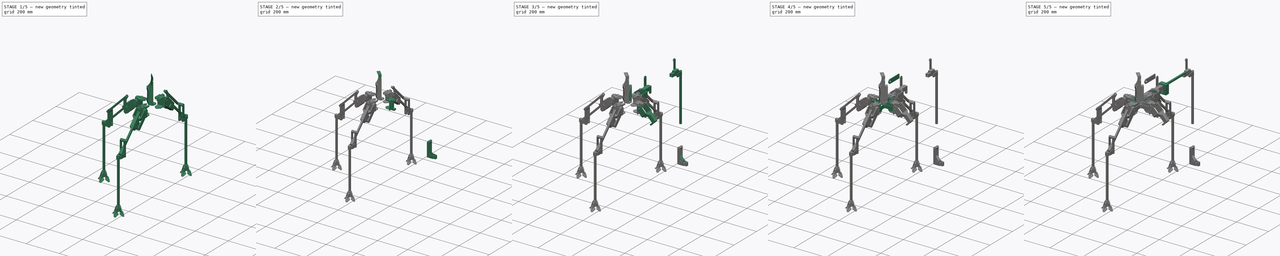
[diagram: build sequence overview — one tinted view per stage of 5, left to right]
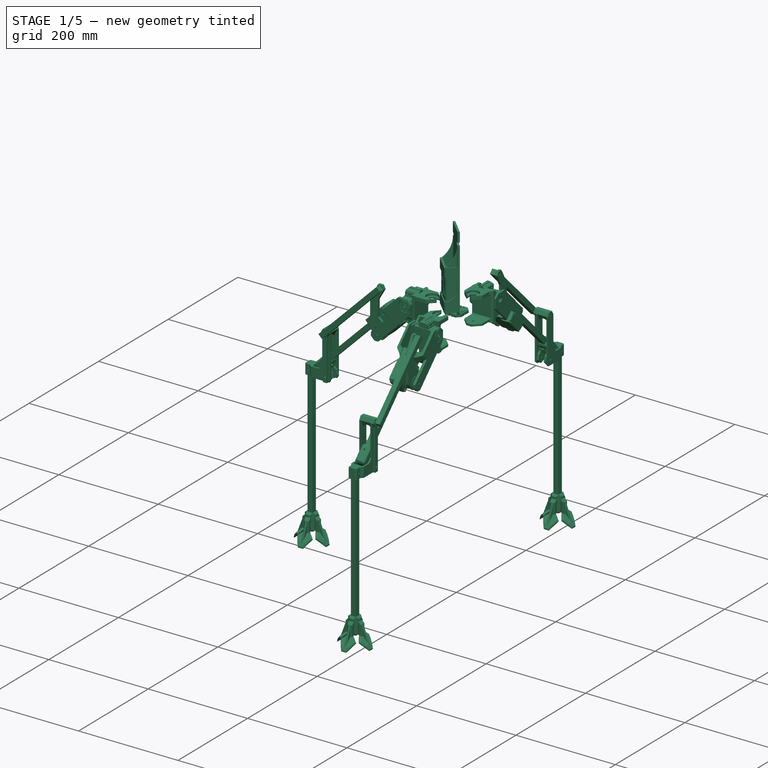
[diagram: stage 1 of 5 — iso view after this stage's code; geometry added in this stage tinted green]
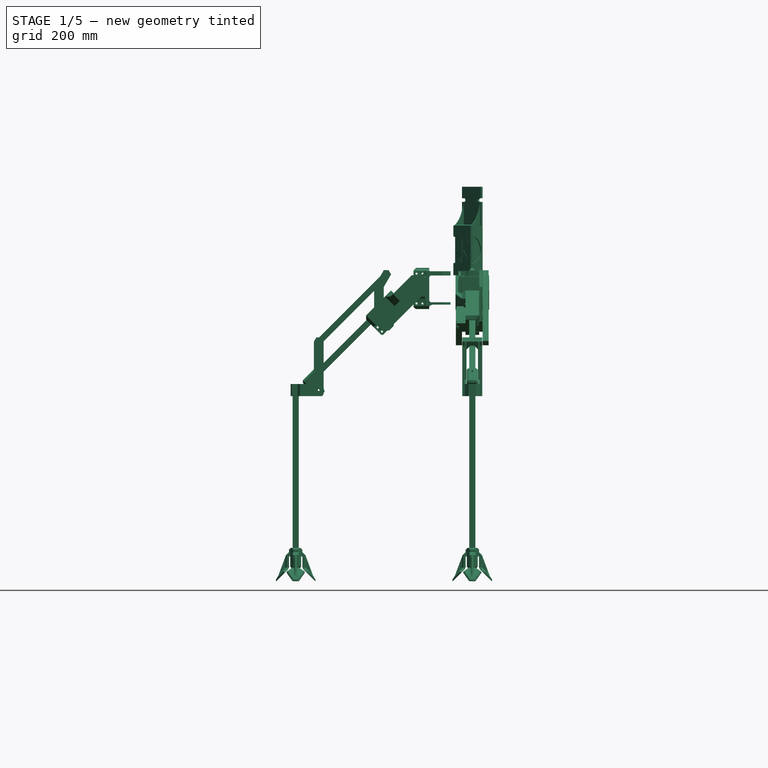
[diagram: stage 1 of 5 — front view after this stage's code; geometry added in this stage tinted green]
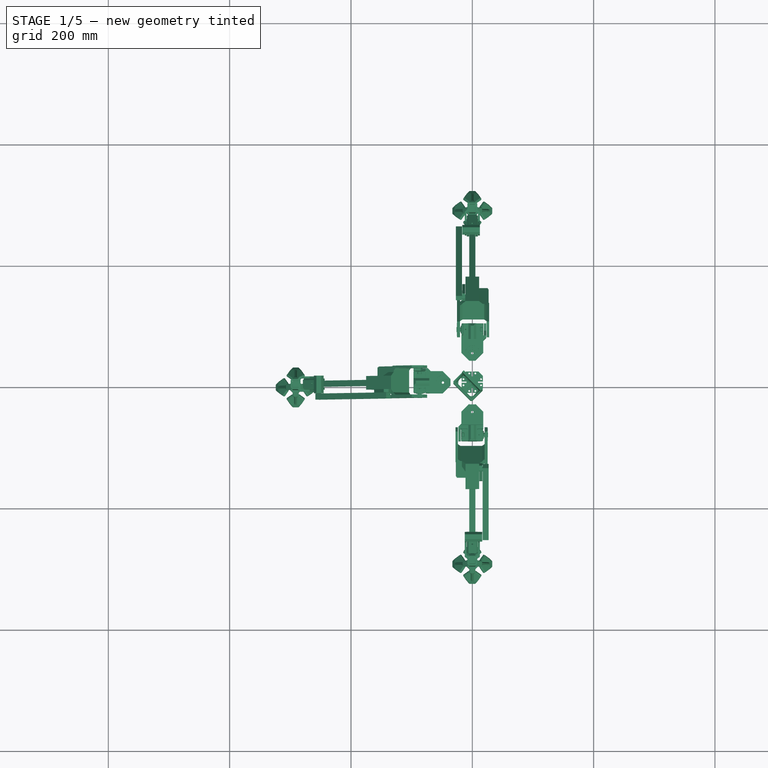
[diagram: stage 1 of 5 — top view after this stage's code; geometry added in this stage tinted green]
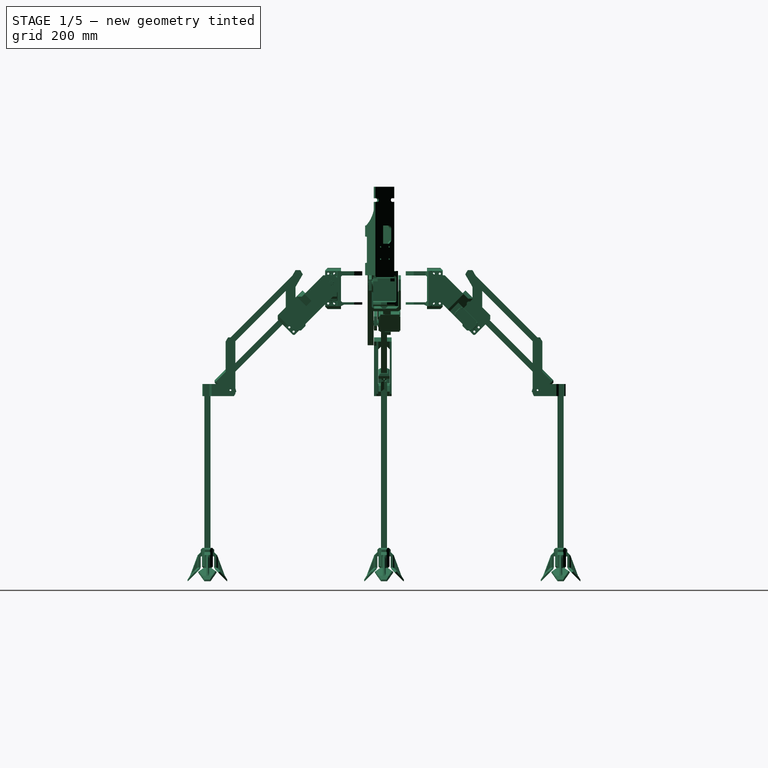
[diagram: stage 1 of 5 — right view after this stage's code; geometry added in this stage tinted green]
FCSTD DOCUMENT  (FreeCAD 0.16R6264 (Git))
Label: mizu
License: All rights reserved
LicenseURL: http://en.wikipedia.org/wiki/All_rights_reserved
objects: Part::Feature×141, Sketcher::SketchObject×73, PartDesign::Pad×38, PartDesign::Pocket×35, PartDesign::Chamfer×32, Part::FeaturePython×23, Part::Box×6, PartDesign::Fillet×4, Part::Cut×3, Part::MultiFuse×3, Part::Fillet×2, App::DocumentObjectGroup×1
note: 433 computed .brp shape members not serialized (recipe doc carries the construction recipe); baked Part::Feature solids carry a one-line shape summary decoded from their .brp

FEATURE [Part::Feature] Chamfer002021008  label="Chamfer002021023"
  Placement = pos=(22.7947,0,62.6313) rot=(-0.357407,0.357407,-0.862856;1.71777rad)
  shape: bbox 35.82 x 18.4 x 45.72 mm, 40 faces (baked)
FEATURE [Part::Feature] Part__Feature014  label="rounded-horn007"
  Placement = pos=(86.9,19.78,3.6) rot=(0.57735,0.57735,0.57735;4.18879rad)
  shape: bbox 21 x 6.2 x 21 mm, 65 faces (baked)
FEATURE [Part::Feature] Part__Feature015  label="Servo-Futaba3003-final007"
  Placement = pos=(86.9,-18.31,-5.85) rot=(0.57735,0.57735,0.57735;4.18879rad)
  shape: bbox 20 x 41.74 x 55.5 mm, 365 faces (baked)
FEATURE [Part::Feature] Part__Feature016  label="Servo-Futaba3003-final008"
  Placement = pos=(135.295,-27.02,-56.0212) rot=(-0.862856,0.357407,0.357407;1.71777rad)
  shape: bbox 51.55 x 41.74 x 51.55 mm, 365 faces (baked)
FEATURE [Part::Feature] Part__Feature017  label="rounded-horn008"
  Placement = pos=(141.978,11.07,-62.7034) rot=(-0.862856,0.357407,0.357407;1.71777rad)
  shape: bbox 21 x 6.2 x 21 mm, 65 faces (baked)
FEATURE [Part::Feature] Pad001007004004002003004004002002  label="Pad001007004004002003004004002010002"
  Placement = pos=(-105.8,0,-239.8) rot=(0,0,-1;1.5708rad)
  shape: bbox 44.55 x 29 x 96.93 mm, 25 faces (baked)
FEATURE [Part::Box] Box006  label="Cubo006"
  Height = 300
  Length = 10
  Placement = pos=(286.1,5,-463.3) rot=(0,0,-1;1.5708rad)
  Width = 10
FEATURE [Part::Box] Box007  label="Cubo007"
  Height = 10
  Length = 10
  Placement = pos=(126.881,5,-24.7671) rot=(-0.357407,0.357407,-0.862856;1.71777rad)
  Width = 200
FEATURE [Part::Feature] Pad001007004004002003004004002003  label="Pad001007004004002003004004002010003"
  Placement = pos=(0,0,0) rot=(0,0,1;1.5708rad)
  shape: bbox 32.5 x 5 x 99.43 mm, 21 faces (baked)
FEATURE [Part::Feature] Chamfer002021009  label="Chamfer002021024"
  Placement = pos=(22.7947,0,62.6313) rot=(-0.357407,0.357407,-0.862856;1.71777rad)
  shape: bbox 100.7 x 53 x 98.29 mm, 65 faces (baked)
FEATURE [Part::Feature] Chamfer002021010  label="Chamfer002021025"
  Placement = pos=(0,0,0) rot=(0,0,-1;1.5708rad)
  shape: bbox 61 x 41.01 x 58 mm, 79 faces (baked)
FEATURE [Part::Feature] Part__Feature026  label="final-can"
  Placement = pos=(0,0,30) rot=(0,0,1;0rad)
  shape: bbox 66.1 x 66.1 x 115.2 mm, 53 faces (baked)
FEATURE [Part::Box] Box012  label="Cubo012"
  Height = 10
  Length = 10
  Placement = pos=(134.881,27,17.2329) rot=(-0.357407,0.357407,-0.862856;1.71777rad)
  Width = 165
FEATURE [Sketcher::SketchObject] Sketch062
  ExternalGeometry = -> [Chamfer003001]
  Placement = pos=(0,0,98) rot=(0,0,-1;0.785398rad)
  Support = -> Chamfer003001 [Face4]
  sketch-geometry (8):
    g0: LineSegment StartX=18 StartY=-2 StartZ=0 EndX=20 EndY=-2 EndZ=0
    g1: LineSegment StartX=20 StartY=-2 StartZ=0 EndX=20 EndY=-22 EndZ=0
    g2: LineSegment StartX=20 StartY=-22 StartZ=0 EndX=-20 EndY=-22 EndZ=0
    g3: LineSegment StartX=-20 StartY=-22 StartZ=0 EndX=-20 EndY=-2 EndZ=0
    g4: LineSegment StartX=-20 StartY=-2 StartZ=0 EndX=-18 EndY=-2 EndZ=0
    g5: LineSegment StartX=-18 StartY=-2 StartZ=0 EndX=-18 EndY=-20 EndZ=0
    g6: LineSegment StartX=-18 StartY=-20 StartZ=0 EndX=18 EndY=-20 EndZ=0
    g7: LineSegment StartX=18 StartY=-20 StartZ=0 EndX=18 EndY=-2 EndZ=0
  constraints (23):
    c: Horizontal(g0)
    c: Coincident(g0,g1)
    c: Coincident(g1,g2)
    c: Horizontal(g2)
    c: Coincident(g2,g3)
    c: Vertical(g3)
    c: Coincident(g3,g4)
    c: Horizontal(g4)
    c: Coincident(g4,g5)
    c: Vertical(g5)
    c: Coincident(g5,g6)
    c: Horizontal(g6)
    c: Coincident(g6,g7)
    c: PointOnObject(g7,g0)
    c: Vertical(g7)
    c: Coincident(g7,g0)
    c: Coincident(g0,g-6)
    c: Coincident(g4,g-3)
    c: Distance(g4) = 2
    c: Equal(g4,g0)
    c: Vertical(g1)
    c: DistanceY(g6,g-5) = 0
    c: PointOnObject(g-4,g2)
FEATURE [PartDesign::Pad] Pad001007004004002003004004002019
  Length = 82
  Length2 = 100
  Placement = pos=(0,0,8) rot=(0,0,-1;0.785398rad)
  Reversed = true
  Sketch = -> Sketch062
  Type = 0
FEATURE [PartDesign::Chamfer] Chamfer002021020007
  Base = -> Pad001007004004002003004004002019 [Edge282,Edge281]
  Placement = pos=(0,0,8) rot=(0,0,-1;0.785398rad)
  Size = 2
FEATURE [Sketcher::SketchObject] Sketch063
  ExternalGeometry = -> [Chamfer002021020007]
  Placement = pos=(0,0,98) rot=(0,0,-1;0.785398rad)
  Support = -> Chamfer002021020007 [Face17]
  sketch-geometry (4):
    g0: LineSegment StartX=-22 StartY=2 StartZ=0 EndX=22 EndY=2 EndZ=0
    g1: LineSegment StartX=22 StartY=2 StartZ=0 EndX=22 EndY=-2 EndZ=0
    g2: LineSegment StartX=22 StartY=-2 StartZ=0 EndX=-22 EndY=-2 EndZ=0
    g3: LineSegment StartX=-22 StartY=-2 StartZ=0 EndX=-22 EndY=2 EndZ=0
  constraints (11):
    c: Coincident(g0,g1)
    c: Coincident(g1,g2)
    c: Coincident(g2,g3)
    c: Coincident(g3,g0)
    c: Horizontal(g0)
    c: Horizontal(g2)
    c: Vertical(g1)
    c: Vertical(g3)
    c: Coincident(g0,g-3)
    c: Coincident(g0,g-4)
    c: PointOnObject(g-6,g2)
FEATURE [PartDesign::Pad] Pad001007004004002003004004002020
  Length = 64
  Length2 = 100
  Placement = pos=(0,0,8) rot=(0,0,-1;0.785398rad)
  Sketch = -> Sketch063
  Type = 0
FEATURE [Sketcher::SketchObject] Sketch064
  ExternalGeometry = -> [Pad001007004004002003004004002020]
  Placement = pos=(1.41421,1.41421,8) rot=(0.281085,0.678598,0.678598;2.59356rad)
  Support = -> Pad001007004004002003004004002020 [Face2]
  sketch-geometry (12):
    g0: LineSegment [constr] StartX=-22 StartY=154 StartZ=0 EndX=22 EndY=154 EndZ=0
    g1: LineSegment [constr] StartX=22 StartY=154 StartZ=0 EndX=22 EndY=110 EndZ=0
    g2: LineSegment [constr] StartX=22 StartY=110 StartZ=0 EndX=-22 EndY=110 EndZ=0
    g3: LineSegment [constr] StartX=-22 StartY=110 StartZ=0 EndX=-22 EndY=154 EndZ=0
    g4: ArcOfCircle CenterX=-22 CenterY=132 CenterZ=0 NormalX=0 NormalY=0 NormalZ=1 Radius=3 StartAngle=1.5708 EndAngle=4.71239
    g5: ArcOfCircle CenterX=-17 CenterY=132 CenterZ=0 NormalX=0 NormalY=0 NormalZ=1 Radius=3 StartAngle=4.71239 EndAngle=7.85398
    g6: LineSegment StartX=-22 StartY=129 StartZ=0 EndX=-17 EndY=129 EndZ=0
    g7: LineSegment StartX=-22 StartY=135 StartZ=0 EndX=-17 EndY=135 EndZ=0
    g8: ArcOfCircle CenterX=22 CenterY=132 CenterZ=0 NormalX=0 NormalY=0 NormalZ=1 Radius=3 StartAngle=4.71239 EndAngle=7.85398
    g9: ArcOfCircle CenterX=17 CenterY=132 CenterZ=0 NormalX=0 NormalY=0 NormalZ=1 Radius=3 StartAngle=1.5708 EndAngle=4.71239
    g10: LineSegment StartX=22 StartY=135 StartZ=0 EndX=17 EndY=135 EndZ=0
    g11: LineSegment StartX=22 StartY=129 StartZ=0 EndX=17 EndY=129 EndZ=0
  constraints (30):
    c: Coincident(g0,g1)
    c: Coincident(g1,g2)
    c: Coincident(g2,g3)
    c: Coincident(g3,g0)
    c: Horizontal(g0)
    c: Horizontal(g2)
    c: Vertical(g1)
    c: Vertical(g3)
    c: Equal(g3,g0)
    c: Coincident(g0,g-3)
    c: Coincident(g0,g-3)
    c: Tangent(g4,g7) = 1.5708
    c: Tangent(g4,g6) = -1.5708
    c: Tangent(g6,g5) = -1.5708
    c: Tangent(g7,g5) = 1.5708
    c: Horizontal(g6)
    c: Equal(g4,g5)
    c: Tangent(g8,g11) = 1.5708
    c: Tangent(g8,g10) = -1.5708
    c: Tangent(g10,g9) = -1.5708
    c: Tangent(g11,g9) = 1.5708
    c: Horizontal(g10)
    c: Equal(g8,g9)
    c: PointOnObject(g8,g1)
    c: PointOnObject(g4,g3)
    c: Symmetric(g5,g9,g-2)
    c: Equal(g5,g9)
    c: Radius(g5) = 3
    c: Distance(g10) = 5
    c: Distance(g4,g0) = 22
FEATURE [PartDesign::Pocket] Pocket002002009003008015
  Length = 5
  Placement = pos=(0,0,8) rot=(0,0,-1;0.785398rad)
  Sketch = -> Sketch064
  Type = 0
FEATURE [Sketcher::SketchObject] Sketch065
  ExternalGeometry = -> [Pocket002002009003008015]
  Placement = pos=(0,0,98) rot=(0,0,-1;0.785398rad)
  Support = -> Pocket002002009003008015 [Face34]
  sketch-geometry (8):
    g0: LineSegment StartX=-20 StartY=-2 StartZ=0 EndX=-18 EndY=-2 EndZ=0
    g1: LineSegment StartX=-18 StartY=-2 StartZ=0 EndX=-18 EndY=-20 EndZ=0
    g2: LineSegment StartX=-18 StartY=-20 StartZ=0 EndX=18 EndY=-20 EndZ=0
    g3: LineSegment StartX=18 StartY=-20 StartZ=0 EndX=18 EndY=-2 EndZ=0
    g4: LineSegment StartX=18 StartY=-2 StartZ=0 EndX=20 EndY=-2 EndZ=0
    g5: LineSegment StartX=20 StartY=-2 StartZ=0 EndX=20 EndY=-22 EndZ=0
    g6: LineSegment StartX=20 StartY=-22 StartZ=0 EndX=-20 EndY=-22 EndZ=0
    g7: LineSegment StartX=-20 StartY=-22 StartZ=0 EndX=-20 EndY=-2 EndZ=0
  constraints (23):
    c: Horizontal(g0)
    c: Coincident(g0,g1)
    c: Vertical(g1)
    c: Coincident(g1,g2)
    c: Horizontal(g2)
    c: Coincident(g2,g3)
    c: Vertical(g3)
    c: Coincident(g3,g4)
    c: Horizontal(g4)
    c: Coincident(g4,g5)
    c: Vertical(g5)
    c: Coincident(g5,g6)
    c: Horizontal(g6)
    c: Coincident(g6,g7)
    c: Vertical(g7)
    c: Coincident(g7,g0)
    c: Coincident(g3,g-4)
    c: Coincident(g4,g-4)
    c: Coincident(g5,g-6)
    c: Coincident(g2,g-8)
    c: Coincident(g1,g-8)
    c: Coincident(g6,g-7)
    c: Coincident(g0,g-3)
FEATURE [PartDesign::Pad] Pad001007004004002003004004002021
  Length = 39
  Length2 = 100
  Placement = pos=(0,0,8) rot=(0,0,-1;0.785398rad)
  Sketch = -> Sketch065
  Type = 0
FEATURE [Sketcher::SketchObject] Sketch066
  ExternalGeometry = -> [Pad001007004004002003004004002021]
  Placement = pos=(14.1421,-14.1421,8) rot=(0.862856,0.357407,0.357407;1.71777rad)
  Support = -> Pad001007004004002003004004002021 [Face62]
  sketch-geometry (3):
    g0: ArcOfCircle CenterX=-50.025 CenterY=129 CenterZ=0 NormalX=0 NormalY=0 NormalZ=1 Radius=48.025 StartAngle=5.33548 EndAngle=6.28319
    g1: LineSegment StartX=-22 StartY=90 StartZ=0 EndX=-22 EndY=129 EndZ=0
    g2: LineSegment StartX=-22 StartY=129 StartZ=0 EndX=-2 EndY=129 EndZ=0
  constraints (9):
    c: Vertical(g1)
    c: Coincident(g1,g2)
    c: Horizontal(g2)
    c: Coincident(g2,g0)
    c: Coincident(g0,g1)
    c: Perpendicular(g0,g2)
    c: Coincident(g0,g-3)
    c: Coincident(g1,g-3)
    c: Coincident(g0,g-4)
FEATURE [PartDesign::Pocket] Pocket002002009003008016
  Length = 50
  Placement = pos=(0,0,8) rot=(0,0,-1;0.785398rad)
  Sketch = -> Sketch066
  Type = 0
FEATURE [Part::Feature] Fusion002
  Placement = pos=(-34,4,85) rot=(0.862856,-0.357407,-0.357407;1.71777rad)
  shape: bbox 37.96 x 37.96 x 48.69 mm, 53 faces (baked)
FEATURE [Part::FeaturePython] Clone006  label="Clone of Fusion002"  # Draft clone (typed FeaturePython)
  Objects = -> [Fusion002]
  Placement = pos=(-37,1,96) rot=(0.862856,-0.357407,-0.357407;1.71777rad)
  Scale = (0.8,0.8,0.8)
FEATURE [PartDesign::Fillet] Fillet003
  Base = -> Pocket002002009003008016 [Edge41,Edge43]
  Placement = pos=(0,0,8) rot=(0,0,-1;0.785398rad)
  Radius = 6
FEATURE [Part::Cut] Cut
  Base = -> Fillet003
  Tool = -> Clone006
FEATURE [Part::Feature] Pocket002002009003008011001  label="Pocket002002009003008020"
  Placement = pos=(-70.5,0,70.5) rot=(0,0,1;0rad)
  shape: bbox 35.82 x 18.4 x 45.72 mm, 44 faces (baked)
FEATURE [Part::Feature] Pocket002002009003008014001  label="Pocket002002009003008021"
  Placement = pos=(-70.5,0,70.5) rot=(0,0,1;0rad)
  shape: bbox 54.4 x 29 x 96.93 mm, 55 faces (baked)
FEATURE [Part::Feature] Fillet001001  label="Fillet006"
  Placement = pos=(291.1,0,-467.3) rot=(0,0,1;0rad)
  shape: bbox 65.71 x 65.71 x 55.27 mm, 215 faces (baked)
FEATURE [Part::Feature] Pocket002002009003008012001  label="Pocket002002009003008022"
  shape: bbox 100.7 x 53 x 98.29 mm, 66 faces (baked)
FEATURE [Part::Feature] Pad001007004004002003004004002003001  label="Pad001007004004002003004004002010015"
  shape: bbox 32.5 x 5 x 99.43 mm, 21 faces (baked)
FEATURE [Part::Feature] Pad001007004004002003004004002018001  label="Pad001007004004002003004004002010016"
  shape: bbox 61 x 41.01 x 68 mm, 73 faces (baked)
FEATURE [Part::FeaturePython] Clone007  label="Clone of rounded-horn007"  # Draft clone (typed FeaturePython)
  Objects = -> [Part__Feature014]
  Placement = pos=(86.9,19.78,3.6) rot=(0.57735,0.57735,0.57735;4.18879rad)
  Scale = (1,1,1)
FEATURE [Part::FeaturePython] Clone008  label="Clone of Servo-Futaba3003-final007"  # Draft clone (typed FeaturePython)
  Objects = -> [Part__Feature015]
  Placement = pos=(86.9,-18.31,-5.85) rot=(0.57735,0.57735,0.57735;4.18879rad)
  Scale = (1,1,1)
FEATURE [Part::FeaturePython] Clone009  label="Clone of Servo-Futaba3003-final008"  # Draft clone (typed FeaturePython)
  Objects = -> [Part__Feature016]
  Placement = pos=(135.295,-27.02,-56.0212) rot=(-0.862856,0.357407,0.357407;1.71777rad)
  Scale = (1,1,1)
FEATURE [Part::FeaturePython] Clone010  label="Clone of rounded-horn008"  # Draft clone (typed FeaturePython)
  Objects = -> [Part__Feature017]
  Placement = pos=(141.978,11.07,-62.7034) rot=(-0.862856,0.357407,0.357407;1.71777rad)
  Scale = (1,1,1)
FEATURE [Part::FeaturePython] Clone011  label="Clone of Cubo006"  # Draft clone (typed FeaturePython)
  Objects = -> [Box006]
  Placement = pos=(286.1,5,-463.3) rot=(0,0,-1;1.5708rad)
  Scale = (1,1,1)
FEATURE [Part::FeaturePython] Clone012  label="Clone of Cubo007"  # Draft clone (typed FeaturePython)
  Objects = -> [Box007]
  Placement = pos=(126.881,5,-24.7671) rot=(-0.357407,0.357407,-0.862856;1.71777rad)
  Scale = (1,1,1)
FEATURE [Part::FeaturePython] Clone013  label="Clone of Cubo012"  # Draft clone (typed FeaturePython)
  Objects = -> [Box012]
  Placement = pos=(134.881,27,17.2329) rot=(-0.357407,0.357407,-0.862856;1.71777rad)
  Scale = (1,1,1)
FEATURE [Part::FeaturePython] Clone014  label="Clone of Pocket002002009003008020"  # Draft clone (typed FeaturePython)
  Objects = -> [Pocket002002009003008011001]
  Placement = pos=(-70.5,0,70.5) rot=(0,0,1;0rad)
  Scale = (1,1,1)
FEATURE [Part::FeaturePython] Clone015  label="Clone of Pocket002002009003008021"  # Draft clone (typed FeaturePython)
  Objects = -> [Pocket002002009003008014001]
  Placement = pos=(-70.5,0,70.5) rot=(0,0,1;0rad)
  Scale = (1,1,1)
FEATURE [Part::FeaturePython] Clone016  label="Clone of Fillet006"  # Draft clone (typed FeaturePython)
  Objects = -> [Fillet001001]
  Placement = pos=(291.1,0,-467.3) rot=(0,0,1;0rad)
  Scale = (1,1,1)
FEATURE [Part::FeaturePython] Clone017  label="Clone of Pocket002002009003008022"  # Draft clone (typed FeaturePython)
  Objects = -> [Pocket002002009003008012001]
  Scale = (1,1,1)
FEATURE [Part::FeaturePython] Clone018  label="Clone of Pad001007004004002003004004002010015"  # Draft clone (typed FeaturePython)
  Objects = -> [Pad001007004004002003004004002003001]
  Scale = (1,1,1)
FEATURE [Part::FeaturePython] Clone019  label="Clone of Pad001007004004002003004004002010016"  # Draft clone (typed FeaturePython)
  Objects = -> [Pad001007004004002003004004002018001]
  Scale = (1,1,1)
FEATURE [Part::MultiFuse] Fusion003  label="complete_leg"
  Shapes = -> [Clone007,Clone008,Clone013,Clone014,Clone010,Clone016,Clone017,Clone019,Clone009,Clone015,Clone012,Clone011,Clone018]
FEATURE [Part::FeaturePython] Clone021  label="Clone of complete_leg001"  # Draft clone (typed FeaturePython)
  Objects = -> [Fusion003]
  Placement = pos=(0,0,0) rot=(0,0,1;1.5708rad)
  Scale = (1,1,1)
FEATURE [Part::FeaturePython] Clone022  label="Clone of complete_leg002"  # Draft clone (typed FeaturePython)
  Objects = -> [Fusion003]
  Placement = pos=(0,0,0) rot=(0,0,1;3.14159rad)
  Scale = (1,1,1)
FEATURE [Part::FeaturePython] Clone023  label="Clone of complete_leg003"  # Draft clone (typed FeaturePython)
  Objects = -> [Fusion003]
  Placement = pos=(0,0,0) rot=(0,0,-1;1.5708rad)
  Scale = (1,1,1)
FEATURE [Part::Feature] Pocket002002009003008019001  label="Pocket002002009003008023"
  Placement = pos=(0,0,0) rot=(0,0,1;1.5708rad)
  shape: bbox 50.03 x 50.03 x 159 mm, 176 faces (baked)
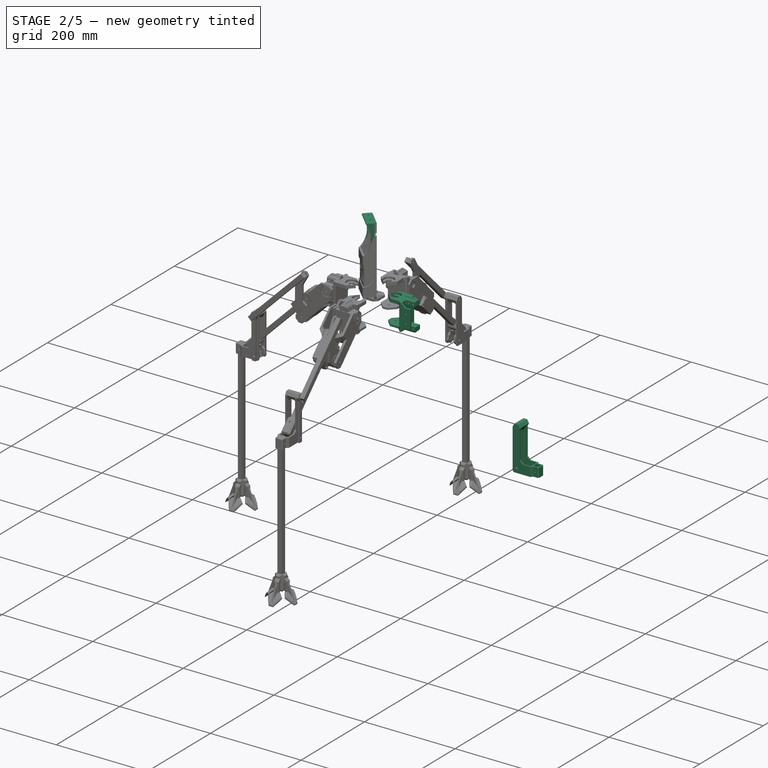
[diagram: stage 2 of 5 — iso view after this stage's code; geometry added in this stage tinted green]
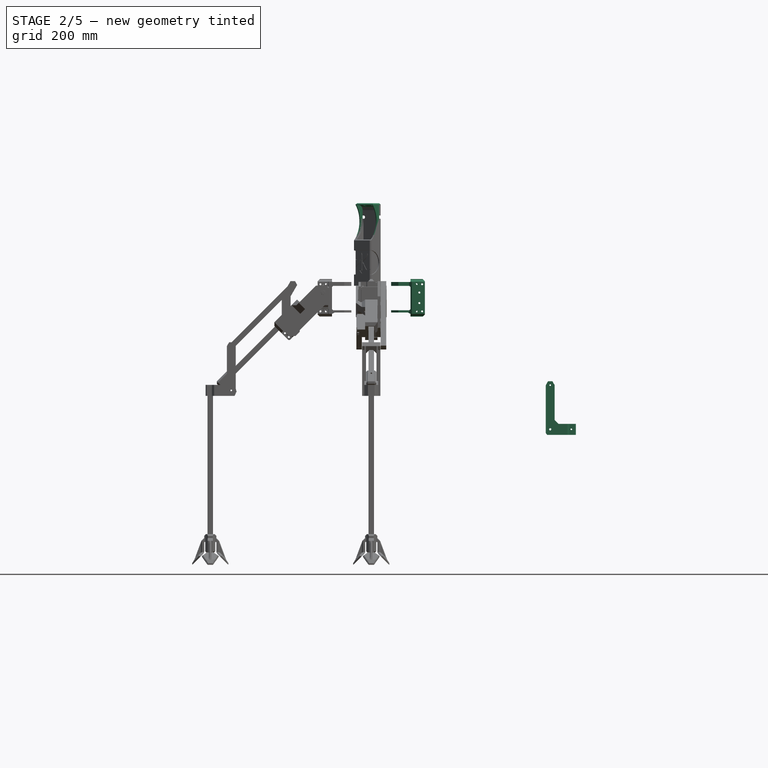
[diagram: stage 2 of 5 — front view after this stage's code; geometry added in this stage tinted green]
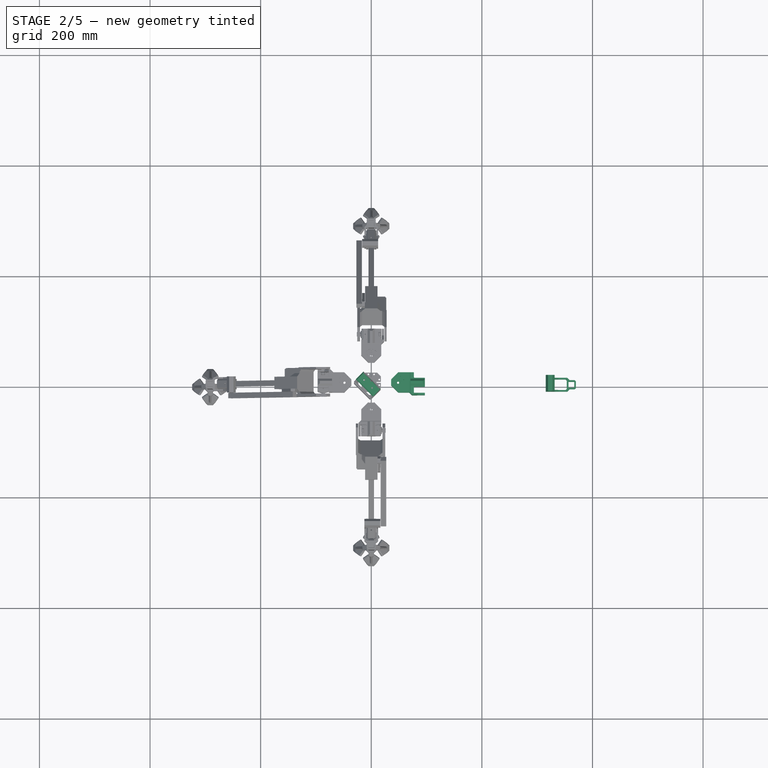
[diagram: stage 2 of 5 — top view after this stage's code; geometry added in this stage tinted green]
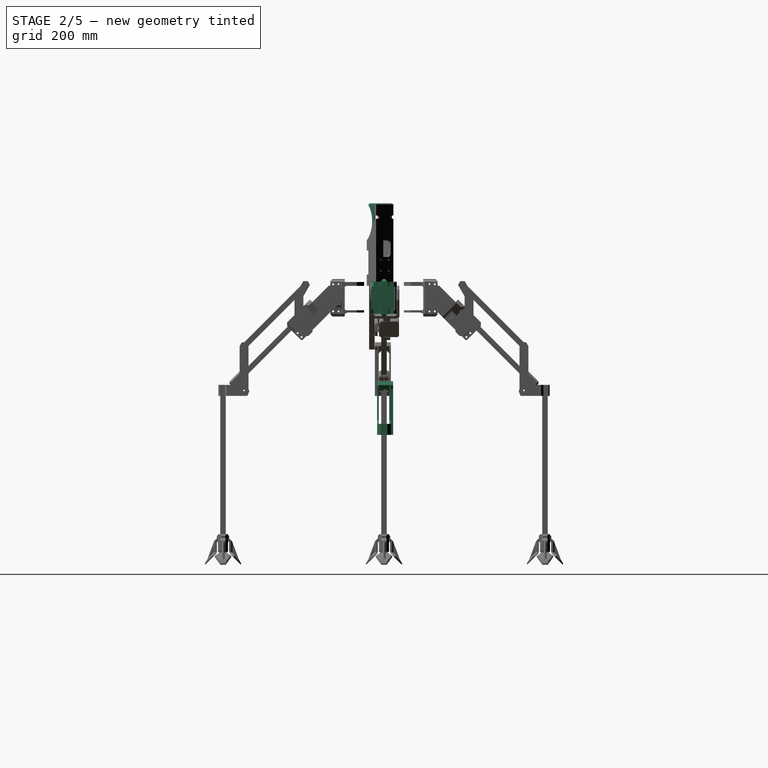
[diagram: stage 2 of 5 — right view after this stage's code; geometry added in this stage tinted green]
FEATURE [Sketcher::SketchObject] Sketch042
  ExternalGeometry = -> [Pad001007004004002003004004002002]
  Placement = pos=(-105.8,0,-233.8) rot=(0,0,-1;1.5708rad)
  Support = -> Pad001007004004002003004004002002 [Face13]
  sketch-geometry (11):
    g0: LineSegment StartX=-5.2 StartY=472.8 StartZ=0 EndX=5.2 EndY=472.8 EndZ=0
    g1: LineSegment StartX=5.2 StartY=472.8 StartZ=0 EndX=5.2 EndY=462.4 EndZ=0
    g2: LineSegment [constr] StartX=5.2 StartY=462.4 StartZ=0 EndX=-5.2 EndY=462.4 EndZ=0
    g3: LineSegment StartX=-5.2 StartY=462.4 StartZ=0 EndX=-5.2 EndY=472.8 EndZ=0
    g4: LineSegment StartX=5.2 StartY=462.4 StartZ=0 EndX=8.2 EndY=462.4 EndZ=0
    g5: LineSegment StartX=8.2 StartY=462.4 StartZ=0 EndX=8.2 EndY=475.8 EndZ=0
    g6: LineSegment StartX=8.2 StartY=475.8 StartZ=0 EndX=-8.2 EndY=475.8 EndZ=0
    g7: LineSegment StartX=-8.2 StartY=475.8 StartZ=0 EndX=-8.2 EndY=462.4 EndZ=0
    g8: LineSegment StartX=-8.2 StartY=462.4 StartZ=0 EndX=-5.2 EndY=462.4 EndZ=0
    g9: LineSegment [constr] StartX=-8.2 StartY=462.4 StartZ=0 EndX=-12.5 EndY=462.4 EndZ=0
    g10: LineSegment [constr] StartX=8.2 StartY=462.4 StartZ=0 EndX=12.5 EndY=462.4 EndZ=0
  constraints (31):
    c: Coincident(g0,g1)
    c: Coincident(g1,g2)
    c: Coincident(g2,g3)
    c: Coincident(g3,g0)
    c: Horizontal(g0)
    c: Horizontal(g2)
    c: Vertical(g1)
    c: Vertical(g3)
    c: Equal(g1,g2)
    c: Distance(g1) = 10.4
    c: Coincident(g1,g4)
    c: Horizontal(g4)
    c: Coincident(g4,g5)
    c: Vertical(g5)
    c: Coincident(g5,g6)
    c: Horizontal(g6)
    c: Coincident(g6,g7)
    c: Vertical(g7)
    c: Coincident(g7,g8)
    c: Coincident(g8,g2)
    c: Horizontal(g8)
    c: Coincident(g9,g7)
    c: Coincident(g4,g10)
    c: Horizontal(g10)
    c: Horizontal(g9)
    c: Equal(g10,g9)
    c: Equal(g8,g4)
    c: Distance(g0,g5) = 3
    c: Distance(g0,g6) = 3
    c: Coincident(g10,g-3)
    c: Coincident(g9,g-3)
FEATURE [PartDesign::Pad] Pad001007004004002003004004002008
  Length = 20
  Length2 = 100
  Placement = pos=(-105.8,0,-239.8) rot=(0,0,-1;1.5708rad)
  Reversed = true
  Sketch = -> Sketch042
  Type = 0
FEATURE [PartDesign::Chamfer] Chamfer002021017
  Base = -> Pad001007004004002003004004002008 [Edge93,Edge96,Edge69,Edge83]
  Placement = pos=(-105.8,0,-239.8) rot=(0,0,-1;1.5708rad)
  Size = 2
FEATURE [PartDesign::Chamfer] Chamfer002021018
  Base = -> Chamfer002021017 [Edge64,Edge17]
  Placement = pos=(-105.8,0,-239.8) rot=(0,0,-1;1.5708rad)
  Size = 2
FEATURE [PartDesign::Chamfer] Chamfer002021019
  Base = -> Chamfer002021018 [Edge48,Edge61]
  Placement = pos=(-105.8,0,-239.8) rot=(0,0,-1;1.5708rad)
  Size = 2
FEATURE [Sketcher::SketchObject] Sketch047
  ExternalGeometry = -> [Chamfer002021019]
  Placement = pos=(-105.8,8.2,-239.8) rot=(0,0.707107,0.707107;3.14159rad)
  Support = -> Chamfer002021019 [Face33]
  sketch-geometry (5):
    g0: Circle CenterX=-467.6 CenterY=-4 CenterZ=0 NormalX=0 NormalY=0 NormalZ=1 Radius=1.5
    g1: LineSegment [constr] StartX=-467.6 StartY=6 StartZ=0 EndX=-467.6 EndY=-4 EndZ=0
    g2: LineSegment [constr] StartX=-467.6 StartY=-4 StartZ=0 EndX=-467.6 EndY=-14 EndZ=0
    g3: LineSegment [constr] StartX=-472.8 StartY=6 StartZ=0 EndX=-467.6 EndY=-4 EndZ=0
    g4: LineSegment [constr] StartX=-467.6 StartY=-4 StartZ=0 EndX=-462.4 EndY=6 EndZ=0
  constraints (13):
    c: PointOnObject(g1,g-3)
    c: Vertical(g1)
    c: PointOnObject(g2,g-4)
    c: Vertical(g2)
    c: Coincident(g0,g1)
    c: Coincident(g0,g2)
    c: Equal(g1,g2)
    c: Radius(g0) = 1.5
    c: Coincident(g-3,g3)
    c: Coincident(g3,g0)
    c: Coincident(g3,g4)
    c: Coincident(g4,g-3)
    c: Equal(g4,g3)
FEATURE [PartDesign::Pocket] Pocket002002009003008009
  Length = 50
  Placement = pos=(-105.8,0,-239.8) rot=(0,0,-1;1.5708rad)
  Sketch = -> Sketch047
  Type = 0
FEATURE [Part::Feature] Chamfer002021020001  label="Chamfer002021033"
  shape: bbox 61 x 41.01 x 58 mm, 59 faces (baked)
FEATURE [Sketcher::SketchObject] Sketch053
  ExternalGeometry = -> [Chamfer002021020001]
  Placement = pos=(0,0,20.59) rot=(0,0,1;0rad)
  Support = -> Chamfer002021020001 [Face17]
  sketch-geometry (8):
    g0: LineSegment StartX=35.95 StartY=5 StartZ=0 EndX=48.95 EndY=18 EndZ=0
    g1: LineSegment StartX=48.95 StartY=18 StartZ=0 EndX=70.9269 EndY=18 EndZ=0
    g2: LineSegment StartX=70.9269 StartY=18 StartZ=0 EndX=70.9269 EndY=-18 EndZ=0
    g3: LineSegment StartX=70.9269 StartY=-18 StartZ=0 EndX=48.95 EndY=-18 EndZ=0
    g4: LineSegment StartX=48.95 StartY=-18 StartZ=0 EndX=35.95 EndY=-5 EndZ=0
    g5: LineSegment StartX=35.95 StartY=-5 StartZ=0 EndX=38.0938 EndY=-5 EndZ=0
    g6: LineSegment StartX=35.95 StartY=5 StartZ=0 EndX=38.0938 EndY=5 EndZ=0
    g7: ArcOfCircle CenterX=48.45 CenterY=0 CenterZ=0 NormalX=0 NormalY=0 NormalZ=1 Radius=11.5 StartAngle=3.59139 EndAngle=8.97498
  constraints (20):
    c: Coincident(g0,g1)
    c: Horizontal(g1)
    c: Coincident(g1,g2)
    c: Vertical(g2)
    c: Coincident(g2,g3)
    c: Horizontal(g3)
    c: Coincident(g3,g4)
    c: Coincident(g4,g5)
    c: Horizontal(g5)
    c: Coincident(g6,g0)
    c: Horizontal(g6)
    c: Coincident(g7,g6)
    c: Coincident(g7,g-5)
    c: Coincident(g7,g5)
    c: Coincident(g7,g-9)
    c: Coincident(g4,g-9)
    c: Coincident(g4,g-8)
    c: Coincident(g0,g-10)
    c: Coincident(g0,g-6)
    c: Coincident(g3,g-8)
FEATURE [PartDesign::Pad] Pad001007004004002003004004002011  label="Pad001007004004002003004004002010009"
  Length = 2
  Length2 = 100
  Sketch = -> Sketch053
  Type = 0
FEATURE [Sketcher::SketchObject] Sketch054
  ExternalGeometry = -> [Pocket002002009003008009]
  Placement = pos=(-105.8,-12.5,-239.8) rot=(1,0,0;1.5708rad)
  Support = -> Pocket002002009003008009 [Face13]
  sketch-geometry (8):
    g0: LineSegment StartX=425.4 StartY=82.9282 StartZ=0 EndX=421.4 EndY=76 EndZ=0
    g1: LineSegment StartX=421.4 StartY=76 StartZ=0 EndX=421.4 EndY=2.14359 EndZ=0
    g2: LineSegment StartX=421.4 StartY=2.14359 StartZ=0 EndX=444.4 EndY=6 EndZ=0
    g3: LineSegment StartX=444.4 StartY=6 StartZ=0 EndX=437.4 EndY=13 EndZ=0
    g4: LineSegment StartX=437.4 StartY=13 StartZ=0 EndX=437.4 EndY=76 EndZ=0
    g5: LineSegment StartX=437.4 StartY=76 StartZ=0 EndX=433.4 EndY=82.9282 EndZ=0
    g6: LineSegment StartX=433.4 StartY=82.9282 StartZ=0 EndX=425.4 EndY=82.9282 EndZ=0
    g7: Circle CenterX=429.4 CenterY=76 CenterZ=0 NormalX=0 NormalY=0 NormalZ=1 Radius=1.5
  constraints (16):
    c: Coincident(g0,g1)
    c: Coincident(g1,g2)
    c: Coincident(g2,g3)
    c: Coincident(g3,g4)
    c: Coincident(g4,g5)
    c: Coincident(g5,g6)
    c: Coincident(g6,g0)
    c: Coincident(g0,g-5)
    c: Coincident(g5,g-4)
    c: Coincident(g4,g-7)
    c: Coincident(g0,g-9)
    c: Coincident(g1,g-9)
    c: Coincident(g3,g-8)
    c: Coincident(g2,g-8)
    c: Coincident(g7,g-6)
    c: Equal(g-6,g7)
FEATURE [PartDesign::Pad] Pad001007004004002003004004002012  label="Pad001007004004002003004004002010010"
  Length = 3
  Length2 = 100
  Placement = pos=(-105.8,0,-239.8) rot=(0,0,-1;1.5708rad)
  Reversed = true
  Sketch = -> Sketch054
  Type = 0
FEATURE [Sketcher::SketchObject] Sketch055
  ExternalGeometry = -> [Pad001007004004002003004004002012]
  Placement = pos=(-105.8,-12.5,-239.8) rot=(1,0,0;1.5708rad)
  Support = -> Pad001007004004002003004004002012 [Face46]
  sketch-geometry (8):
    g0: LineSegment StartX=433.4 StartY=82.9282 StartZ=0 EndX=425.4 EndY=82.9282 EndZ=0
    g1: LineSegment StartX=425.4 StartY=82.9282 StartZ=0 EndX=421.4 EndY=76 EndZ=0
    g2: LineSegment StartX=421.4 StartY=76 StartZ=0 EndX=425.4 EndY=69.0718 EndZ=0
    g3: LineSegment StartX=425.4 StartY=69.0718 StartZ=0 EndX=433.4 EndY=69.0718 EndZ=0
    g4: LineSegment StartX=433.4 StartY=69.0718 StartZ=0 EndX=437.4 EndY=76 EndZ=0
    g5: LineSegment StartX=437.4 StartY=76 StartZ=0 EndX=433.4 EndY=82.9282 EndZ=0
    g6: Circle [constr] CenterX=429.4 CenterY=76 CenterZ=0 NormalX=0 NormalY=0 NormalZ=1 Radius=8
    g7: Circle CenterX=429.4 CenterY=76 CenterZ=0 NormalX=0 NormalY=0 NormalZ=1 Radius=1.5
  constraints (17):
    c: Coincident(g0,g1)
    c: Coincident(g1,g2)
    c: Coincident(g2,g3)
    c: Coincident(g3,g4)
    c: Coincident(g4,g5)
    c: Coincident(g5,g0)
    c: Equal(g0, g1-g5) x5
    c: PointOnObject(g0,g6)
    c: PointOnObject(g1,g6)
    c: PointOnObject(g2,g6)
    c: PointOnObject(g3,g6)
    c: PointOnObject(g4,g6)
    c: PointOnObject(g5,g6)
    c: Coincident(g0,g-5)
    c: Coincident(g1,g-5)
    c: Coincident(g7,g6)
    c: Equal(g7,g-6)
FEATURE [PartDesign::Pad] Pad001007004004002003004004002013  label="Pad001007004004002003004004002010011"
  Length = 25
  Length2 = 100
  Placement = pos=(-105.8,0,-239.8) rot=(0,0,-1;1.5708rad)
  Reversed = true
  Sketch = -> Sketch055
  Type = 0
FEATURE [PartDesign::Chamfer] Chamfer002021020002  label="Chamfer002021020009"
  Base = -> Pad001007004004002003004004002013 [Edge27,Edge97]
  Placement = pos=(-105.8,0,-239.8) rot=(0,0,-1;1.5708rad)
  Size = 6
FEATURE [Sketcher::SketchObject] Sketch056
  ExternalGeometry = -> [Chamfer002021020002]
  Placement = pos=(-105.8,12.5,-239.8) rot=(0,0.707107,0.707107;3.14159rad)
  Support = -> Chamfer002021020002 [Face18]
  sketch-geometry (5):
    g0: LineSegment StartX=-433.4 StartY=69.0718 StartZ=0 EndX=-425.4 EndY=69.0718 EndZ=0
    g1: LineSegment StartX=-425.4 StartY=69.0718 StartZ=0 EndX=-425.4 EndY=-14 EndZ=0
    g2: LineSegment StartX=-425.4 StartY=-14 StartZ=0 EndX=-433.4 EndY=-14 EndZ=0
    g3: LineSegment StartX=-433.4 StartY=-14 StartZ=0 EndX=-433.4 EndY=69.0718 EndZ=0
    g4: Circle CenterX=-429.4 CenterY=-4 CenterZ=0 NormalX=0 NormalY=0 NormalZ=1 Radius=2
  constraints (13):
    c: Coincident(g0,g1)
    c: Coincident(g1,g2)
    c: Coincident(g2,g3)
    c: Coincident(g3,g0)
    c: Horizontal(g0)
    c: Horizontal(g2)
    c: Vertical(g1)
    c: Vertical(g3)
    c: Coincident(g0,g-3)
    c: Coincident(g0,g-3)
    c: PointOnObject(g2,g-4)
    c: Equal(g4,g-5)
    c: Coincident(g4,g-5)
FEATURE [PartDesign::Pad] Pad001007004004002003004004002014  label="Pad001007004004002003004004002010012"
  Length = 4
  Length2 = 100
  Placement = pos=(-105.8,0,-239.8) rot=(0,0,-1;1.5708rad)
  Sketch = -> Sketch056
  Type = 0
FEATURE [Sketcher::SketchObject] Sketch057
  Placement = pos=(315.6,1e-12,-239.8) rot=(0.57735,-0.57735,-0.57735;2.0944rad)
  Support = -> Pad001007004004002003004004002014 [Face38]
  sketch-geometry (4):
    g0: LineSegment StartX=-40.6239 StartY=91.6718 StartZ=0 EndX=43.9342 EndY=91.6718 EndZ=0
    g1: LineSegment StartX=43.9342 StartY=91.6718 StartZ=0 EndX=43.9342 EndY=-20.2475 EndZ=0
    g2: LineSegment StartX=43.9342 StartY=-20.2475 StartZ=0 EndX=-40.6239 EndY=-20.2475 EndZ=0
    g3: LineSegment StartX=-40.6239 StartY=-20.2475 StartZ=0 EndX=-40.6239 EndY=91.6718 EndZ=0
  constraints (8):
    c: Coincident(g0,g1)
    c: Coincident(g1,g2)
    c: Coincident(g2,g3)
    c: Coincident(g3,g0)
    c: Horizontal(g0)
    c: Horizontal(g2)
    c: Vertical(g1)
    c: Vertical(g3)
FEATURE [PartDesign::Pocket] Pocket002002009003008014
  Length = 5
  Placement = pos=(-105.8,0,-239.8) rot=(0,0,-1;1.5708rad)
  Reversed = true
  Sketch = -> Sketch057
  Type = 0
FEATURE [PartDesign::Fillet] Fillet002
  Base = -> Pad001007004004002003004004002011 [Edge96,Edge94,Edge90,Edge92]
  Radius = 2
FEATURE [Sketcher::SketchObject] Sketch058
  Placement = pos=(0,0,-28.41) rot=(0,0,1;0rad)
  Support = -> Fillet002 [Face23]
  sketch-geometry (2):
    g0: Circle CenterX=48.45 CenterY=0 CenterZ=0 NormalX=0 NormalY=0 NormalZ=1 Radius=2
    g1: Circle CenterX=48.45 CenterY=0 CenterZ=0 NormalX=0 NormalY=0 NormalZ=1 Radius=8.13082
  constraints (2):
    c: Coincident(g1,g0)
    c: Radius(g0) = 2
FEATURE [PartDesign::Pad] Pad001007004004002003004004002015  label="Pad001007004004002003004004002010013"
  Length = 4
  Length2 = 100
  Reversed = true
  Sketch = -> Sketch058
  Type = 0
FEATURE [Sketcher::SketchObject] Sketch059
  ExternalGeometry = -> [Pad001007004004002003004004002015]
  Placement = pos=(0,0,-34.9) rot=(1,0,0;3.14159rad)
  Support = -> Pad001007004004002003004004002015 [Face18]
  sketch-geometry (4):
    g0: LineSegment StartX=70.95 StartY=2.5 StartZ=0 EndX=96.95 EndY=2.5 EndZ=0
    g1: LineSegment StartX=96.95 StartY=2.5 StartZ=0 EndX=96.95 EndY=-2.5 EndZ=0
    g2: LineSegment StartX=96.95 StartY=-2.5 StartZ=0 EndX=70.95 EndY=-2.5 EndZ=0
    g3: LineSegment StartX=70.95 StartY=-2.5 StartZ=0 EndX=70.95 EndY=2.5 EndZ=0
  constraints (12):
    c: Coincident(g0,g1)
    c: Coincident(g1,g2)
    c: Coincident(g2,g3)
    c: Coincident(g3,g0)
    c: Horizontal(g0)
    c: Horizontal(g2)
    c: Vertical(g1)
    c: Vertical(g3)
    c: Symmetric(g0,g2,g-1)
    c: PointOnObject(g1,g-3)
    c: Distance(g0) = 26
    c: Distance(g3) = 5
FEATURE [PartDesign::Pad] Pad001007004004002003004004002016  label="Pad001007004004002003004004002010014"
  Length = 5
  Length2 = 100
  Sketch = -> Sketch059
  Type = 0
FEATURE [PartDesign::Chamfer] Chamfer002021020003  label="Chamfer002021020010"
  Base = -> Pad001007004004002003004004002016 [Edge109,Edge56]
  Size = 4
FEATURE [PartDesign::Chamfer] Chamfer002021020004  label="Chamfer002021020011"
  Base = -> Chamfer002021020003 [Edge105]
  Size = 4
FEATURE [Sketcher::SketchObject] Sketch060
  ExternalGeometry = -> [Chamfer002021020004]
  Placement = pos=(0,0,23.1) rot=(0,0,1;0rad)
  Support = -> Chamfer002021020004 [Face28]
  sketch-geometry (4):
    g0: LineSegment StartX=70.95 StartY=2.5 StartZ=0 EndX=96.95 EndY=2.5 EndZ=0
    g1: LineSegment StartX=96.95 StartY=2.5 StartZ=0 EndX=96.95 EndY=-2.5 EndZ=0
    g2: LineSegment StartX=96.95 StartY=-2.5 StartZ=0 EndX=70.95 EndY=-2.5 EndZ=0
    g3: LineSegment StartX=70.95 StartY=-2.5 StartZ=0 EndX=70.95 EndY=2.5 EndZ=0
  constraints (12):
    c: Coincident(g0,g1)
    c: Coincident(g1,g2)
    c: Coincident(g2,g3)
    c: Coincident(g3,g0)
    c: Horizontal(g0)
    c: Horizontal(g2)
    c: Vertical(g1)
    c: Vertical(g3)
    c: Symmetric(g0,g1,g-1)
    c: PointOnObject(g0,g-3)
    c: Distance(g0) = 26
    c: Distance(g3) = 5
FEATURE [PartDesign::Pad] Pad001007004004002003004004002017
  Length = 5
  Length2 = 100
  Sketch = -> Sketch060
  Type = 0
FEATURE [PartDesign::Chamfer] Chamfer002021020005  label="Chamfer002021020012"
  Base = -> Pad001007004004002003004004002017 [Edge10,Edge6]
  Size = 4
FEATURE [PartDesign::Chamfer] Chamfer002021020006  label="Chamfer002021020013"
  Base = -> Chamfer002021020005 [Edge14]
  Size = 4
FEATURE [Sketcher::SketchObject] Sketch061
  ExternalGeometry = -> [Chamfer002021020006]
  Placement = pos=(0,-21.01,0) rot=(0,0.707107,0.707107;3.14159rad)
  Support = -> Chamfer002021020006 [Face90]
  sketch-geometry (4):
    g0: Circle CenterX=-86.95 CenterY=3.6 CenterZ=0 NormalX=0 NormalY=0 NormalZ=1 Radius=1.75
    g1: Circle CenterX=-86.95 CenterY=-15.4 CenterZ=0 NormalX=0 NormalY=0 NormalZ=1 Radius=1.75
    g2: Circle CenterX=-86.95 CenterY=3.6 CenterZ=0 NormalX=0 NormalY=0 NormalZ=1 Radius=3.756
    g3: Circle CenterX=-86.95 CenterY=-15.4 CenterZ=0 NormalX=0 NormalY=0 NormalZ=1 Radius=4.05738
  constraints (7):
    c: Coincident(g0,g-3)
    c: Equal(g0,g-3)
    c: Tangent(g1,g-4)
    c: Equal(g-4,g1)
    c: Coincident(g1,g-4)
    c: Coincident(g2,g0)
    c: Coincident(g3,g1)
FEATURE [PartDesign::Pad] Pad001007004004002003004004002018
  Length = 2
  Length2 = 100
  Sketch = -> Sketch061
  Type = 0
FEATURE [Sketcher::SketchObject] Sketch067
  ExternalGeometry = -> [Cut]
  Placement = pos=(0,0,162) rot=(0,0,1;0rad)
  Support = -> Cut [Face14]
  sketch-geometry (4):
    g0: LineSegment StartX=-14.1421 StartY=16.9706 StartZ=0 EndX=16.9706 EndY=-14.1421 EndZ=0
    g1: LineSegment StartX=16.9706 StartY=-14.1421 StartZ=0 EndX=2.82843 EndY=-28.2843 EndZ=0
    g2: LineSegment StartX=2.82843 StartY=-28.2843 StartZ=0 EndX=-28.2843 EndY=2.82843 EndZ=0
    g3: LineSegment StartX=-28.2843 StartY=2.82843 StartZ=0 EndX=-14.1421 EndY=16.9706 EndZ=0
  constraints (10):
    c: Coincident(g0,g1)
    c: Coincident(g1,g2)
    c: Coincident(g2,g3)
    c: Coincident(g0,g3)
    c: Perpendicular(g1,g0)
    c: Perpendicular(g0,g3)
    c: Perpendicular(g3,g2)
    c: Coincident(g0,g-3)
    c: Coincident(g-4,g0)
    c: Distance(g1) = 20
FEATURE [PartDesign::Pad] Pad001007004004002003004004002022
  Length = 3
  Length2 = 100
  Sketch = -> Sketch067
  Type = 0
FEATURE [Sketcher::SketchObject] Sketch068
  ExternalGeometry = -> [Pad001007004004002003004004002022]
  Placement = pos=(-15.5563,15.5563,0) rot=(-0.281085,0.678598,0.678598;3.68962rad)
  Support = -> Pad001007004004002003004004002022 [Face5]
  sketch-geometry (4):
    g0: ArcOfCircle CenterX=58.2919 CenterY=132.393 CenterZ=0 NormalX=0 NormalY=0 NormalZ=1 Radius=50 StartAngle=2.50789 EndAngle=3.90014
    g1: LineSegment StartX=18 StartY=162 StartZ=0 EndX=2 EndY=162 EndZ=0
    g2: LineSegment StartX=2 StartY=162 StartZ=0 EndX=2 EndY=98 EndZ=0
    g3: LineSegment StartX=2 StartY=98 StartZ=0 EndX=22 EndY=98 EndZ=0
  constraints (11):
    c: Coincident(g-4,g0)
    c: Coincident(g-3,g0)
    c: Coincident(g1,g2)
    c: Vertical(g2)
    c: Coincident(g2,g3)
    c: Horizontal(g3)
    c: Horizontal(g1)
    c: Coincident(g1,g-4)
    c: Coincident(g0,g1)
    c: Coincident(g0,g3)
    c: Radius(g0) = 50
FEATURE [PartDesign::Pad] Pad001007004004002003004004002023
  Length = 2
  Length2 = 100
  Reversed = true
  Sketch = -> Sketch068
  Type = 0
FEATURE [Sketcher::SketchObject] Sketch069
  ExternalGeometry = -> [Pad001007004004002003004004002023]
  Placement = pos=(15.5563,-15.5563,0) rot=(0.862856,0.357407,0.357407;1.71777rad)
  Support = -> Pad001007004004002003004004002023 [Face3]
  sketch-geometry (4):
    g0: LineSegment StartX=-18 StartY=162 StartZ=0 EndX=-2 EndY=162 EndZ=0
    g1: LineSegment StartX=-2 StartY=162 StartZ=0 EndX=-2 EndY=98 EndZ=0
    g2: LineSegment StartX=-2 StartY=98 StartZ=0 EndX=-22 EndY=98 EndZ=0
    g3: ArcOfCircle CenterX=-58.2919 CenterY=132.393 CenterZ=0 NormalX=0 NormalY=0 NormalZ=1 Radius=50 StartAngle=5.52464 EndAngle=6.91689
  constraints (12):
    c: Horizontal(g0)
    c: Coincident(g0,g1)
    c: Vertical(g1)
    c: Coincident(g1,g2)
    c: Horizontal(g2)
    c: Coincident(g3,g0)
    c: Coincident(g3,g2)
    c: Coincident(g0,g-3)
    c: Coincident(g2,g-5)
    c: Coincident(g0,g-5)
    c: Coincident(g0,g-3)
    c: Equal(g3,g-5)
FEATURE [PartDesign::Pad] Pad001007004004002003004004002024
  Length = 2
  Length2 = 100
  Reversed = true
  Sketch = -> Sketch069
  Type = 0
FEATURE [PartDesign::Fillet] Fillet004
  Base = -> Pad001007004004002003004004002024 [Edge41]
  Radius = 10
FEATURE [Sketcher::SketchObject] Sketch070
  ExternalGeometry = -> [Fillet004]
  Placement = pos=(0,0,165) rot=(0,0,1;0rad)
  Support = -> Fillet004 [Face12]
  sketch-geometry (6):
    g0: Circle CenterX=-12.7279 CenterY=1.41421 CenterZ=0 NormalX=0 NormalY=0 NormalZ=1 Radius=1.5
    g1: Circle CenterX=1.41421 CenterY=-12.7279 CenterZ=0 NormalX=0 NormalY=0 NormalZ=1 Radius=1.5
    g2: LineSegment [constr] StartX=-28.2843 StartY=2.82843 StartZ=0 EndX=-12.7279 EndY=1.41421 EndZ=0
    g3: LineSegment [constr] StartX=-12.7279 StartY=1.41421 StartZ=0 EndX=-14.1421 EndY=16.9706 EndZ=0
    g4: LineSegment [constr] StartX=2.82843 StartY=-28.2843 StartZ=0 EndX=1.41421 EndY=-12.7279 EndZ=0
    g5: LineSegment [constr] StartX=1.41421 StartY=-12.7279 StartZ=0 EndX=16.9706 EndY=-14.1421 EndZ=0
  constraints (14):
    c: Coincident(g-3,g2)
    c: Coincident(g2,g0)
    c: Coincident(g2,g3)
    c: Coincident(g3,g-3)
    c: Coincident(g-4,g4)
    c: Coincident(g4,g1)
    c: Coincident(g4,g5)
    c: Coincident(g5,g-4)
    c: Equal(g1,g0)
    c: Radius(g1) = 1.5
    c: Equal(g2,g3)
    c: Equal(g4,g5)
    c: Distance(g1,g0) = 20
    c: Equal(g4,g2)
FEATURE [PartDesign::Pocket] Pocket002002009003008017
  Length = 5
  Sketch = -> Sketch070
  Type = 0
FEATURE [Sketcher::SketchObject] Sketch071
  ExternalGeometry = -> [Pocket002002009003008017]
  Placement = pos=(0,0,162) rot=(1,0,0;3.14159rad)
  Support = -> Pocket002002009003008017 [Face1]
  sketch-geometry (2):
    g0: Circle CenterX=1.41421 CenterY=12.7279 CenterZ=0 NormalX=0 NormalY=0 NormalZ=1 Radius=3
    g1: Circle CenterX=-12.7279 CenterY=-1.41421 CenterZ=0 NormalX=0 NormalY=0 NormalZ=1 Radius=3
  constraints (4):
    c: Coincident(g0,g-3)
    c: Coincident(g1,g-4)
    c: Radius(g1) = 3
    c: Equal(g1,g0)
FEATURE [PartDesign::Pocket] Pocket002002009003008018
  Length = 5
  Reversed = true
  Sketch = -> Sketch071
  Type = 0
FEATURE [PartDesign::Fillet] Fillet005
  Base = -> Pocket002002009003008018 [Edge13,Edge18]
  Radius = 2
FEATURE [PartDesign::Chamfer] Chamfer002021020008  label="Chamfer002021020014"
  Base = -> Fillet005 [Edge109,Edge58,Edge111,Edge110]
  Size = 2
FEATURE [Sketcher::SketchObject] Sketch072
  ExternalGeometry = -> [Chamfer002021020008]
  Placement = pos=(0,0,68) rot=(0,0,1;0rad)
  Support = -> Chamfer002021020008 [Face69]
  sketch-geometry (1):
    g0: Circle CenterX=0 CenterY=0 CenterZ=0 NormalX=0 NormalY=0 NormalZ=1 Radius=1.5
  constraints (2):
    c: Coincident(g0,g-1)
    c: Equal(g0,g-4)
FEATURE [PartDesign::Pocket] Pocket002002009003008019
  Length = 500
  Reversed = true
  Sketch = -> Sketch072
  Type = 0
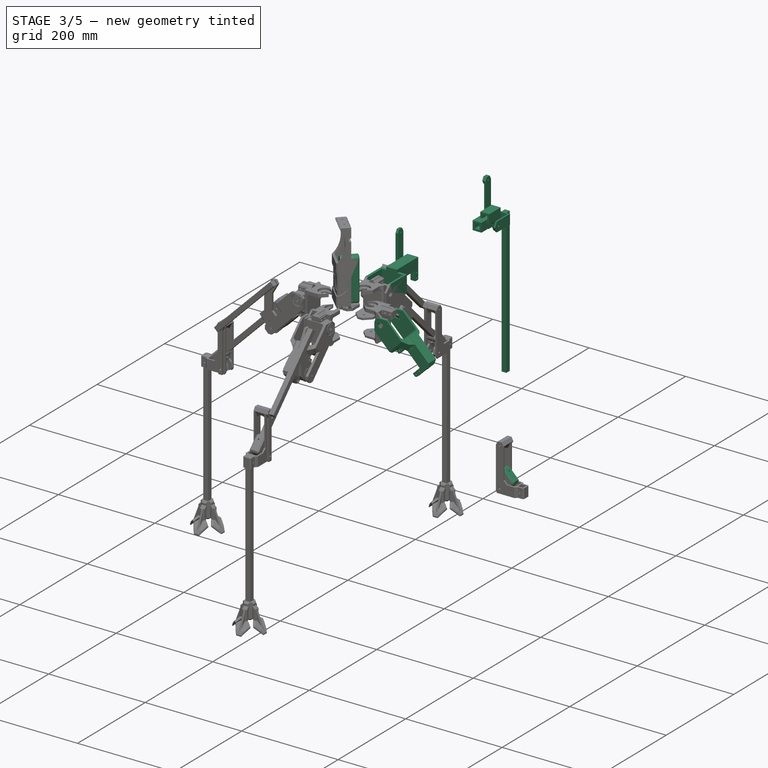
[diagram: stage 3 of 5 — iso view after this stage's code; geometry added in this stage tinted green]
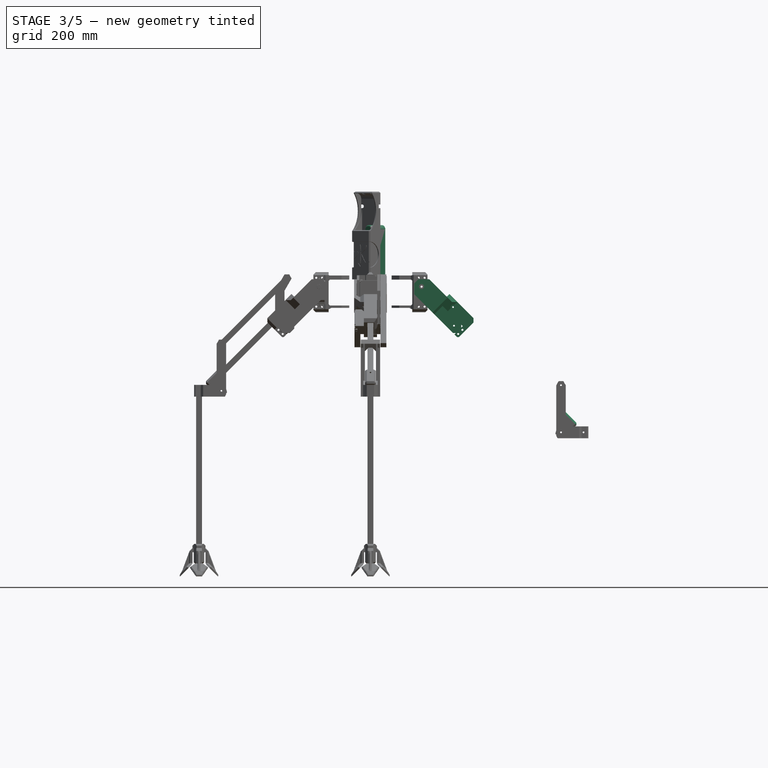
[diagram: stage 3 of 5 — front view after this stage's code; geometry added in this stage tinted green]
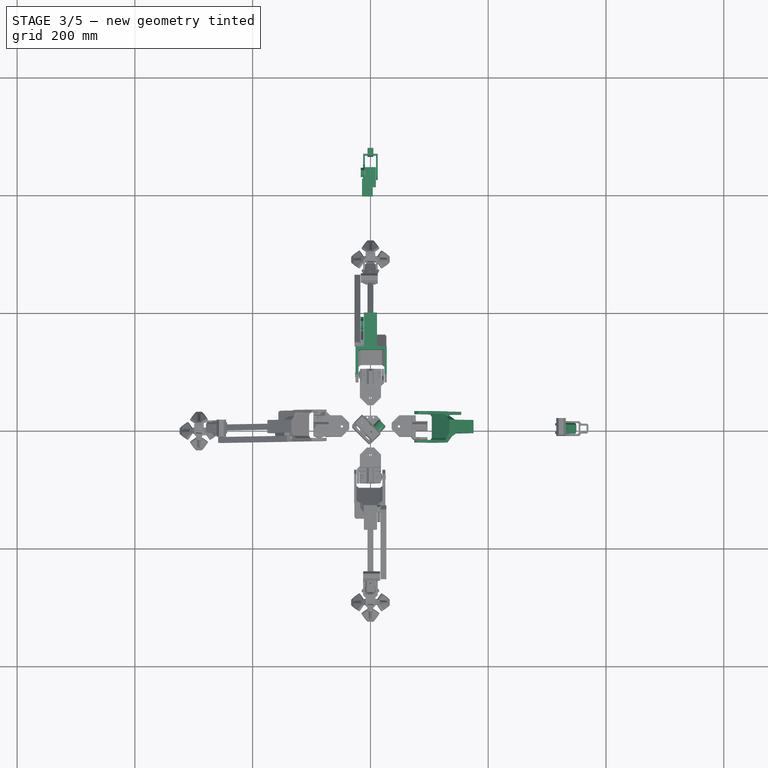
[diagram: stage 3 of 5 — top view after this stage's code; geometry added in this stage tinted green]
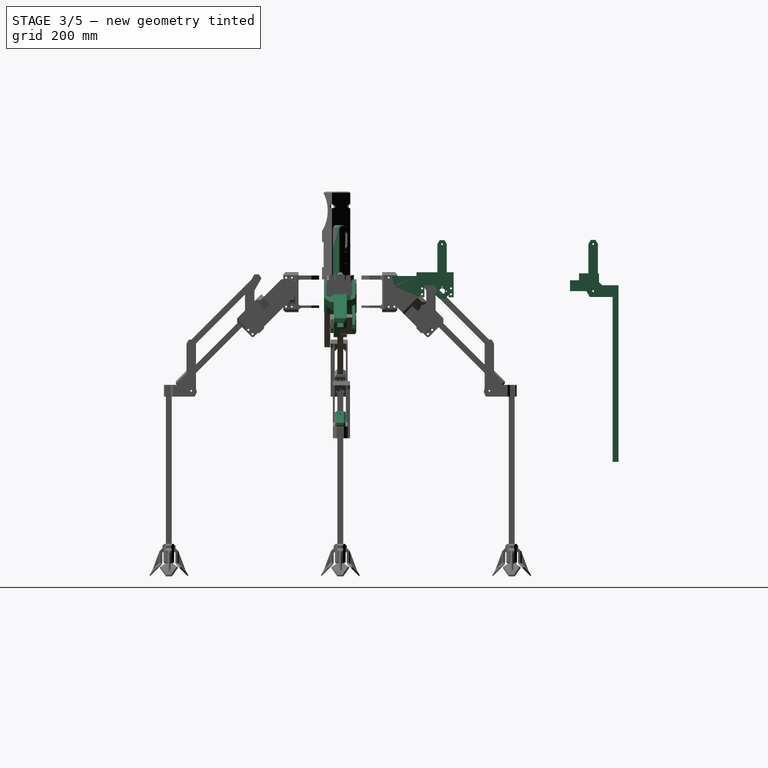
[diagram: stage 3 of 5 — right view after this stage's code; geometry added in this stage tinted green]
FEATURE [Part::Feature] Pad001007004001  label="Pad001007005"
  shape: bbox 53 x 118 x 42.4 mm, 45 faces (baked)
FEATURE [PartDesign::Chamfer] Chamfer002002
  Base = -> Pad001007004001 [Edge38]
  Size = 8
FEATURE [Sketcher::SketchObject] Sketch030
  Placement = pos=(0,420,0) rot=(1,0,0;1.5708rad)
  sketch-geometry (8):
    g0: LineSegment StartX=0 StartY=10.4 StartZ=0 EndX=-10.4 EndY=10.4 EndZ=0
    g1: LineSegment StartX=-10.4 StartY=10.4 StartZ=0 EndX=-10.4 EndY=0 EndZ=0
    g2: LineSegment StartX=-10.4 StartY=0 StartZ=0 EndX=0 EndY=0 EndZ=0
    g3: LineSegment StartX=0 StartY=0 StartZ=0 EndX=0 EndY=10.4 EndZ=0
    g4: LineSegment StartX=4 StartY=14.4 StartZ=0 EndX=-14.4 EndY=14.4 EndZ=0
    g5: LineSegment StartX=-14.4 StartY=14.4 StartZ=0 EndX=-14.4 EndY=-4 EndZ=0
    g6: LineSegment StartX=-14.4 StartY=-4 StartZ=0 EndX=4 EndY=-4 EndZ=0
    g7: LineSegment StartX=4 StartY=-4 StartZ=0 EndX=4 EndY=14.4 EndZ=0
  constraints (23):
    c: Coincident(g0,g1)
    c: Coincident(g1,g2)
    c: Coincident(g2,g3)
    c: Coincident(g3,g0)
    c: Horizontal(g0)
    c: Horizontal(g2)
    c: Vertical(g1)
    c: Vertical(g3)
    c: Coincident(g2,g-1)
    c: Equal(g1,g0)
    c: Distance(g0) = 10.4
    c: Coincident(g4,g5)
    c: Coincident(g5,g6)
    c: Coincident(g6,g7)
    c: Coincident(g7,g4)
    c: Horizontal(g4)
    c: Horizontal(g6)
    c: Vertical(g5)
    c: Vertical(g7)
    c: Distance(g-1,g7) = 4
    c: Distance(g-1,g6) = 4
    c: Distance(g0,g4) = 4
    c: Equal(g4,g7)
FEATURE [PartDesign::Pad] Pad001007004004002003
  Length = 30
  Length2 = 100
  Placement = pos=(0,420,0) rot=(1,0,0;1.5708rad)
  Sketch = -> Sketch030
  Type = 0
FEATURE [Part::Feature] Pad001007004004002003001  label="Pad001007004004002004"
  Placement = pos=(5.2,15.4,11.6) rot=(0,0,1;0rad)
  shape: bbox 18.4 x 30 x 18.4 mm, 10 faces (baked)
FEATURE [Sketcher::SketchObject] Sketch031
  ExternalGeometry = -> [Pad001007004004002003001]
  Placement = pos=(5.2,435.4,11.6) rot=(0,0.707107,0.707107;3.14159rad)
  Support = -> Pad001007004004002003001 [Face9]
  sketch-geometry (4):
    g0: LineSegment StartX=-4 StartY=14.4 StartZ=0 EndX=14.4 EndY=14.4 EndZ=0
    g1: LineSegment StartX=14.4 StartY=14.4 StartZ=0 EndX=14.4 EndY=-4 EndZ=0
    g2: LineSegment StartX=14.4 StartY=-4 StartZ=0 EndX=-4 EndY=-4 EndZ=0
    g3: LineSegment StartX=-4 StartY=-4 StartZ=0 EndX=-4 EndY=14.4 EndZ=0
  constraints (10):
    c: Coincident(g0,g1)
    c: Coincident(g1,g2)
    c: Coincident(g2,g3)
    c: Coincident(g3,g0)
    c: Horizontal(g0)
    c: Horizontal(g2)
    c: Vertical(g1)
    c: Vertical(g3)
    c: Coincident(g0,g-4)
    c: Coincident(g1,g-3)
FEATURE [PartDesign::Pad] Pad001007004004002003002
  Length = 4
  Length2 = 100
  Placement = pos=(5.2,15.4,11.6) rot=(0,0,1;0rad)
  Sketch = -> Sketch031
  Type = 0
FEATURE [Sketcher::SketchObject] Sketch032
  ExternalGeometry = -> [Pad001007004004002003002]
  Placement = pos=(-9.2,15.4,11.6) rot=(0.57735,-0.57735,-0.57735;2.0944rad)
  Support = -> Pad001007004004002003002 [Face11]
  sketch-geometry (15):
    g0: LineSegment [constr] StartX=-424 StartY=14.4 StartZ=0 EndX=-404 EndY=14.4 EndZ=0
    g1: LineSegment [constr] StartX=-404 StartY=14.4 StartZ=0 EndX=-404 EndY=-15.6 EndZ=0
    g2: LineSegment [constr] StartX=-404 StartY=-15.6 StartZ=0 EndX=-424 EndY=-15.6 EndZ=0
    g3: LineSegment [constr] StartX=-424 StartY=-15.6 StartZ=0 EndX=-424 EndY=14.4 EndZ=0
    g4: Circle CenterX=-414 CenterY=-15.6 CenterZ=0 NormalX=0 NormalY=0 NormalZ=1 Radius=1.5
    g5: LineSegment [constr] StartX=-404 StartY=-15.6 StartZ=0 EndX=-409 EndY=-6.93975 EndZ=0
    g6: LineSegment [constr] StartX=-409 StartY=-6.93975 StartZ=0 EndX=-419 EndY=-6.93975 EndZ=0
    g7: LineSegment [constr] StartX=-419 StartY=-6.93975 StartZ=0 EndX=-424 EndY=-15.6 EndZ=0
    g8: LineSegment StartX=-424 StartY=-15.6 StartZ=0 EndX=-419 EndY=-24.2603 EndZ=0
    g9: LineSegment StartX=-419 StartY=-24.2603 StartZ=0 EndX=-409 EndY=-24.2603 EndZ=0
    g10: LineSegment StartX=-409 StartY=-24.2603 StartZ=0 EndX=-404 EndY=-15.6 EndZ=0
    g11: Circle [constr] CenterX=-414 CenterY=-15.6 CenterZ=0 NormalX=0 NormalY=0 NormalZ=1 Radius=10
    g12: LineSegment StartX=-424 StartY=-15.6 StartZ=0 EndX=-424 EndY=-4 EndZ=0
    g13: LineSegment StartX=-424 StartY=-4 StartZ=0 EndX=-404 EndY=-4 EndZ=0
    g14: LineSegment StartX=-404 StartY=-4 StartZ=0 EndX=-404 EndY=-15.6 EndZ=0
  constraints (37):
    c: Coincident(g0,g1)
    c: Coincident(g1,g2)
    c: Coincident(g2,g3)
    c: Coincident(g3,g0)
    c: Horizontal(g0)
    c: Horizontal(g2)
    c: Vertical(g3)
    c: Coincident(g0,g-3)
    c: Distance(g1) = 30
    c: Distance(g0) = 20
    c: PointOnObject(g4,g2)
    c: Radius(g4) = 1.5
    c: Distance(g4,g2) = 10
    c: Coincident(g5,g6)
    c: Coincident(g6,g7)
    c: Coincident(g7,g8)
    c: Coincident(g8,g9)
    c: Coincident(g9,g10)
    c: Coincident(g10,g5)
    c: Equal(g5, g6-g10) x5
    c: PointOnObject(g5,g11)
    c: PointOnObject(g6,g11)
    c: PointOnObject(g7,g11)
    c: PointOnObject(g8,g11)
    c: PointOnObject(g9,g11)
    c: PointOnObject(g10,g11)
    c: Coincident(g11,g4)
    c: Coincident(g5,g1)
    c: Coincident(g2,g12)
    c: Vertical(g12)
    c: Tangent(g12,g11)
    c: Coincident(g12,g13)
    c: PointOnObject(g13,g1)
    c: Horizontal(g13)
    c: Coincident(g13,g14)
    c: Coincident(g14,g1)
    c: Coincident(g12,g-4)
FEATURE [PartDesign::Pad] Pad001007004004002003003
  Length = 18.4
  Length2 = 100
  Placement = pos=(5.2,15.4,11.6) rot=(0,0,1;0rad)
  Reversed = true
  Sketch = -> Sketch032
  Type = 0
FEATURE [Part::Feature] Chamfer002018
  Placement = pos=(-12.5,429.4,-4) rot=(0,0,-1;1.5708rad)
  shape: bbox 25 x 44.55 x 96.93 mm, 21 faces (baked)
FEATURE [Sketcher::SketchObject] Sketch033
  ExternalGeometry = -> [Chamfer002018]
  Placement = pos=(-12.5,429.4,-4) rot=(0.57735,-0.57735,-0.57735;2.0944rad)
  Support = -> Chamfer002018 [Face2]
  sketch-geometry (8):
    g0: LineSegment StartX=4 StartY=86.9282 StartZ=0 EndX=-4 EndY=86.9282 EndZ=0
    g1: LineSegment StartX=-4 StartY=86.9282 StartZ=0 EndX=-8 EndY=80 EndZ=0
    g2: LineSegment StartX=-8 StartY=80 StartZ=0 EndX=-4 EndY=73.0718 EndZ=0
    g3: LineSegment StartX=-4 StartY=73.0718 StartZ=0 EndX=4 EndY=73.0718 EndZ=0
    g4: LineSegment StartX=4 StartY=73.0718 StartZ=0 EndX=8 EndY=80 EndZ=0
    g5: LineSegment StartX=8 StartY=80 StartZ=0 EndX=4 EndY=86.9282 EndZ=0
    g6: Circle [constr] CenterX=0 CenterY=80 CenterZ=0 NormalX=0 NormalY=0 NormalZ=1 Radius=8
    g7: Circle CenterX=0 CenterY=80 CenterZ=0 NormalX=0 NormalY=0 NormalZ=1 Radius=1.5
  constraints (17):
    c: Coincident(g0,g1)
    c: Coincident(g1,g2)
    c: Coincident(g2,g3)
    c: Coincident(g3,g4)
    c: Coincident(g4,g5)
    c: Coincident(g5,g0)
    c: Equal(g0, g1-g5) x5
    c: PointOnObject(g0,g6)
    c: PointOnObject(g1,g6)
    c: PointOnObject(g2,g6)
    c: PointOnObject(g3,g6)
    c: PointOnObject(g4,g6)
    c: PointOnObject(g5,g6)
    c: Coincident(g6,g-3)
    c: Coincident(g0,g-4)
    c: Coincident(g6,g7)
    c: Equal(g7,g-3)
FEATURE [PartDesign::Pad] Pad001007004004002003004
  Length = 4
  Length2 = 100
  Placement = pos=(-12.5,429.4,-4) rot=(0,0,-1;1.5708rad)
  Sketch = -> Sketch033
  Type = 0
FEATURE [Sketcher::SketchObject] Sketch034
  ExternalGeometry = -> [Pad001007004004002001]
  Placement = pos=(-16.57,256.5,-91.25) rot=(-0.707107,0,0.707107;3.14159rad)
  Support = -> Pad001007004004002001 [Face15]
  sketch-geometry (8):
    g0: LineSegment StartX=-166.9 StartY=96.1 StartZ=0 EndX=-101.9 EndY=96.1 EndZ=0
    g1: LineSegment StartX=-101.9 StartY=96.1 StartZ=0 EndX=-101.9 EndY=91.6 EndZ=0
    g2: LineSegment StartX=-101.9 StartY=91.6 StartZ=0 EndX=-166.9 EndY=91.6 EndZ=0
    g3: LineSegment StartX=-166.9 StartY=91.6 StartZ=0 EndX=-166.9 EndY=96.1 EndZ=0
    g4: LineSegment StartX=-166.9 StartY=71.1 StartZ=0 EndX=-101.9 EndY=71.1 EndZ=0
    g5: LineSegment StartX=-101.9 StartY=71.1 StartZ=0 EndX=-101.9 EndY=75.6 EndZ=0
    g6: LineSegment StartX=-101.9 StartY=75.6 StartZ=0 EndX=-166.9 EndY=75.6 EndZ=0
    g7: LineSegment StartX=-166.9 StartY=75.6 StartZ=0 EndX=-166.9 EndY=71.1 EndZ=0
  constraints (22):
    c: Coincident(g0,g1)
    c: Coincident(g1,g2)
    c: Coincident(g2,g3)
    c: Coincident(g3,g0)
    c: Horizontal(g0)
    c: Horizontal(g2)
    c: Vertical(g1)
    c: Vertical(g3)
    c: Coincident(g0,g-3)
    c: Coincident(g4,g5)
    c: Coincident(g5,g6)
    c: Coincident(g6,g7)
    c: Coincident(g7,g4)
    c: Horizontal(g4)
    c: Horizontal(g6)
    c: Vertical(g5)
    c: Vertical(g7)
    c: Coincident(g4,g-3)
    c: Distance(g2,g6) = 16
    c: Equal(g5,g1)
    c: Equal(g6,g2)
    c: Distance(g2) = 65
FEATURE [PartDesign::Pocket] Pocket002002009003005
  Length = 5
  Placement = pos=(8.71,256.5,-91.25) rot=(1,0,0;1.5708rad)
  Sketch = -> Sketch034
  Type = 0
FEATURE [Sketcher::SketchObject] Sketch035
  ExternalGeometry = -> [Pocket002002009003005]
  Placement = pos=(-16.57,256.5,-91.25) rot=(-0.707107,0,0.707107;3.14159rad)
  Support = -> Pocket002002009003005 [Face2]
  sketch-geometry (6):
    g0: LineSegment StartX=-101.9 StartY=75.6 StartZ=0 EndX=-101.9 EndY=71.1 EndZ=0
    g1: LineSegment StartX=-101.9 StartY=71.1 StartZ=0 EndX=-97.4 EndY=71.1 EndZ=0
    g2: LineSegment StartX=-97.4 StartY=71.1 StartZ=0 EndX=-101.9 EndY=75.6 EndZ=0
    g3: LineSegment StartX=-101.9 StartY=91.6 StartZ=0 EndX=-101.9 EndY=96.1 EndZ=0
    g4: LineSegment StartX=-101.9 StartY=96.1 StartZ=0 EndX=-97.4 EndY=96.1 EndZ=0
    g5: LineSegment StartX=-97.4 StartY=96.1 StartZ=0 EndX=-101.9 EndY=91.6 EndZ=0
  constraints (16):
    c: Vertical(g0)
    c: Coincident(g0,g1)
    c: Horizontal(g1)
    c: Coincident(g1,g2)
    c: Coincident(g2,g0)
    c: Vertical(g3)
    c: Coincident(g3,g4)
    c: Horizontal(g4)
    c: Coincident(g4,g5)
    c: Coincident(g5,g3)
    c: Equal(g1,g0)
    c: Equal(g0,g3)
    c: Equal(g3,g4)
    c: Coincident(g3,g-3)
    c: Coincident(g3,g-3)
    c: Coincident(g0,g-4)
FEATURE [PartDesign::Pocket] Pocket002002009003006
  Length = 5
  Placement = pos=(8.71,256.5,-91.25) rot=(1,0,0;1.5708rad)
  Sketch = -> Sketch035
  Type = 0
FEATURE [Sketcher::SketchObject] Sketch036
  ExternalGeometry = -> [Pocket002002009003006]
  Placement = pos=(-16.57,256.5,-91.25) rot=(-0.707107,0,0.707107;3.14159rad)
  Support = -> Pocket002002009003006 [Face2]
  sketch-geometry (7):
    g0: LineSegment StartX=-173.828 StartY=87.6 StartZ=0 EndX=-173.828 EndY=79.6 EndZ=0
    g1: LineSegment StartX=-173.828 StartY=79.6 StartZ=0 EndX=-166.9 EndY=75.6 EndZ=0
    g2: LineSegment StartX=-166.9 StartY=75.6 StartZ=0 EndX=-159.972 EndY=79.6 EndZ=0
    g3: LineSegment StartX=-159.972 StartY=79.6 StartZ=0 EndX=-159.972 EndY=87.6 EndZ=0
    g4: LineSegment StartX=-159.972 StartY=87.6 StartZ=0 EndX=-166.9 EndY=91.6 EndZ=0
    g5: LineSegment StartX=-166.9 StartY=91.6 StartZ=0 EndX=-173.828 EndY=87.6 EndZ=0
    g6: Circle [constr] CenterX=-166.9 CenterY=83.6 CenterZ=0 NormalX=0 NormalY=0 NormalZ=1 Radius=8
  constraints (17):
    c: Coincident(g0,g1)
    c: Coincident(g1,g2)
    c: Coincident(g2,g3)
    c: Coincident(g3,g4)
    c: Coincident(g4,g5)
    c: Coincident(g5,g0)
    c: Equal(g0, g1-g5) x5
    c: PointOnObject(g0,g6)
    c: PointOnObject(g1,g6)
    c: PointOnObject(g2,g6)
    c: PointOnObject(g3,g6)
    c: PointOnObject(g4,g6)
    c: PointOnObject(g5,g6)
    c: Vertical(g0)
    c: PointOnObject(g6,g-3)
    c: Coincident(g4,g-3)
    c: Coincident(g1,g-3)
FEATURE [PartDesign::Pad] Pad001007004004002003005
  Length = 5
  Length2 = 100
  Placement = pos=(8.71,256.5,-91.25) rot=(1,0,0;1.5708rad)
  Reversed = true
  Sketch = -> Sketch036
  Type = 0
FEATURE [Sketcher::SketchObject] Sketch037
  ExternalGeometry = -> [Pad001007004004002003005]
  Placement = pos=(-16.57,256.5,-91.25) rot=(-0.707107,0,0.707107;3.14159rad)
  Support = -> Pad001007004004002003005 [Face2]
  sketch-geometry (1):
    g0: Circle CenterX=-166.9 CenterY=83.6 CenterZ=0 NormalX=0 NormalY=0 NormalZ=1 Radius=1.5
  constraints (3):
    c: PointOnObject(g0,g-3)
    c: Distance(g0,g-3) = 8
    c: Radius(g0) = 1.5
FEATURE [PartDesign::Pocket] Pocket002002009003007
  Length = 5
  Placement = pos=(8.71,256.5,-91.25) rot=(1,0,0;1.5708rad)
  Sketch = -> Sketch037
  Type = 0
FEATURE [Part::Box] Box001  label="Cubo001"
  Height = 300
  Length = 10
  Placement = pos=(-5,462.4,-294) rot=(0,0,1;0rad)
  Width = 10
FEATURE [Sketcher::SketchObject] Sketch038
  ExternalGeometry = -> [Pad001007004004002003003]
  Placement = pos=(5.2,15.4,7.6) rot=(1,0,0;3.14159rad)
  Support = -> Pad001007004004002003003 [Face4]
  sketch-geometry (4):
    g0: LineSegment StartX=-10.4 StartY=-393.35 StartZ=0 EndX=0 EndY=-393.35 EndZ=0
    g1: LineSegment StartX=0 StartY=-393.35 StartZ=0 EndX=0 EndY=-428.813 EndZ=0
    g2: LineSegment StartX=0 StartY=-428.813 StartZ=0 EndX=-10.4 EndY=-428.813 EndZ=0
    g3: LineSegment StartX=-10.4 StartY=-428.813 StartZ=0 EndX=-10.4 EndY=-393.35 EndZ=0
  constraints (10):
    c: Coincident(g0,g1)
    c: Coincident(g1,g2)
    c: Coincident(g2,g3)
    c: Coincident(g3,g0)
    c: Horizontal(g0)
    c: Horizontal(g2)
    c: Vertical(g1)
    c: Vertical(g3)
    c: DistanceX(g0,g-3) = -4
    c: DistanceX(g0,g-3) = 4
FEATURE [PartDesign::Pocket] Pocket002002009003008
  Length = 40
  Placement = pos=(5.2,15.4,11.6) rot=(0,0,1;0rad)
  Reversed = true
  Sketch = -> Sketch038
  Type = 0
FEATURE [Part::Feature] Pocket002002009003008001  label="Pocket002002009003009"
  shape: bbox 18.4 x 34 x 38.66 mm, 23 faces (baked)
FEATURE [PartDesign::Chamfer] Chamfer002019
  Base = -> Pocket002002009003008001 [Edge41,Edge36]
  Size = 5
FEATURE [PartDesign::Chamfer] Chamfer002020
  Base = -> Chamfer002019 [Edge24,Edge46,Edge34,Edge33,Edge25,Edge49,Edge47,Edge28,Edge23]
  Size = 3
FEATURE [PartDesign::Chamfer] Chamfer002021
  Base = -> Chamfer002020 [Edge8,Edge5]
  Size = 5
FEATURE [Part::Feature] Pad001007004004002003004001  label="Pad001007004004002003006"
  shape: bbox 29 x 44.55 x 96.93 mm, 25 faces (baked)
FEATURE [Part::Feature] Chamfer002021001  label="Chamfer002022"
  shape: bbox 18.4 x 34 x 38.66 mm, 40 faces (baked)
FEATURE [Part::Feature] Pocket002002009003007001  label="Pocket002002009003010"
  shape: bbox 5 x 25 x 99.43 mm, 22 faces (baked)
FEATURE [Part::Feature] Chamfer002017001  label="Chamfer002023"
  shape: bbox 53 x 118 x 42.4 mm, 65 faces (baked)
FEATURE [Part::Feature] Chamfer002010001  label="Chamfer002024"
  shape: bbox 41.01 x 61 x 58 mm, 79 faces (baked)
FEATURE [Part::Feature] Pocket002002009003008003  label="Pocket002002009003012"
  Placement = pos=(0,31,-58.2) rot=(0,0,1;3.14159rad)
  shape: bbox 5 x 25 x 99.43 mm, 22 faces (baked)
FEATURE [Sketcher::SketchObject] Sketch039
  ExternalGeometry = -> [Pocket002002009003008003]
  Placement = pos=(16.57,31,-58.2) rot=(0.57735,0.57735,0.57735;2.0944rad)
  Support = -> Pocket002002009003008003 [Face13]
  sketch-geometry (11):
    g0: LineSegment [constr] StartX=-168.9 StartY=82.5782 StartZ=0 EndX=-176.9 EndY=82.5782 EndZ=0
    g1: LineSegment [constr] StartX=-176.9 StartY=82.5782 StartZ=0 EndX=-180.9 EndY=75.65 EndZ=0
    g2: LineSegment [constr] StartX=-180.9 StartY=75.65 StartZ=0 EndX=-176.9 EndY=68.7218 EndZ=0
    g3: LineSegment [constr] StartX=-176.9 StartY=68.7218 StartZ=0 EndX=-168.9 EndY=68.7218 EndZ=0
    g4: LineSegment StartX=-168.9 StartY=68.7218 StartZ=0 EndX=-164.9 EndY=75.65 EndZ=0
    g5: LineSegment [constr] StartX=-164.9 StartY=75.65 StartZ=0 EndX=-168.9 EndY=82.5782 EndZ=0
    g6: Circle [constr] CenterX=-172.9 CenterY=75.65 CenterZ=0 NormalX=0 NormalY=0 NormalZ=1 Radius=8
    g7: LineSegment StartX=-164.9 StartY=10.65 StartZ=0 EndX=-176.9 EndY=22.65 EndZ=0
    g8: LineSegment StartX=-176.9 StartY=22.65 StartZ=0 EndX=-176.9 EndY=54.8654 EndZ=0
    g9: LineSegment StartX=-176.9 StartY=54.8654 StartZ=0 EndX=-168.9 EndY=68.7218 EndZ=0
    g10: LineSegment StartX=-164.9 StartY=75.65 StartZ=0 EndX=-164.9 EndY=10.65 EndZ=0
  constraints (26):
    c: Coincident(g0,g1)
    c: Coincident(g1,g2)
    c: Coincident(g2,g3)
    c: Coincident(g3,g4)
    c: Coincident(g4,g5)
    c: Coincident(g5,g0)
    c: Equal(g0, g1-g5) x5
    c: PointOnObject(g0,g6)
    c: PointOnObject(g1,g6)
    c: PointOnObject(g2,g6)
    c: PointOnObject(g3,g6)
    c: PointOnObject(g4,g6)
    c: PointOnObject(g5,g6)
    c: Coincident(g6,g-3)
    c: Coincident(g-4,g7)
    c: Coincident(g7,g8)
    c: Coincident(g8,g9)
    c: Coincident(g9,g3)
    c: Tangent(g4,g9)
    c: Tangent(g-4,g7)
    c: Vertical(g8)
    c: Coincident(g10,g4)
    c: Coincident(g10,g7)
    c: Vertical(g10)
    c: Distance(g8,g10) = 12
    c: Coincident(g1,g-6)
FEATURE [PartDesign::Pocket] Pocket002002009003008004
  Length = 5
  Placement = pos=(0,31,-58.2) rot=(0,0,1;3.14159rad)
  Sketch = -> Sketch039
  Type = 0
FEATURE [Sketcher::SketchObject] Sketch040
  ExternalGeometry = -> [Pocket002002009003008004]
  Placement = pos=(16.57,31,-58.2) rot=(0.57735,0.57735,0.57735;2.0944rad)
  Support = -> Pocket002002009003008004 [Face3]
  sketch-geometry (4):
    g0: LineSegment StartX=-180.9 StartY=75.65 StartZ=0 EndX=-185.4 EndY=67.8558 EndZ=0
    g1: LineSegment StartX=-185.4 StartY=67.8558 StartZ=0 EndX=-185.4 EndY=6.15 EndZ=0
    g2: LineSegment StartX=-185.4 StartY=6.15 StartZ=0 EndX=-180.9 EndY=10.65 EndZ=0
    g3: LineSegment StartX=-180.9 StartY=10.65 StartZ=0 EndX=-180.9 EndY=75.65 EndZ=0
  constraints (10):
    c: Coincident(g-4,g0)
    c: Coincident(g0,g1)
    c: Vertical(g1)
    c: Coincident(g1,g2)
    c: Coincident(g2,g3)
    c: Vertical(g3)
    c: Coincident(g0,g3)
    c: Coincident(g2,g-3)
    c: Coincident(g1,g-3)
    c: Tangent(g0,g-4)
FEATURE [PartDesign::Pad] Pad001007004004002003004004
  Length = 5
  Length2 = 100
  Placement = pos=(0,31,-58.2) rot=(0,0,1;3.14159rad)
  Reversed = true
  Sketch = -> Sketch040
  Type = 0
FEATURE [Part::Feature] Pad001007004004002003004004001  label="Pad001007004004002003004005"
  shape: bbox 5 x 25 x 99.43 mm, 21 faces (baked)
FEATURE [Sketcher::SketchObject] Sketch041
  ExternalGeometry = -> [Pad001007004004002003004004001]
  Placement = pos=(16.57,0,0) rot=(0.57735,0.57735,0.57735;2.0944rad)
  Support = -> Pad001007004004002003004004001 [Face5]
  sketch-geometry (4):
    g0: LineSegment StartX=-154.4 StartY=-67.55 StartZ=0 EndX=-161.9 EndY=-60.05 EndZ=0
    g1: LineSegment StartX=-161.9 StartY=-60.05 StartZ=0 EndX=-161.9 EndY=-3.33461 EndZ=0
    g2: LineSegment StartX=-161.9 StartY=-3.33461 StartZ=0 EndX=-154.4 EndY=9.65577 EndZ=0
    g3: LineSegment StartX=-154.4 StartY=9.65577 StartZ=0 EndX=-154.4 EndY=-67.55 EndZ=0
  constraints (10):
    c: Coincident(g-5,g0)
    c: Coincident(g0,g1)
    c: Vertical(g1)
    c: Coincident(g1,g2)
    c: Coincident(g2,g-4)
    c: Coincident(g2,g3)
    c: Coincident(g3,g0)
    c: Tangent(g-4,g2)
    c: Tangent(g0,g-5)
    c: Distance(g1,g-3) = 16
FEATURE [PartDesign::Pad] Pad001007004004002003004004002
  Length = 5
  Length2 = 100
  Reversed = true
  Sketch = -> Sketch041
  Type = 0
FEATURE [Sketcher::SketchObject] Sketch043
  ExternalGeometry = -> [Chamfer002021010]
  Placement = pos=(0,-19.01,0) rot=(0,0.707107,0.707107;3.14159rad)
  Support = -> Chamfer002021010 [Face77]
  sketch-geometry (4):
    g0: LineSegment StartX=-76.95 StartY=23.1 StartZ=0 EndX=-96.95 EndY=23.1 EndZ=0
    g1: LineSegment StartX=-96.95 StartY=23.1 StartZ=0 EndX=-96.95 EndY=14.6 EndZ=0
    g2: LineSegment StartX=-96.95 StartY=14.6 StartZ=0 EndX=-76.95 EndY=14.6 EndZ=0
    g3: LineSegment StartX=-76.95 StartY=14.6 StartZ=0 EndX=-76.95 EndY=23.1 EndZ=0
  constraints (11):
    c: Coincident(g0,g1)
    c: Coincident(g1,g2)
    c: Coincident(g2,g3)
    c: Coincident(g3,g0)
    c: Horizontal(g0)
    c: Horizontal(g2)
    c: Vertical(g1)
    c: Vertical(g3)
    c: Coincident(g0,g-3)
    c: PointOnObject(g1,g-4)
    c: Coincident(g1,g-4)
FEATURE [PartDesign::Pocket] Pocket002002009003008005
  Length = 5
  Placement = pos=(0,0,0) rot=(0,0,-1;1.5708rad)
  Sketch = -> Sketch043
  Type = 0
FEATURE [Sketcher::SketchObject] Sketch044
  ExternalGeometry = -> [Pocket002002009003008005]
  Placement = pos=(0,0,18.59) rot=(0,0,-1;1.5708rad)
  Support = -> Pocket002002009003008005 [Face25]
  sketch-geometry (4):
    g0: LineSegment StartX=-5 StartY=48.45 StartZ=0 EndX=5 EndY=48.45 EndZ=0
    g1: LineSegment StartX=5 StartY=48.45 StartZ=0 EndX=5 EndY=34.2492 EndZ=0
    g2: LineSegment StartX=5 StartY=34.2492 StartZ=0 EndX=-5 EndY=34.2492 EndZ=0
    g3: LineSegment StartX=-5 StartY=34.2492 StartZ=0 EndX=-5 EndY=48.45 EndZ=0
  constraints (11):
    c: Coincident(g0,g1)
    c: Coincident(g1,g2)
    c: Coincident(g2,g3)
    c: Coincident(g3,g0)
    c: Horizontal(g0)
    c: Horizontal(g2)
    c: Vertical(g1)
    c: Vertical(g3)
    c: PointOnObject(g0,g-3)
    c: PointOnObject(g0,g-3)
    c: PointOnObject(g-3,g0)
FEATURE [PartDesign::Pocket] Pocket002002009003008006
  Length = 10
  Midplane = true
  Placement = pos=(0,0,0) rot=(0,0,-1;1.5708rad)
  Sketch = -> Sketch044
  Type = 0
FEATURE [Sketcher::SketchObject] Sketch045
  ExternalGeometry = -> [Chamfer002021009]
  Placement = pos=(22.7947,11.2,62.6313) rot=(0.281085,0.678598,0.678598;3.68962rad)
  Support = -> Chamfer002021009 [Face31]
  sketch-geometry (4):
    g0: Circle [constr] CenterX=-149.4 CenterY=16.8 CenterZ=0 NormalX=0 NormalY=0 NormalZ=1 Radius=6
    g1: Circle CenterX=-149.4 CenterY=16.8 CenterZ=0 NormalX=0 NormalY=0 NormalZ=1 Radius=1.5
    g2: LineSegment [constr] StartX=-135.4 StartY=22 StartZ=0 EndX=-149.4 EndY=16.8 EndZ=0
    g3: LineSegment [constr] StartX=-149.4 StartY=16.8 StartZ=0 EndX=-135.4 EndY=11.6 EndZ=0
  constraints (9):
    c: Coincident(g1,g0)
    c: Radius(g1) = 1.5
    c: Tangent(g0,g-5)
    c: Radius(g0) = 6
    c: Coincident(g-3,g2)
    c: Coincident(g2,g0)
    c: Coincident(g2,g3)
    c: Coincident(g3,g-3)
    c: Equal(g2,g3)
FEATURE [PartDesign::Pocket] Pocket002002009003008007
  Length = 50
  Placement = pos=(22.7947,0,62.6313) rot=(-0.357407,0.357407,-0.862856;1.71777rad)
  Sketch = -> Sketch045
  Type = 0
FEATURE [Sketcher::SketchObject] Sketch046
  ExternalGeometry = -> [Pocket002002009003008007]
  Placement = pos=(22.7947,-11.2,62.6313) rot=(0.862856,0.357407,-0.357407;1.71777rad)
  Support = -> Pocket002002009003008007 [Face42]
  sketch-geometry (1):
    g0: Circle CenterX=149.4 CenterY=16.8 CenterZ=0 NormalX=0 NormalY=0 NormalZ=1 Radius=4
  constraints (2):
    c: Coincident(g0,g-3)
    c: Radius(g0) = 4
FEATURE [PartDesign::Pocket] Pocket002002009003008008
  Length = 5
  Placement = pos=(22.7947,0,62.6313) rot=(-0.357407,0.357407,-0.862856;1.71777rad)
  Reversed = true
  Sketch = -> Sketch046
  Type = 0
FEATURE [Sketcher::SketchObject] Sketch048
  ExternalGeometry = -> [Chamfer002021008]
  Placement = pos=(28.1687,0,68.0053) rot=(-0.678598,0.678598,0.281085;3.68962rad)
  Support = -> Chamfer002021008 [Face1]
  sketch-geometry (3):
    g0: Circle CenterX=0 CenterY=-415.4 CenterZ=0 NormalX=0 NormalY=0 NormalZ=1 Radius=1.5
    g1: LineSegment [constr] StartX=-5.2 StartY=-405.4 StartZ=0 EndX=0 EndY=-415.4 EndZ=0
    g2: LineSegment [constr] StartX=0 StartY=-415.4 StartZ=0 EndX=5.2 EndY=-405.4 EndZ=0
  constraints (7):
    c: Coincident(g1,g0)
    c: Coincident(g1,g2)
    c: Coincident(g2,g-3)
    c: Coincident(g1,g-3)
    c: Equal(g2,g1)
    c: Distance(g0,g-3) = 10
    c: Radius(g0) = 1.5
FEATURE [PartDesign::Pocket] Pocket002002009003008010
  Length = 50
  Placement = pos=(22.7947,0,62.6313) rot=(-0.357407,0.357407,-0.862856;1.71777rad)
  Sketch = -> Sketch048
  Type = 0
FEATURE [Sketcher::SketchObject] Sketch049
  ExternalGeometry = -> [Pocket002002009003008010]
  Placement = pos=(28.1687,0,68.0053) rot=(-0.678598,0.678598,0.281085;3.68962rad)
  Support = -> Pocket002002009003008010 [Face1]
  sketch-geometry (1):
    g0: Circle CenterX=0 CenterY=-415.4 CenterZ=0 NormalX=0 NormalY=0 NormalZ=1 Radius=4
  constraints (2):
    c: Coincident(g0,g-3)
    c: Radius(g0) = 4
FEATURE [PartDesign::Pocket] Pocket002002009003008011
  Length = 5
  Placement = pos=(22.7947,0,62.6313) rot=(-0.357407,0.357407,-0.862856;1.71777rad)
  Reversed = true
  Sketch = -> Sketch049
  Type = 0
FEATURE [Sketcher::SketchObject] Sketch050
  ExternalGeometry = -> [Pocket002002009003008008]
  Placement = pos=(12.6124,0,52.4489) rot=(-0.678598,0.678598,0.281085;3.68962rad)
  Support = -> Pocket002002009003008008 [Face4]
  sketch-geometry (4):
    g0: LineSegment StartX=-20.28 StartY=-160.4 StartZ=0 EndX=-18.28 EndY=-160.4 EndZ=0
    g1: LineSegment StartX=-18.28 StartY=-160.4 StartZ=0 EndX=-18.28 EndY=-212.626 EndZ=0
    g2: LineSegment StartX=-18.28 StartY=-212.626 StartZ=0 EndX=-20.28 EndY=-212.626 EndZ=0
    g3: LineSegment StartX=-20.28 StartY=-212.626 StartZ=0 EndX=-20.28 EndY=-160.4 EndZ=0
  constraints (10):
    c: Coincident(g0,g1)
    c: Coincident(g1,g2)
    c: Coincident(g2,g3)
    c: Coincident(g3,g0)
    c: Horizontal(g0)
    c: Horizontal(g2)
    c: Vertical(g1)
    c: Vertical(g3)
    c: Coincident(g0,g-3)
    c: Coincident(g0,g-3)
FEATURE [PartDesign::Pocket] Pocket002002009003008012
  Length = 50
  Placement = pos=(22.7947,0,62.6313) rot=(-0.357407,0.357407,-0.862856;1.71777rad)
  Sketch = -> Sketch050
  Type = 0
FEATURE [Part::Feature] Pad001007004004002003004004002009  label="Pad001007004004002003004004002010008"
  shape: bbox 136 x 136 x 30.5 mm, 95 faces (baked)
FEATURE [Part::Feature] Part__Feature027  label="Board"
  Placement = pos=(16.6817,21.5021,87.5) rot=(-0.678598,0.281085,0.678598;2.59356rad)
  shape: bbox 38.86 x 38.86 x 68.6 mm, 426 faces (baked)
FEATURE [Part::Feature] Part__Feature070  label="User_Library-Module_Bluetooth"
  Placement = pos=(-14.2207,-4.88689,80.341) rot=(0.678598,-0.281085,0.678598;2.59356rad)
  shape: bbox 10.37 x 10.37 x 26.9 mm, 503 faces (baked)
FEATURE [Part::Feature] Part__Feature305  label="User_Library-Header1x2_Header1_053"
  Placement = pos=(-14.5031,-5.65651,45.854) rot=(0.357407,-0.862856,0.357407;1.71777rad)
  shape: bbox 8.075 x 8.075 x 2.54 mm, 32 faces (baked)
FEATURE [Part::Feature] Part__Feature301  label="User_Library-Header1x2_Header1_049"
  Placement = pos=(-14.5031,-5.65651,56.014) rot=(0.357407,-0.862856,0.357407;1.71777rad)
  shape: bbox 8.075 x 8.075 x 2.54 mm, 32 faces (baked)
FEATURE [Part::Feature] Part__Feature224  label="User_Library-Header1x2_Header1_011"
  Placement = pos=(-18.0952,-9.24862,24.01) rot=(0.357407,-0.862856,0.357407;1.71777rad)
  shape: bbox 8.075 x 8.075 x 2.54 mm, 32 faces (baked)
FEATURE [Part::Feature] Part__Feature222  label="User_Library-Header1x2_Header1_009"
  Placement = pos=(-18.0952,-9.24862,34.17) rot=(0.357407,-0.862856,0.357407;1.71777rad)
  shape: bbox 8.075 x 8.075 x 2.54 mm, 32 faces (baked)
FEATURE [Part::Feature] Part__Feature226  label="User_Library-Header1x2_Header1_013"
  Placement = pos=(-18.0952,-9.24862,29.09) rot=(0.357407,-0.862856,0.357407;1.71777rad)
  shape: bbox 8.075 x 8.075 x 2.54 mm, 32 faces (baked)
FEATURE [Part::Feature] Part__Feature225  label="User_Library-Header1x2_Header1_012"
  Placement = pos=(-18.0952,-9.24862,26.55) rot=(0.357407,-0.862856,0.357407;1.71777rad)
  shape: bbox 8.075 x 8.075 x 2.54 mm, 32 faces (baked)
FEATURE [Part::Feature] Part__Feature227  label="User_Library-Header1x2_Header1_014"
  Placement = pos=(-18.0952,-9.24862,31.63) rot=(0.357407,-0.862856,0.357407;1.71777rad)
  shape: bbox 8.075 x 8.075 x 2.54 mm, 32 faces (baked)
FEATURE [Part::Feature] Part__Feature245  label="User_Library-Header1x2_Header1_032"
  Placement = pos=(9.71531,18.5619,27.8) rot=(-0.357407,0.862856,0.357407;1.71777rad)
  shape: bbox 8.075 x 8.075 x 2.54 mm, 32 faces (baked)
FEATURE [Part::Feature] Part__Feature238  label="User_Library-Header1x2_Header1_025"
  Placement = pos=(-14.5031,-5.65651,34.17) rot=(0.357407,-0.862856,0.357407;1.71777rad)
  shape: bbox 8.075 x 8.075 x 2.54 mm, 32 faces (baked)
FEATURE [Part::Feature] Part__Feature246  label="User_Library-Header1x2_Header1_033"
  Placement = pos=(9.71531,18.5619,35.42) rot=(-0.357407,0.862856,0.357407;1.71777rad)
  shape: bbox 8.075 x 8.075 x 2.54 mm, 32 faces (baked)
FEATURE [Part::Feature] Part__Feature249  label="User_Library-Header1x2_Header1_036"
  Placement = pos=(9.71531,18.5619,37.96) rot=(-0.357407,0.862856,0.357407;1.71777rad)
  shape: bbox 8.075 x 8.075 x 2.54 mm, 32 faces (baked)
FEATURE [Part::Feature] Part__Feature248  label="User_Library-Header1x2_Header1_035"
  Placement = pos=(9.71531,18.5619,40.5) rot=(-0.357407,0.862856,0.357407;1.71777rad)
  shape: bbox 8.075 x 8.075 x 2.54 mm, 32 faces (baked)
FEATURE [Part::Feature] Part__Feature309  label="User_Library-Header1x2_Header1_057"
  Placement = pos=(-16.2991,-7.45257,50.934) rot=(0.357407,-0.862856,0.357407;1.71777rad)
  shape: bbox 8.075 x 8.075 x 2.54 mm, 32 faces (baked)
FEATURE [Part::Feature] Part__Feature093  label="female_header_a-bl254-eg-g08d001"
  Placement = pos=(-20.3505,-13.2794,32.8801) rot=(0.357407,-0.862856,0.357407;1.71777rad)
  shape: bbox 9.24 x 9.24 x 20.57 mm, 290 faces (baked)
FEATURE [Part::Feature] Part__Feature318  label="User_Library-pts645-v-l-39"
  Placement = pos=(5.20366,12.2747,21.8409) rot=(-0.382683,0.92388,0;3.14159rad)
  shape: bbox 12.8 x 12.8 x 6.501 mm, 121 faces (baked)
FEATURE [Part::Feature] Part__Feature210  label="User_Library-rapc722"
  Placement = pos=(9.68319,16.7543,77.6159) rot=(-0.357407,0.862856,0.357407;1.71777rad)
  shape: bbox 6.712 x 5.816 x 7.139 mm, 12 faces (baked)
FEATURE [Part::Feature] Part__Feature211  label="User_Library-rapc723"
  Placement = pos=(9.68319,16.7543,77.6159) rot=(-0.357407,0.862856,0.357407;1.71777rad)
  shape: bbox 9.944 x 9.944 x 0.508 mm, 12 faces (baked)
FEATURE [Part::Feature] Part__Feature212  label="User_Library-rapc724"
  Placement = pos=(9.68319,16.7543,77.6159) rot=(-0.357407,0.862856,0.357407;1.71777rad)
  shape: bbox 14.01 x 14.01 x 14.61 mm, 41 faces (baked)
FEATURE [Part::Feature] Part__Feature217  label="User_Library-Header1x2_Header1_004"
  Placement = pos=(-18.0952,-9.24862,53.474) rot=(0.357407,-0.862856,0.357407;1.71777rad)
  shape: bbox 8.075 x 8.075 x 2.54 mm, 32 faces (baked)
FEATURE [Part::Feature] Part__Feature223  label="User_Library-Header1x2_Header1_010"
  Placement = pos=(-18.0952,-9.24862,36.71) rot=(0.357407,-0.862856,0.357407;1.71777rad)
  shape: bbox 8.075 x 8.075 x 2.54 mm, 32 faces (baked)
FEATURE [Part::Feature] Part__Feature272  label="User_Library-3067-47340001R-Rev_01"
  Placement = pos=(-3.30003,5.5388,85.3009) rot=(0,0,1;0.785398rad)
  shape: bbox 6.914 x 6.914 x 5.43 mm, 414 faces, 0 solids (baked)
FEATURE [Part::Feature] Part__Feature281  label="User_Library-3067-47340001R-Rev_010"
  Placement = pos=(-3.30003,5.5388,85.3009) rot=(0,0,1;0.785398rad)
  shape: bbox 0.3182 x 0.3182 x 1.38 mm, 1 faces, 0 solids (baked)
FEATURE [Part::Feature] Part__Feature094  label="female_header_a-bl254-eg-g06d"
  Placement = pos=(13.7603,20.8314,30.35) rot=(-0.357407,0.862856,0.357407;1.71777rad)
  shape: bbox 9.275 x 9.275 x 15.49 mm, 224 faces (baked)
FEATURE [Part::Feature] Part__Feature095  label="female_header_a-bl254-eg-g06d001"
  Placement = pos=(13.7603,20.8314,48.13) rot=(-0.357407,0.862856,0.357407;1.71777rad)
  shape: bbox 9.275 x 9.275 x 15.49 mm, 224 faces (baked)
FEATURE [Part::Feature] Part__Feature299  label="User_Library-Header1x2_Header1_047"
  Placement = pos=(7.91926,16.7658,40.5) rot=(-0.357407,0.862856,0.357407;1.71777rad)
  shape: bbox 8.075 x 8.075 x 2.54 mm, 32 faces (baked)
FEATURE [Part::Feature] Part__Feature300  label="User_Library-Header1x2_Header1_048"
  Placement = pos=(7.91926,16.7658,37.96) rot=(-0.357407,0.862856,0.357407;1.71777rad)
  shape: bbox 8.075 x 8.075 x 2.54 mm, 32 faces (baked)
FEATURE [Part::Feature] Part__Feature278  label="User_Library-3067-47340001R-Rev_007"
  Placement = pos=(-3.30003,5.5388,85.3009) rot=(0,0,1;0.785398rad)
  shape: bbox 1.043 x 1.043 x 2.1 mm, 1 faces, 0 solids (baked)
FEATURE [Part::Feature] Part__Feature291  label="User_Library-Header1x2_Header1_039"
  Placement = pos=(6.12321,14.9698,35.42) rot=(-0.357407,0.862856,0.357407;1.71777rad)
  shape: bbox 8.075 x 8.075 x 2.54 mm, 32 faces (baked)
FEATURE [Part::Feature] Part__Feature290  label="User_Library-Header1x2_Header1_038"
  Placement = pos=(6.12321,14.9698,27.8) rot=(-0.357407,0.862856,0.357407;1.71777rad)
  shape: bbox 8.075 x 8.075 x 2.54 mm, 32 faces (baked)
FEATURE [Part::Feature] Part__Feature313  label="knitter_switch"
  Placement = pos=(15.8979,22.969,59.269) rot=(-0.382683,0.92388,0;3.14159rad)
  shape: bbox 5.241 x 5.241 x 10 mm, 44 faces (baked)
FEATURE [Part::Feature] Part__Feature296  label="User_Library-Header1x2_Header1_044"
  Placement = pos=(7.91926,16.7658,27.8) rot=(-0.357407,0.862856,0.357407;1.71777rad)
  shape: bbox 8.075 x 8.075 x 2.54 mm, 32 faces (baked)
FEATURE [Part::Feature] Part__Feature233  label="User_Library-Header1x2_Header1_020"
  Placement = pos=(-16.2991,-7.45257,26.55) rot=(0.357407,-0.862856,0.357407;1.71777rad)
  shape: bbox 8.075 x 8.075 x 2.54 mm, 32 faces (baked)
FEATURE [Part::Feature] Part__Feature237  label="User_Library-Header1x2_Header1_024"
  Placement = pos=(-14.5031,-5.65651,41.79) rot=(0.357407,-0.862856,0.357407;1.71777rad)
  shape: bbox 8.075 x 8.075 x 2.54 mm, 32 faces (baked)
FEATURE [Part::Feature] Part__Feature234  label="User_Library-Header1x2_Header1_021"
  Placement = pos=(-16.2991,-7.45257,29.09) rot=(0.357407,-0.862856,0.357407;1.71777rad)
  shape: bbox 8.075 x 8.075 x 2.54 mm, 32 faces (baked)
FEATURE [Part::Feature] Part__Feature293  label="User_Library-Header1x2_Header1_041"
  Placement = pos=(6.12321,14.9698,40.5) rot=(-0.357407,0.862856,0.357407;1.71777rad)
  shape: bbox 8.075 x 8.075 x 2.54 mm, 32 faces (baked)
FEATURE [Part::Feature] Part__Feature274  label="User_Library-3067-47340001R-Rev_003"
  Placement = pos=(-3.30003,5.5388,85.3009) rot=(0,0,1;0.785398rad)
  shape: bbox 1.679 x 1.679 x 1.9 mm, 1 faces, 0 solids (baked)
FEATURE [Part::Feature] Part__Feature307  label="User_Library-Header1x2_Header1_055"
  Placement = pos=(-16.2991,-7.45257,56.014) rot=(0.357407,-0.862856,0.357407;1.71777rad)
  shape: bbox 8.075 x 8.075 x 2.54 mm, 32 faces (baked)
FEATURE [Part::Feature] Part__Feature306  label="User_Library-Header1x2_Header1_054"
  Placement = pos=(-14.5031,-5.65651,48.394) rot=(0.357407,-0.862856,0.357407;1.71777rad)
  shape: bbox 8.075 x 8.075 x 2.54 mm, 32 faces (baked)
FEATURE [Part::Feature] Part__Feature215  label="User_Library-Header1x2_Header1_002"
  Placement = pos=(-18.0952,-9.24862,58.554) rot=(0.357407,-0.862856,0.357407;1.71777rad)
  shape: bbox 8.075 x 8.075 x 2.54 mm, 32 faces (baked)
FEATURE [Part::Feature] Part__Feature221  label="User_Library-Header1x2_Header1_008"
  Placement = pos=(-18.0952,-9.24862,41.79) rot=(0.357407,-0.862856,0.357407;1.71777rad)
  shape: bbox 8.075 x 8.075 x 2.54 mm, 32 faces (baked)
FEATURE [Part::Feature] Part__Feature218  label="User_Library-Header1x2_Header1_005"
  Placement = pos=(-18.0952,-9.24862,45.854) rot=(0.357407,-0.862856,0.357407;1.71777rad)
  shape: bbox 8.075 x 8.075 x 2.54 mm, 32 faces (baked)
FEATURE [Part::Feature] Part__Feature213  label="User_Library-rapc725"
  Placement = pos=(9.68319,16.7543,77.6159) rot=(-0.357407,0.862856,0.357407;1.71777rad)
  shape: bbox 6.836 x 6.836 x 0.2235 mm, 12 faces (baked)
FEATURE [Part::Feature] Part__Feature297  label="User_Library-Header1x2_Header1_045"
  Placement = pos=(7.91926,16.7658,35.42) rot=(-0.357407,0.862856,0.357407;1.71777rad)
  shape: bbox 8.075 x 8.075 x 2.54 mm, 32 faces (baked)
FEATURE [Part::Feature] Part__Feature303  label="User_Library-Header1x2_Header1_051"
  Placement = pos=(-14.5031,-5.65651,50.934) rot=(0.357407,-0.862856,0.357407;1.71777rad)
  shape: bbox 8.075 x 8.075 x 2.54 mm, 32 faces (baked)
FEATURE [Part::Feature] Part__Feature282  label="User_Library-3067-47340001R-Rev_011"
  Placement = pos=(-3.30003,5.5388,85.3009) rot=(0,0,1;0.785398rad)
  shape: bbox 0.3182 x 0.3182 x 1.38 mm, 1 faces, 0 solids (baked)
FEATURE [Part::Feature] Part__Feature312  label="User_Library-Header1x2_Header1_060"
  Placement = pos=(-16.2991,-7.45257,48.394) rot=(0.357407,-0.862856,0.357407;1.71777rad)
  shape: bbox 8.075 x 8.075 x 2.54 mm, 32 faces (baked)
FEATURE [Part::Feature] Part__Feature323  label="User_Library-pts645-v-l-044"
  Placement = pos=(5.20366,12.2747,21.8409) rot=(-0.382683,0.92388,0;3.14159rad)
  shape: bbox 1.422 x 1.422 x 0.7874 mm, 4 faces (baked)
FEATURE [Part::Feature] Part__Feature283  label="User_Library-3067-47340001R-Rev_012"
  Placement = pos=(-3.30003,5.5388,85.3009) rot=(0,0,1;0.785398rad)
  shape: bbox 0.3182 x 0.3182 x 1.38 mm, 1 faces, 0 solids (baked)
FEATURE [Part::Feature] Part__Feature311  label="User_Library-Header1x2_Header1_059"
  Placement = pos=(-16.2991,-7.45257,45.854) rot=(0.357407,-0.862856,0.357407;1.71777rad)
  shape: bbox 8.075 x 8.075 x 2.54 mm, 32 faces (baked)
FEATURE [Part::Feature] Part__Feature304  label="User_Library-Header1x2_Header1_052"
  Placement = pos=(-14.5031,-5.65651,53.474) rot=(0.357407,-0.862856,0.357407;1.71777rad)
  shape: bbox 8.075 x 8.075 x 2.54 mm, 32 faces (baked)
FEATURE [Part::Feature] Part__Feature308  label="User_Library-Header1x2_Header1_056"
  Placement = pos=(-16.2991,-7.45257,58.554) rot=(0.357407,-0.862856,0.357407;1.71777rad)
  shape: bbox 8.075 x 8.075 x 2.54 mm, 32 faces (baked)
FEATURE [Part::Feature] Part__Feature279  label="User_Library-3067-47340001R-Rev_008"
  Placement = pos=(-3.30003,5.5388,85.3009) rot=(0,0,1;0.785398rad)
  shape: bbox 0.3182 x 0.3182 x 1.38 mm, 1 faces, 0 solids (baked)
FEATURE [Part::Feature] Part__Feature319  label="User_Library-pts645-v-l-040"
  Placement = pos=(5.20366,12.2747,21.8409) rot=(-0.382683,0.92388,0;3.14159rad)
  shape: bbox 3.5 x 3.5 x 1.702 mm, 4 faces (baked)
FEATURE [Part::Feature] Part__Feature320  label="User_Library-pts645-v-l-041"
  Placement = pos=(5.20366,12.2747,21.8409) rot=(-0.382683,0.92388,0;3.14159rad)
  shape: bbox 1.422 x 1.422 x 0.7874 mm, 4 faces (baked)
FEATURE [Part::Feature] Part__Feature322  label="User_Library-pts645-v-l-043"
  Placement = pos=(5.20366,12.2747,21.8409) rot=(-0.382683,0.92388,0;3.14159rad)
  shape: bbox 1.422 x 1.422 x 0.7874 mm, 4 faces (baked)
FEATURE [Part::Feature] Part__Feature092  label="female_header_a-bl254-eg-g08d"
  Placement = pos=(-20.3505,-13.2794,54.7241) rot=(0.357407,-0.862856,0.357407;1.71777rad)
  shape: bbox 9.24 x 9.24 x 20.57 mm, 290 faces (baked)
FEATURE [Part::Feature] Part__Feature298  label="User_Library-Header1x2_Header1_046"
  Placement = pos=(7.91926,16.7658,32.88) rot=(-0.357407,0.862856,0.357407;1.71777rad)
  shape: bbox 8.075 x 8.075 x 2.54 mm, 32 faces (baked)
FEATURE [Part::Feature] Part__Feature292  label="User_Library-Header1x2_Header1_040"
  Placement = pos=(6.12321,14.9698,32.88) rot=(-0.357407,0.862856,0.357407;1.71777rad)
  shape: bbox 8.075 x 8.075 x 2.54 mm, 32 faces (baked)
FEATURE [Part::Feature] Part__Feature315  label="knitter_switch002"
  Placement = pos=(15.8979,22.969,59.269) rot=(-0.382683,0.92388,0;3.14159rad)
  shape: bbox 3.376 x 4.278 x 0.6 mm, 8 faces (baked)
FEATURE [Part::Feature] Part__Feature280  label="User_Library-3067-47340001R-Rev_009"
  Placement = pos=(-3.30003,5.5388,85.3009) rot=(0,0,1;0.785398rad)
  shape: bbox 0.3182 x 0.3182 x 1.38 mm, 1 faces, 0 solids (baked)
FEATURE [Part::Feature] Part__Feature302  label="User_Library-Header1x2_Header1_050"
  Placement = pos=(-14.5031,-5.65651,58.554) rot=(0.357407,-0.862856,0.357407;1.71777rad)
  shape: bbox 8.075 x 8.075 x 2.54 mm, 32 faces (baked)
FEATURE [Part::Feature] Part__Feature310  label="User_Library-Header1x2_Header1_058"
  Placement = pos=(-16.2991,-7.45257,53.474) rot=(0.357407,-0.862856,0.357407;1.71777rad)
  shape: bbox 8.075 x 8.075 x 2.54 mm, 32 faces (baked)
FEATURE [Part::Feature] Part__Feature294  label="User_Library-Header1x2_Header1_042"
  Placement = pos=(6.12321,14.9698,37.96) rot=(-0.357407,0.862856,0.357407;1.71777rad)
  shape: bbox 8.075 x 8.075 x 2.54 mm, 32 faces (baked)
FEATURE [Part::Feature] Part__Feature289  label="User_Library-Header1x2_Header1_037"
  Placement = pos=(6.12321,14.9698,30.34) rot=(-0.357407,0.862856,0.357407;1.71777rad)
  shape: bbox 8.075 x 8.075 x 2.54 mm, 32 faces (baked)
FEATURE [Part::Feature] Part__Feature275  label="User_Library-3067-47340001R-Rev_004"
  Placement = pos=(-3.30003,5.5388,85.3009) rot=(0,0,1;0.785398rad)
  shape: bbox 0.8309 x 0.8309 x 1.9 mm, 1 faces, 0 solids (baked)
FEATURE [Part::Feature] Part__Feature232  label="User_Library-Header1x2_Header1_019"
  Placement = pos=(-16.2991,-7.45257,24.01) rot=(0.357407,-0.862856,0.357407;1.71777rad)
  shape: bbox 8.075 x 8.075 x 2.54 mm, 32 faces (baked)
FEATURE [Part::Feature] Part__Feature236  label="User_Library-Header1x2_Header1_023"
  Placement = pos=(-14.5031,-5.65651,39.25) rot=(0.357407,-0.862856,0.357407;1.71777rad)
  shape: bbox 8.075 x 8.075 x 2.54 mm, 32 faces (baked)
FEATURE [Part::Feature] Part__Feature228  label="User_Library-Header1x2_Header1_015"
  Placement = pos=(-16.2991,-7.45257,39.25) rot=(0.357407,-0.862856,0.357407;1.71777rad)
  shape: bbox 8.075 x 8.075 x 2.54 mm, 32 faces (baked)
FEATURE [Part::Feature] Part__Feature229  label="User_Library-Header1x2_Header1_016"
  Placement = pos=(-16.2991,-7.45257,41.79) rot=(0.357407,-0.862856,0.357407;1.71777rad)
  shape: bbox 8.075 x 8.075 x 2.54 mm, 32 faces (baked)
FEATURE [Part::Feature] Part__Feature235  label="User_Library-Header1x2_Header1_022"
  Placement = pos=(-16.2991,-7.45257,31.63) rot=(0.357407,-0.862856,0.357407;1.71777rad)
  shape: bbox 8.075 x 8.075 x 2.54 mm, 32 faces (baked)
FEATURE [Part::Feature] Part__Feature230  label="User_Library-Header1x2_Header1_017"
  Placement = pos=(-16.2991,-7.45257,34.17) rot=(0.357407,-0.862856,0.357407;1.71777rad)
  shape: bbox 8.075 x 8.075 x 2.54 mm, 32 faces (baked)
FEATURE [Part::Feature] Part__Feature231  label="User_Library-Header1x2_Header1_018"
  Placement = pos=(-16.2991,-7.45257,36.71) rot=(0.357407,-0.862856,0.357407;1.71777rad)
  shape: bbox 8.075 x 8.075 x 2.54 mm, 32 faces (baked)
FEATURE [Part::Feature] Part__Feature239  label="User_Library-Header1x2_Header1_026"
  Placement = pos=(-14.5031,-5.65651,36.71) rot=(0.357407,-0.862856,0.357407;1.71777rad)
  shape: bbox 8.075 x 8.075 x 2.54 mm, 32 faces (baked)
FEATURE [Part::Feature] Part__Feature244  label="User_Library-Header1x2_Header1_031"
  Placement = pos=(9.71531,18.5619,30.34) rot=(-0.357407,0.862856,0.357407;1.71777rad)
  shape: bbox 8.075 x 8.075 x 2.54 mm, 32 faces (baked)
FEATURE [Part::Feature] Part__Feature314  label="knitter_switch001"
  Placement = pos=(15.8979,22.969,59.269) rot=(-0.382683,0.92388,0;3.14159rad)
  shape: bbox 3.376 x 4.278 x 0.6 mm, 8 faces (baked)
FEATURE [Part::Feature] Part__Feature317  label="knitter_switch004"
  Placement = pos=(15.8979,22.969,59.269) rot=(-0.382683,0.92388,0;3.14159rad)
  shape: bbox 2.766 x 2.766 x 8.434 mm, 32 faces (baked)
FEATURE [Part::Feature] Part__Feature316  label="knitter_switch003"
  Placement = pos=(15.8979,22.969,59.269) rot=(-0.382683,0.92388,0;3.14159rad)
  shape: bbox 3.376 x 4.278 x 0.6 mm, 8 faces (baked)
FEATURE [Part::Feature] Part__Feature276  label="User_Library-3067-47340001R-Rev_005"
  Placement = pos=(-3.30003,5.5388,85.3009) rot=(0,0,1;0.785398rad)
  shape: bbox 0.8309 x 0.8309 x 1.9 mm, 1 faces, 0 solids (baked)
FEATURE [Part::Feature] Part__Feature273  label="User_Library-3067-47340001R-Rev_002"
  Placement = pos=(-3.30003,5.5388,85.3009) rot=(0,0,1;0.785398rad)
  shape: bbox 1.679 x 1.679 x 1.9 mm, 1 faces, 0 solids (baked)
FEATURE [Part::Feature] Part__Feature219  label="User_Library-Header1x2_Header1_006"
  Placement = pos=(-18.0952,-9.24862,48.394) rot=(0.357407,-0.862856,0.357407;1.71777rad)
  shape: bbox 8.075 x 8.075 x 2.54 mm, 32 faces (baked)
FEATURE [Part::Feature] Part__Feature216  label="User_Library-Header1x2_Header1_003"
  Placement = pos=(-18.0952,-9.24862,50.934) rot=(0.357407,-0.862856,0.357407;1.71777rad)
  shape: bbox 8.075 x 8.075 x 2.54 mm, 32 faces (baked)
FEATURE [Part::Feature] Part__Feature214  label="User_Library-Header1x2_Header1_1"
  Placement = pos=(-18.0952,-9.24862,56.014) rot=(0.357407,-0.862856,0.357407;1.71777rad)
  shape: bbox 8.075 x 8.075 x 2.54 mm, 32 faces (baked)
FEATURE [Part::Feature] Part__Feature220  label="User_Library-Header1x2_Header1_007"
  Placement = pos=(-18.0952,-9.24862,39.25) rot=(0.357407,-0.862856,0.357407;1.71777rad)
  shape: bbox 8.075 x 8.075 x 2.54 mm, 32 faces (baked)
FEATURE [Part::Feature] Part__Feature241  label="User_Library-Header1x2_Header1_028"
  Placement = pos=(-14.5031,-5.65651,26.55) rot=(0.357407,-0.862856,0.357407;1.71777rad)
  shape: bbox 8.075 x 8.075 x 2.54 mm, 32 faces (baked)
FEATURE [Part::Feature] Part__Feature243  label="User_Library-Header1x2_Header1_030"
  Placement = pos=(-14.5031,-5.65651,31.63) rot=(0.357407,-0.862856,0.357407;1.71777rad)
  shape: bbox 8.075 x 8.075 x 2.54 mm, 32 faces (baked)
FEATURE [Part::Feature] Part__Feature240  label="User_Library-Header1x2_Header1_027"
  Placement = pos=(-14.5031,-5.65651,24.01) rot=(0.357407,-0.862856,0.357407;1.71777rad)
  shape: bbox 8.075 x 8.075 x 2.54 mm, 32 faces (baked)
FEATURE [Part::Feature] Part__Feature242  label="User_Library-Header1x2_Header1_029"
  Placement = pos=(-14.5031,-5.65651,29.09) rot=(0.357407,-0.862856,0.357407;1.71777rad)
  shape: bbox 8.075 x 8.075 x 2.54 mm, 32 faces (baked)
FEATURE [Part::Feature] Part__Feature247  label="User_Library-Header1x2_Header1_034"
  Placement = pos=(9.71531,18.5619,32.88) rot=(-0.357407,0.862856,0.357407;1.71777rad)
  shape: bbox 8.075 x 8.075 x 2.54 mm, 32 faces (baked)
FEATURE [Part::Feature] Part__Feature295  label="User_Library-Header1x2_Header1_043"
  Placement = pos=(7.91926,16.7658,30.34) rot=(-0.357407,0.862856,0.357407;1.71777rad)
  shape: bbox 8.075 x 8.075 x 2.54 mm, 32 faces (baked)
FEATURE [Part::Feature] Part__Feature277  label="User_Library-3067-47340001R-Rev_006"
  Placement = pos=(-3.30003,5.5388,85.3009) rot=(0,0,1;0.785398rad)
  shape: bbox 1.043 x 1.043 x 2.1 mm, 1 faces, 0 solids (baked)
FEATURE [Part::Feature] Part__Feature321  label="User_Library-pts645-v-l-042"
  Placement = pos=(5.20366,12.2747,21.8409) rot=(-0.382683,0.92388,0;3.14159rad)
  shape: bbox 1.422 x 1.422 x 0.7874 mm, 4 faces (baked)
FEATURE [App::DocumentObjectGroup] Grupo  label="ZUM"
  Group = -> [Part__Feature303,Part__Feature302,Part__Feature309,Part__Feature243,Part__Feature092,Part__Feature295,Part__Feature242,Part__Feature224,Part__Feature277,Part__Feature247,Part__Feature095,Part__Feature304,Part__Feature217,Part__Feature323,Part__Feature213,Part__Feature223,Part__Feature225,Part__Feature278,Part__Feature245,Part__Feature290,Part__Feature214,Part__Feature240,Part__Feature296,+70 more]
FEATURE [Part::Feature] Chamfer003001  label="Chamfer004"
  Placement = pos=(0,0,8) rot=(0,0,-1;0.785398rad)
  shape: bbox 50.03 x 50.03 x 92 mm, 89 faces (baked)
FEATURE [Part::Box] Box016  label="Cubo016"
  Height = 90
  Length = 16
  Placement = pos=(0,0,180) rot=(0,0,1;0.785398rad)
  Width = 34
FEATURE [Part::Fillet] Fillet
  Base = -> Box016
  Edges = 4 edges r=7: [Edge2,Edge4,Edge6,Edge8]
  Placement = pos=(-2,-26,-162) rot=(0,0,1;0rad)
FEATURE [Part::Fillet] Fillet001
  Base = -> Fillet
  Edges = 2 edges r=2: [Edge1,Edge4]
  Placement = pos=(0,0,0) rot=(0,0,1;1.5708rad)
FEATURE [Sketcher::SketchObject] Sketch051
  ExternalGeometry = -> [Pocket002002009003008006]
  Placement = pos=(0,7.49,0) rot=(0,0.707107,0.707107;3.14159rad)
  Support = -> Pocket002002009003008006 [Face30]
  sketch-geometry (12):
    g0: LineSegment StartX=-76.95 StartY=-34.9 StartZ=0 EndX=-96.95 EndY=-34.9 EndZ=0
    g1: LineSegment StartX=-96.95 StartY=-34.9 StartZ=0 EndX=-96.95 EndY=-26.4 EndZ=0
    g2: LineSegment StartX=-96.95 StartY=-26.4 StartZ=0 EndX=-76.95 EndY=-26.4 EndZ=0
    g3: LineSegment StartX=-76.95 StartY=-26.4 StartZ=0 EndX=-76.95 EndY=-34.9 EndZ=0
    g4: LineSegment StartX=-76.95 StartY=23.1 StartZ=0 EndX=-96.95 EndY=23.1 EndZ=0
    g5: LineSegment StartX=-96.95 StartY=23.1 StartZ=0 EndX=-96.95 EndY=14.6 EndZ=0
    g6: LineSegment StartX=-96.95 StartY=14.6 StartZ=0 EndX=-76.95 EndY=14.6 EndZ=0
    g7: LineSegment StartX=-76.95 StartY=14.6 StartZ=0 EndX=-76.95 EndY=23.1 EndZ=0
    g8: Circle CenterX=-81.95 CenterY=-30.4 CenterZ=0 NormalX=0 NormalY=0 NormalZ=1 Radius=1.75
    g9: Circle CenterX=-91.95 CenterY=-30.4 CenterZ=0 NormalX=0 NormalY=0 NormalZ=1 Radius=1.75
    g10: Circle CenterX=-91.95 CenterY=18.6 CenterZ=0 NormalX=0 NormalY=0 NormalZ=1 Radius=1.75
    g11: Circle CenterX=-81.95 CenterY=18.6 CenterZ=0 NormalX=0 NormalY=0 NormalZ=1 Radius=1.75
  constraints (28):
    c: Coincident(g0,g1)
    c: Coincident(g1,g2)
    c: Coincident(g2,g3)
    c: Coincident(g3,g0)
    c: Horizontal(g0)
    c: Horizontal(g2)
    c: Vertical(g1)
    c: Vertical(g3)
    c: Coincident(g4,g5)
    c: Coincident(g5,g6)
    c: Coincident(g6,g7)
    c: Coincident(g7,g4)
    c: Horizontal(g4)
    c: Horizontal(g6)
    c: Vertical(g5)
    c: Vertical(g7)
    c: Coincident(g4,g-3)
    c: Coincident(g5,g-4)
    c: Coincident(g1,g-8)
    c: Coincident(g0,g-7)
    c: Coincident(g8,g-9)
    c: Coincident(g9,g-10)
    c: Coincident(g10,g-5)
    c: Coincident(g11,g-6)
    c: Equal(g11,g10)
    c: Equal(g10,g8)
    c: Equal(g8,g9)
    c: Equal(g9,g-10)
FEATURE [PartDesign::Pad] Pad001007004004002003004004002010
  Length = 0.5
  Length2 = 15
  Placement = pos=(0,0,0) rot=(0,0,-1;1.5708rad)
  Sketch = -> Sketch051
  Type = 4
FEATURE [Sketcher::SketchObject] Sketch052
  ExternalGeometry = -> [Pad001007004004002003004004002010]
  Placement = pos=(0,-7.51,0) rot=(1,0,0;1.5708rad)
  Support = -> Pad001007004004002003004004002010 [Face39]
  sketch-geometry (4):
    g0: LineSegment StartX=76.95 StartY=-26.4 StartZ=0 EndX=96.95 EndY=-26.4 EndZ=0
    g1: LineSegment StartX=96.95 StartY=-26.4 StartZ=0 EndX=96.95 EndY=-34.9 EndZ=0
    g2: LineSegment StartX=96.95 StartY=-34.9 StartZ=0 EndX=76.95 EndY=-34.9 EndZ=0
    g3: LineSegment StartX=76.95 StartY=-34.9 StartZ=0 EndX=76.95 EndY=-26.4 EndZ=0
  constraints (10):
    c: Coincident(g0,g1)
    c: Coincident(g1,g2)
    c: Coincident(g2,g3)
    c: Coincident(g3,g0)
    c: Horizontal(g0)
    c: Horizontal(g2)
    c: Vertical(g1)
    c: Vertical(g3)
    c: Coincident(g0,g-3)
    c: Coincident(g1,g-4)
FEATURE [PartDesign::Pocket] Pocket002002009003008013
  Length = 200
  Placement = pos=(0,0,0) rot=(0,0,-1;1.5708rad)
  Reversed = true
  Sketch = -> Sketch052
  Type = 0
FEATURE [PartDesign::Chamfer] Chamfer002021020  label="Chamfer002021032"
  Base = -> Pocket002002009003008013 [Edge181,Edge121]
  Placement = pos=(0,0,0) rot=(0,0,-1;1.5708rad)
  Size = 8
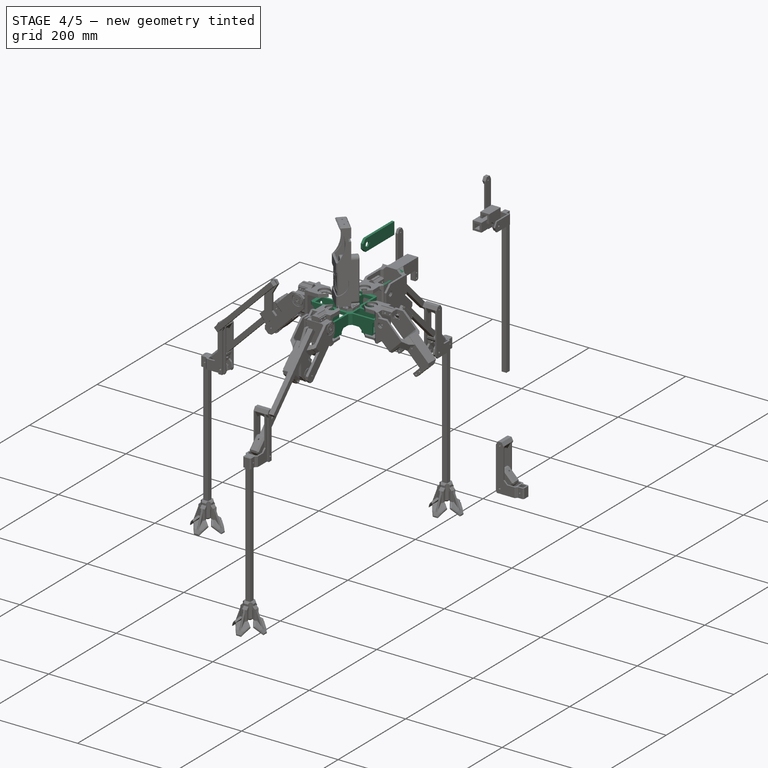
[diagram: stage 4 of 5 — iso view after this stage's code; geometry added in this stage tinted green]
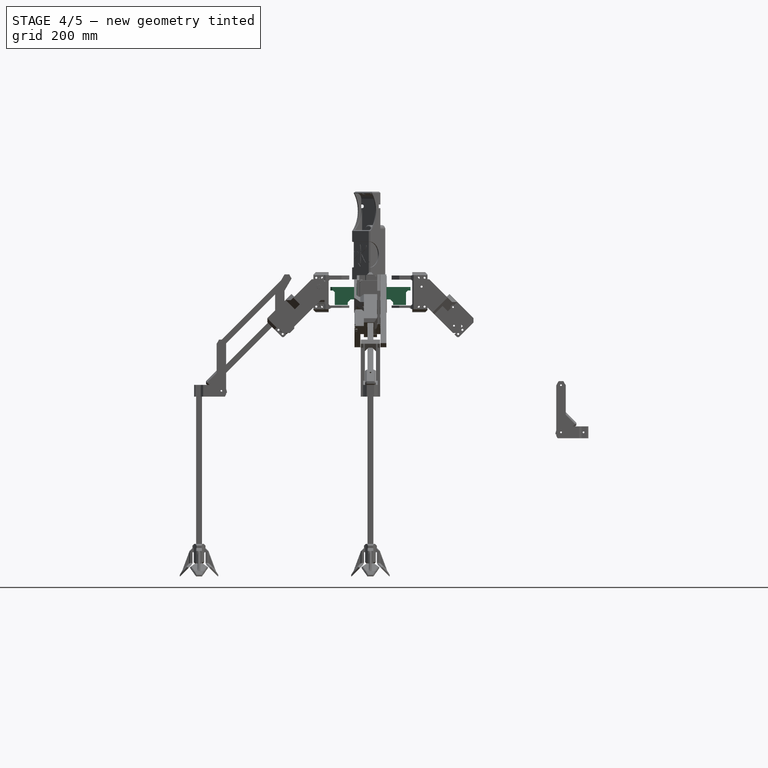
[diagram: stage 4 of 5 — front view after this stage's code; geometry added in this stage tinted green]
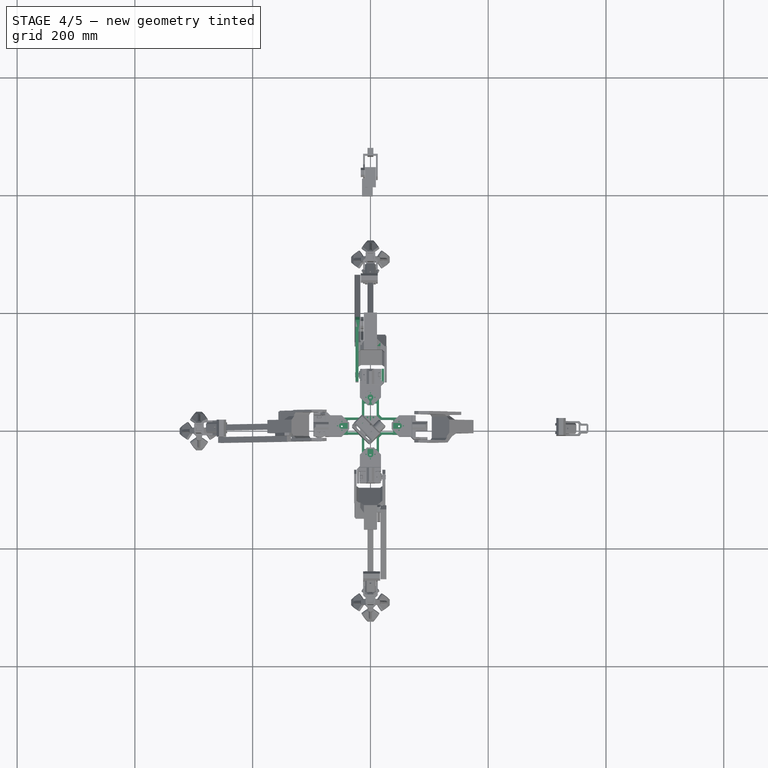
[diagram: stage 4 of 5 — top view after this stage's code; geometry added in this stage tinted green]
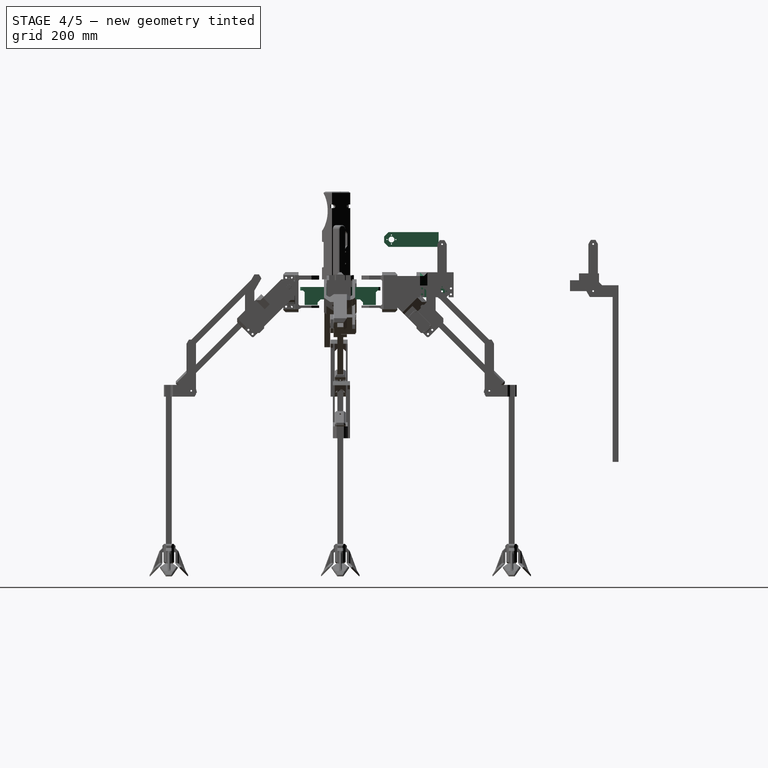
[diagram: stage 4 of 5 — right view after this stage's code; geometry added in this stage tinted green]
FEATURE [Part::Feature] Pocket001
  shape: bbox 136 x 136 x 30.5 mm, 54 faces (baked)
FEATURE [PartDesign::Chamfer] Chamfer001
  Base = -> Pocket001 [Edge69,Edge70,Edge100,Edge99,Edge33,Edge32,Edge37,Edge39,Edge76,Edge75,Edge93,Edge94,Edge73,Edge101,Edge102,Edge72]
  Size = 3
FEATURE [Part::Feature] Pocket002002001  label="Pocket002003"
  shape: bbox 46 x 61 x 58 mm, 113 faces (baked)
FEATURE [Part::Feature] Part__Feature002  label="Servo-Futaba3003-final001"
  Placement = pos=(39,0,-22.8) rot=(0,0,1;0rad)
  shape: bbox 55.5 x 20 x 41.74 mm, 365 faces (baked)
FEATURE [Sketcher::SketchObject] Sketch008
  ExternalGeometry = -> [Pocket002002001]
  Placement = pos=(0,70.95,0) rot=(1,0,0;1.5708rad)
  Support = -> Pocket002002001 [Face93]
  sketch-geometry (4):
    g0: LineSegment StartX=-96.6793 StartY=53.5034 StartZ=0 EndX=-18 EndY=53.5034 EndZ=0
    g1: LineSegment StartX=-18 StartY=53.5034 StartZ=0 EndX=-18 EndY=-96.1821 EndZ=0
    g2: LineSegment StartX=-18 StartY=-96.1821 StartZ=0 EndX=-96.6793 EndY=-96.1821 EndZ=0
    g3: LineSegment StartX=-96.6793 StartY=-96.1821 StartZ=0 EndX=-96.6793 EndY=53.5034 EndZ=0
  constraints (9):
    c: Coincident(g0,g1)
    c: Coincident(g1,g2)
    c: Coincident(g2,g3)
    c: Coincident(g3,g0)
    c: Horizontal(g0)
    c: Horizontal(g2)
    c: Vertical(g1)
    c: Vertical(g3)
    c: PointOnObject(g-3,g1)
FEATURE [PartDesign::Pocket] Pocket002002002
  Length = 50
  Sketch = -> Sketch008
  Type = 0
FEATURE [Sketcher::SketchObject] Sketch009
  ExternalGeometry = -> [Pocket002002002]
  Placement = pos=(0,96.95,0) rot=(0,0.707107,0.707107;3.14159rad)
  Support = -> Pocket002002002 [Face28]
  sketch-geometry (4):
    g0: LineSegment StartX=7.49 StartY=48.9889 StartZ=0 EndX=44.7787 EndY=48.9889 EndZ=0
    g1: LineSegment StartX=44.7787 StartY=48.9889 StartZ=0 EndX=44.7787 EndY=-42.5767 EndZ=0
    g2: LineSegment StartX=44.7787 StartY=-42.5767 StartZ=0 EndX=7.49 EndY=-42.5767 EndZ=0
    g3: LineSegment StartX=7.49 StartY=-42.5767 StartZ=0 EndX=7.49 EndY=48.9889 EndZ=0
  constraints (9):
    c: Coincident(g0,g1)
    c: Coincident(g1,g2)
    c: Coincident(g2,g3)
    c: Coincident(g3,g0)
    c: Horizontal(g0)
    c: Horizontal(g2)
    c: Vertical(g1)
    c: Vertical(g3)
    c: PointOnObject(g-3,g3)
FEATURE [PartDesign::Pocket] Pocket002002003
  Length = 20
  Sketch = -> Sketch009
  Type = 0
FEATURE [Sketcher::SketchObject] Sketch010
  ExternalGeometry = -> [Pocket002002003]
  Placement = pos=(0,96.95,0) rot=(0,0.707107,0.707107;3.14159rad)
  Support = -> Pocket002002003 [Face28]
  sketch-geometry (4):
    g0: LineSegment StartX=-19.01 StartY=24.2482 StartZ=0 EndX=1.49 EndY=24.2482 EndZ=0
    g1: LineSegment StartX=1.49 StartY=24.2482 StartZ=0 EndX=1.49 EndY=-43.0158 EndZ=0
    g2: LineSegment StartX=1.49 StartY=-43.0158 StartZ=0 EndX=-19.01 EndY=-43.0158 EndZ=0
    g3: LineSegment StartX=-19.01 StartY=-43.0158 StartZ=0 EndX=-19.01 EndY=24.2482 EndZ=0
  constraints (10):
    c: Coincident(g0,g1)
    c: Coincident(g1,g2)
    c: Coincident(g2,g3)
    c: Horizontal(g0)
    c: Horizontal(g2)
    c: Vertical(g1)
    c: Vertical(g3)
    c: DistanceX(g0,g-4) = 6
    c: Coincident(g0,g3)
    c: Distance(g0) = 20.5
FEATURE [PartDesign::Pocket] Pocket002002004
  Length = 20
  Sketch = -> Sketch010
  Type = 0
FEATURE [Part::Feature] Pocket002002009001  label="Pocket002002010"
  shape: bbox 53 x 118 x 36 mm, 60 faces (baked)
FEATURE [Sketcher::SketchObject] Sketch018
  ExternalGeometry = -> [Pocket002002009001]
  Placement = pos=(0,135.4,0) rot=(0,0.707107,0.707107;3.14159rad)
  Support = -> Pocket002002009001 [Face58]
  sketch-geometry (10):
    g0: LineSegment StartX=11.2 StartY=5.6 StartZ=0 EndX=11.2 EndY=28 EndZ=0
    g1: LineSegment StartX=11.2 StartY=28 StartZ=0 EndX=-11.2 EndY=28 EndZ=0
    g2: LineSegment StartX=-11.2 StartY=28 StartZ=0 EndX=-11.2 EndY=5.6 EndZ=0
    g3: LineSegment StartX=-11.2 StartY=5.6 StartZ=0 EndX=11.2 EndY=5.6 EndZ=0
    g4: Circle [constr] CenterX=0 CenterY=16.8 CenterZ=0 NormalX=0 NormalY=0 NormalZ=1 Radius=15.8392
    g5: LineSegment StartX=5.2 StartY=11.6 StartZ=0 EndX=5.2 EndY=22 EndZ=0
    g6: LineSegment StartX=5.2 StartY=22 StartZ=0 EndX=-5.2 EndY=22 EndZ=0
    g7: LineSegment StartX=-5.2 StartY=22 StartZ=0 EndX=-5.2 EndY=11.6 EndZ=0
    g8: LineSegment StartX=-5.2 StartY=11.6 StartZ=0 EndX=5.2 EndY=11.6 EndZ=0
    g9: Circle [constr] CenterX=0 CenterY=16.8 CenterZ=0 NormalX=0 NormalY=0 NormalZ=1 Radius=7.35391
  constraints (29):
    c: Coincident(g0,g1)
    c: Coincident(g1,g2)
    c: Coincident(g2,g3)
    c: Coincident(g3,g0)
    c: Equal(g0,g1)
    c: Equal(g0,g2)
    c: Equal(g0,g3)
    c: PointOnObject(g0,g4)
    c: PointOnObject(g1,g4)
    c: PointOnObject(g2,g4)
    c: PointOnObject(g3,g4)
    c: PointOnObject(g4,g-2)
    c: Horizontal(g3)
    c: Coincident(g5,g6)
    c: Coincident(g6,g7)
    c: Coincident(g7,g8)
    c: Coincident(g8,g5)
    c: Equal(g5,g6)
    c: Equal(g5,g7)
    c: Equal(g5,g8)
    c: PointOnObject(g5,g9)
    c: PointOnObject(g6,g9)
    c: PointOnObject(g7,g9)
    c: PointOnObject(g8,g9)
    c: Coincident(g9,g4)
    c: Horizontal(g8)
    c: Distance(g5) = 10.4
    c: Distance(g5,g0) = 6
    c: PointOnObject(g-4,g3)
FEATURE [PartDesign::Pad] Pad001007002
  Length = 57
  Length2 = 100
  Sketch = -> Sketch018
  Type = 0
FEATURE [PartDesign::Chamfer] Chamfer002003
  Base = -> Chamfer002002 [Edge3,Edge95]
  Size = 4
FEATURE [PartDesign::Chamfer] Chamfer002004
  Base = -> Chamfer002003 [Edge64,Edge55]
  Size = 4
FEATURE [PartDesign::Chamfer] Chamfer002005
  Base = -> Chamfer002004 [Edge8]
  Size = 6
FEATURE [Sketcher::SketchObject] Sketch021
  ExternalGeometry = -> [Chamfer002005]
  Placement = pos=(0,0,21.6) rot=(0,0,1;0rad)
  Support = -> Chamfer002005 [Face26]
  sketch-geometry (3):
    g0: LineSegment StartX=11.2 StartY=147.92 StartZ=0 EndX=11.2 EndY=135.4 EndZ=0
    g1: LineSegment StartX=11.2 StartY=135.4 StartZ=0 EndX=23.72 EndY=135.4 EndZ=0
    g2: LineSegment StartX=23.72 StartY=135.4 StartZ=0 EndX=11.2 EndY=147.92 EndZ=0
  constraints (8):
    c: Vertical(g0)
    c: Coincident(g0,g1)
    c: Horizontal(g1)
    c: Coincident(g1,g2)
    c: Coincident(g2,g0)
    c: Coincident(g0,g-4)
    c: Coincident(g1,g-4)
    c: Tangent(g-5,g2)
FEATURE [PartDesign::Pad] Pad001007004002
  Length = 16
  Length2 = 100
  Reversed = true
  Sketch = -> Sketch021
  Type = 3
  UpToFace = -> Chamfer002005 [Face21]
FEATURE [PartDesign::Chamfer] Chamfer002006
  Base = -> Pad001007004002 [Edge99]
  Size = 6
FEATURE [PartDesign::Chamfer] Chamfer002007
  Base = -> Chamfer002006 [Edge52,Edge46]
  Size = 5
FEATURE [PartDesign::Chamfer] Chamfer002008
  Base = -> Chamfer002007 [Edge26]
  Size = 2
FEATURE [Sketcher::SketchObject] Sketch022
  ExternalGeometry = -> [Pocket002002004]
  Placement = pos=(-18,0,0) rot=(-0.57735,0.57735,0.57735;4.18879rad)
  Support = -> Pocket002002004 [Face10]
  sketch-geometry (6):
    g0: LineSegment StartX=-70.95 StartY=-34.9 StartZ=0 EndX=-70.95 EndY=-32.41 EndZ=0
    g1: LineSegment StartX=-70.95 StartY=-32.41 StartZ=0 EndX=-65.95 EndY=-32.41 EndZ=0
    g2: LineSegment StartX=-65.95 StartY=-32.41 StartZ=0 EndX=-70.95 EndY=-34.9 EndZ=0
    g3: LineSegment StartX=-70.95 StartY=23.1 StartZ=0 EndX=-70.95 EndY=20.59 EndZ=0
    g4: LineSegment StartX=-70.95 StartY=20.59 StartZ=0 EndX=-65.95 EndY=20.59 EndZ=0
    g5: LineSegment StartX=-65.95 StartY=20.59 StartZ=0 EndX=-70.95 EndY=23.1 EndZ=0
  constraints (15):
    c: Coincident(g0,g1)
    c: Horizontal(g1)
    c: Coincident(g1,g2)
    c: Coincident(g2,g0)
    c: Vertical(g3)
    c: Coincident(g3,g4)
    c: Horizontal(g4)
    c: Coincident(g4,g5)
    c: Coincident(g5,g3)
    c: Coincident(g-4,g3)
    c: Coincident(g3,g-4)
    c: Coincident(g-6,g0)
    c: Coincident(g-5,g0)
    c: Distance(g4,g3) = 5
    c: Distance(g1,g0) = 5
FEATURE [PartDesign::Pad] Pad001007004003
  Length = 36
  Length2 = 100
  Reversed = true
  Sketch = -> Sketch022
  Type = 0
FEATURE [PartDesign::Chamfer] Chamfer002009
  Base = -> Pad001007004003 [Edge26,Edge42,Edge45]
  Size = 2.5
FEATURE [PartDesign::Chamfer] Chamfer002010
  Base = -> Chamfer002009 [Edge6,Edge30]
  Size = 2
FEATURE [Sketcher::SketchObject] Sketch023
  ExternalGeometry = -> [Chamfer001]
  Placement = pos=(0,0,-3) rot=(1,0,0;3.14159rad)
  Support = -> Chamfer001 [Face41]
  sketch-geometry (24):
    g0: LineSegment StartX=10.5 StartY=-10.5 StartZ=0 EndX=38.5 EndY=-10.5 EndZ=0
    g1: LineSegment StartX=38.5 StartY=-10.5 StartZ=0 EndX=38.5 EndY=-14.5 EndZ=0
    g2: LineSegment StartX=38.5 StartY=-14.5 StartZ=0 EndX=14.5 EndY=-14.5 EndZ=0
    g3: LineSegment StartX=14.5 StartY=-14.5 StartZ=0 EndX=14.5 EndY=-38.5 EndZ=0
    g4: LineSegment StartX=14.5 StartY=-38.5 StartZ=0 EndX=10.5 EndY=-38.5 EndZ=0
    g5: LineSegment StartX=10.5 StartY=-38.5 StartZ=0 EndX=10.5 EndY=-10.5 EndZ=0
    g6: LineSegment StartX=10.5 StartY=38.5 StartZ=0 EndX=10.5 EndY=10.5 EndZ=0
    g7: LineSegment StartX=10.5 StartY=10.5 StartZ=0 EndX=38.5 EndY=10.5 EndZ=0
    g8: LineSegment StartX=38.5 StartY=10.5 StartZ=0 EndX=38.5 EndY=14.5 EndZ=0
    g9: LineSegment StartX=38.5 StartY=14.5 StartZ=0 EndX=14.5 EndY=14.5 EndZ=0
    g10: LineSegment StartX=14.5 StartY=14.5 StartZ=0 EndX=14.5 EndY=38.5 EndZ=0
    g11: LineSegment StartX=14.5 StartY=38.5 StartZ=0 EndX=10.5 EndY=38.5 EndZ=0
    g12: LineSegment StartX=-10.5 StartY=38.5 StartZ=0 EndX=-10.5 EndY=10.5 EndZ=0
    g13: LineSegment StartX=-10.5 StartY=10.5 StartZ=0 EndX=-38.5 EndY=10.5 EndZ=0
    g14: LineSegment StartX=-38.5 StartY=10.5 StartZ=0 EndX=-38.5 EndY=14.5 EndZ=0
    g15: LineSegment StartX=-38.5 StartY=14.5 StartZ=0 EndX=-14.5 EndY=14.5 EndZ=0
    g16: LineSegment StartX=-14.5 StartY=14.5 StartZ=0 EndX=-14.5 EndY=38.5 EndZ=0
    g17: LineSegment StartX=-14.5 StartY=38.5 StartZ=0 EndX=-10.5 EndY=38.5 EndZ=0
    g18: LineSegment StartX=-10.5 StartY=-10.5 StartZ=0 EndX=-38.5 EndY=-10.5 EndZ=0
    g19: LineSegment StartX=-38.5 StartY=-10.5 StartZ=0 EndX=-38.5 EndY=-14.5 EndZ=0
    g20: LineSegment StartX=-38.5 StartY=-14.5 StartZ=0 EndX=-14.5 EndY=-14.5 EndZ=0
    g21: LineSegment StartX=-14.5 StartY=-14.5 StartZ=0 EndX=-14.5 EndY=-38.5 EndZ=0
    g22: LineSegment StartX=-14.5 StartY=-38.5 StartZ=0 EndX=-10.5 EndY=-38.5 EndZ=0
    g23: LineSegment StartX=-10.5 StartY=-38.5 StartZ=0 EndX=-10.5 EndY=-10.5 EndZ=0
  constraints (68):
    c: Horizontal(g0)
    c: Coincident(g0,g1)
    c: Vertical(g1)
    c: Coincident(g1,g2)
    c: Horizontal(g2)
    c: Coincident(g2,g3)
    c: Vertical(g3)
    c: Coincident(g3,g4)
    c: Horizontal(g4)
    c: Coincident(g4,g5)
    c: Vertical(g5)
    c: Coincident(g0,g5)
    c: Vertical(g6)
    c: Coincident(g6,g7)
    c: Horizontal(g7)
    c: Coincident(g7,g8)
    c: Vertical(g8)
    c: Coincident(g8,g9)
    c: Horizontal(g9)
    c: Coincident(g9,g10)
    c: Coincident(g10,g11)
    c: Coincident(g11,g6)
    c: Coincident(g12,g13)
    c: Coincident(g13,g14)
    c: Coincident(g14,g15)
    c: Coincident(g15,g16)
    c: Coincident(g16,g17)
    c: Coincident(g17,g12)
    c: Coincident(g18,g19)
    c: Coincident(g19,g20)
    c: Coincident(g20,g21)
    c: Coincident(g21,g22)
    c: Coincident(g22,g23)
    c: Coincident(g23,g18)
    c: Vertical(g23)
    c: Horizontal(g18)
    c: Horizontal(g22)
    c: Horizontal(g20)
    c: Horizontal(g13)
    c: Horizontal(g15)
    c: Horizontal(g17)
    c: Horizontal(g11)
    c: Vertical(g19)
    c: Vertical(g21)
    c: Vertical(g14)
    c: Vertical(g16)
    c: Vertical(g12)
    c: Vertical(g10)
    c: Equal(g8,g11)
    c: Equal(g11,g17)
    c: Equal(g17,g14)
    c: Equal(g14,g19)
    c: Equal(g19,g22)
    c: Equal(g22,g4)
    c: Equal(g4,g1)
    c: Equal(g5,g23)
    c: Equal(g23,g18)
    c: Equal(g18,g0)
    c: Equal(g0,g7)
    c: Equal(g7,g6)
    c: Equal(g6,g12)
    c: Equal(g12,g13)
    c: Symmetric(g18,g12,g-1)
    c: Symmetric(g0,g6,g-1)
    c: Symmetric(g6,g12,g-2)
    c: Coincident(g15,g-10)
    c: Coincident(g16,g-10)
    c: Distance(g1) = 4
FEATURE [PartDesign::Pad] Pad001007004004
  Length = 15
  Length2 = 100
  Sketch = -> Sketch023
  Type = 0
FEATURE [Part::Feature] Pad001007004004001  label="Pad001007004005"
  shape: bbox 136 x 136 x 30.5 mm, 74 faces (baked)
FEATURE [PartDesign::Chamfer] Chamfer002011
  Base = -> Pad001007004004001 [Edge251,Edge249,Edge252,Edge250]
  Size = 7
FEATURE [PartDesign::Chamfer] Chamfer002012
  Base = -> Chamfer002011 [Edge179,Edge187,Edge208,Edge209]
  Size = 5
FEATURE [Sketcher::SketchObject] Sketch024
  Placement = pos=(0,0,3) rot=(0,0,1;0rad)
  Support = -> Chamfer002012 [Face10]
  sketch-geometry (16):
    g0: Circle CenterX=5.05 CenterY=-63.4 CenterZ=0 NormalX=0 NormalY=0 NormalZ=1 Radius=1.5
    g1: Circle CenterX=-5.05 CenterY=-63.4 CenterZ=0 NormalX=0 NormalY=0 NormalZ=1 Radius=1.5
    g2: Circle CenterX=5.05 CenterY=-14.5 CenterZ=0 NormalX=0 NormalY=0 NormalZ=1 Radius=1.5
    g3: Circle CenterX=-5.05 CenterY=-14.5 CenterZ=0 NormalX=0 NormalY=0 NormalZ=1 Radius=1.5
    g4: Circle CenterX=63.4 CenterY=-5.05 CenterZ=0 NormalX=0 NormalY=0 NormalZ=1 Radius=1.5
    g5: Circle CenterX=63.4 CenterY=5.05 CenterZ=0 NormalX=0 NormalY=0 NormalZ=1 Radius=1.5
    g6: Circle CenterX=14.5 CenterY=5.05 CenterZ=0 NormalX=0 NormalY=0 NormalZ=1 Radius=1.5
    g7: Circle CenterX=14.5 CenterY=-5.05 CenterZ=0 NormalX=0 NormalY=0 NormalZ=1 Radius=1.5
    g8: Circle CenterX=-14.5 CenterY=5.05 CenterZ=0 NormalX=0 NormalY=0 NormalZ=1 Radius=1.5
    g9: Circle CenterX=-14.5 CenterY=-5.05 CenterZ=0 NormalX=0 NormalY=0 NormalZ=1 Radius=1.5
    g10: Circle CenterX=-63.4 CenterY=-5.05 CenterZ=0 NormalX=0 NormalY=0 NormalZ=1 Radius=1.5
    g11: Circle CenterX=-63.4 CenterY=5.05 CenterZ=0 NormalX=0 NormalY=0 NormalZ=1 Radius=1.5
    g12: Circle CenterX=5.05 CenterY=14.5 CenterZ=0 NormalX=0 NormalY=0 NormalZ=1 Radius=1.5
    g13: Circle CenterX=-5.05 CenterY=14.5 CenterZ=0 NormalX=0 NormalY=0 NormalZ=1 Radius=1.5
    g14: Circle CenterX=-5.05 CenterY=63.4 CenterZ=0 NormalX=0 NormalY=0 NormalZ=1 Radius=1.5
    g15: Circle CenterX=5.05 CenterY=63.4 CenterZ=0 NormalX=0 NormalY=0 NormalZ=1 Radius=1.5
  constraints (36):
    c: DistanceY(g0) = -63.4
    c: DistanceX(g0) = 5.05
    c: Radius(g0) = 1.5
    c: Symmetric(g0,g1,g-2)
    c: DistanceY(g2) = -14.5
    c: Symmetric(g3,g2,g-2)
    c: Equal(g3,g2)
    c: Equal(g2,g1)
    c: Equal(g1,g0)
    c: Symmetric(g7,g6,g-1)
    c: Symmetric(g5,g4,g-1)
    c: Equal(g6,g7)
    c: Equal(g7,g4)
    c: Equal(g4,g5)
    c: Equal(g5,g2)
    c: DistanceY(g6) = 5.05
    c: DistanceX(g2) = 5.05
    c: DistanceY(g5) = 5.05
    c: DistanceX(g5) = 63.4
    c: DistanceX(g6) = 14.5
    c: Equal(g11,g8)
    c: Equal(g8,g9)
    c: Equal(g9,g10)
    c: Equal(g10,g3)
    c: Symmetric(g9,g7,g-2)
    c: Symmetric(g8,g6,g-2)
    c: Symmetric(g11,g5,g-2)
    c: Symmetric(g10,g4,g-2)
    c: Equal(g12,g13)
    c: Equal(g13,g14)
    c: Equal(g14,g15)
    c: Equal(g15,g5)
    c: Symmetric(g13,g3,g-1)
    c: Symmetric(g12,g2,g-1)
    c: Symmetric(g14,g1,g-1)
    c: Symmetric(g15,g0,g-1)
FEATURE [PartDesign::Pocket] Pocket002002009002
  Length = 10
  Sketch = -> Sketch024
  Type = 0
FEATURE [PartDesign::Chamfer] Chamfer002013
  Base = -> Pocket002002009002 [Edge15,Edge119,Edge232,Edge219,Edge210,Edge197,Edge30,Edge154]
  Size = 2
FEATURE [PartDesign::Chamfer] Chamfer002014
  Base = -> Chamfer002013 [Edge302,Edge312,Edge286,Edge112,Edge24,Edge135,Edge18,Edge12]
  Size = 5
FEATURE [PartDesign::Chamfer] Chamfer002015
  Base = -> Chamfer002014 [Edge315,Edge135,Edge299,Edge316]
  Size = 2
FEATURE [Part::Feature] Pocket002002009003001  label="Pocket002002009004"
  Placement = pos=(0,0,80) rot=(0,0,1;0rad)
  shape: bbox 53 x 61 x 36 mm, 24 faces (baked)
FEATURE [Sketcher::SketchObject] Sketch025
  ExternalGeometry = -> [Pocket002002009003001]
  Placement = pos=(0,0,101.6) rot=(0,0,1;0rad)
  Support = -> Pocket002002009003001 [Face4]
  sketch-geometry (4):
    g0: LineSegment StartX=-20.28 StartY=161.163 StartZ=0 EndX=101.921 EndY=161.163 EndZ=0
    g1: LineSegment StartX=101.921 StartY=161.163 StartZ=0 EndX=101.921 EndY=26.5296 EndZ=0
    g2: LineSegment StartX=101.921 StartY=26.5296 StartZ=0 EndX=-20.28 EndY=26.5296 EndZ=0
    g3: LineSegment StartX=-20.28 StartY=26.5296 StartZ=0 EndX=-20.28 EndY=161.163 EndZ=0
  constraints (9):
    c: Coincident(g0,g1)
    c: Coincident(g1,g2)
    c: Coincident(g2,g3)
    c: Coincident(g3,g0)
    c: Horizontal(g0)
    c: Horizontal(g2)
    c: Vertical(g1)
    c: Vertical(g3)
    c: PointOnObject(g-3,g3)
FEATURE [PartDesign::Pocket] Pocket002002009003002
  Length = 50
  Placement = pos=(0,0,80) rot=(0,0,1;0rad)
  Sketch = -> Sketch025
  Type = 0
FEATURE [Sketcher::SketchObject] Sketch026
  ExternalGeometry = -> [Pocket002002009003002]
  Placement = pos=(-25.28,0,80) rot=(0.57735,-0.57735,-0.57735;2.0944rad)
  Support = -> Pocket002002009003002 [Face4]
  sketch-geometry (9):
    g0: Circle [constr] CenterX=-86.9 CenterY=3.6 CenterZ=0 NormalX=0 NormalY=0 NormalZ=1 Radius=12.5
    g1: LineSegment StartX=-138.156 StartY=27.3933 StartZ=0 EndX=-57.6463 EndY=27.3933 EndZ=0
    g2: LineSegment StartX=-57.6463 StartY=27.3933 StartZ=0 EndX=-57.6463 EndY=16.1 EndZ=0
    g3: LineSegment StartX=-57.6463 StartY=16.1 StartZ=0 EndX=-138.156 EndY=16.1 EndZ=0
    g4: LineSegment StartX=-138.156 StartY=16.1 StartZ=0 EndX=-138.156 EndY=27.3933 EndZ=0
    g5: LineSegment StartX=-63.4998 StartY=-28.359 StartZ=0 EndX=-139.212 EndY=-28.359 EndZ=0
    g6: LineSegment StartX=-139.212 StartY=-28.359 StartZ=0 EndX=-139.212 EndY=-8.9 EndZ=0
    g7: LineSegment StartX=-139.212 StartY=-8.9 StartZ=0 EndX=-63.4998 EndY=-8.9 EndZ=0
    g8: LineSegment StartX=-63.4998 StartY=-8.9 StartZ=0 EndX=-63.4998 EndY=-28.359 EndZ=0
  constraints (20):
    c: Coincident(g0,g-3)
    c: Tangent(g0,g-4)
    c: Coincident(g1,g2)
    c: Coincident(g2,g3)
    c: Coincident(g3,g4)
    c: Coincident(g4,g1)
    c: Horizontal(g1)
    c: Horizontal(g3)
    c: Vertical(g2)
    c: Vertical(g4)
    c: Coincident(g5,g6)
    c: Coincident(g6,g7)
    c: Coincident(g7,g8)
    c: Coincident(g8,g5)
    c: Horizontal(g5)
    c: Horizontal(g7)
    c: Vertical(g6)
    c: Vertical(g8)
    c: Tangent(g7,g0)
    c: Tangent(g3,g0)
FEATURE [PartDesign::Pocket] Pocket002002009003003
  Length = 5
  Placement = pos=(0,0,80) rot=(0,0,1;0rad)
  Sketch = -> Sketch026
  Type = 0
FEATURE [Sketcher::SketchObject] Sketch027
  ExternalGeometry = -> [Pocket002002009003003]
  Placement = pos=(-25.28,0,80) rot=(0.57735,-0.57735,-0.57735;2.0944rad)
  Support = -> Pocket002002009003003 [Face6]
  sketch-geometry (4):
    g0: LineSegment StartX=-135.4 StartY=16.1 StartZ=0 EndX=-166.9 EndY=16.1 EndZ=0
    g1: LineSegment StartX=-166.9 StartY=16.1 StartZ=0 EndX=-166.9 EndY=-8.9 EndZ=0
    g2: LineSegment StartX=-166.9 StartY=-8.9 StartZ=0 EndX=-135.4 EndY=-8.9 EndZ=0
    g3: LineSegment StartX=-135.4 StartY=-8.9 StartZ=0 EndX=-135.4 EndY=16.1 EndZ=0
  constraints (11):
    c: Coincident(g0,g1)
    c: Coincident(g1,g2)
    c: Coincident(g2,g3)
    c: Coincident(g3,g0)
    c: Horizontal(g0)
    c: Horizontal(g2)
    c: Vertical(g1)
    c: Vertical(g3)
    c: Coincident(g0,g-4)
    c: Coincident(g2,g-4)
    c: Distance(g-3,g1) = 80
FEATURE [PartDesign::Pad] Pad001007004004002
  Length = 5
  Length2 = 100
  Placement = pos=(0,0,80) rot=(0,0,1;0rad)
  Reversed = true
  Sketch = -> Sketch027
  Type = 0
FEATURE [Part::Feature] Pad001007004004002001  label="Pad001007004004003"
  Placement = pos=(8.71,256.5,-91.25) rot=(1,0,0;1.5708rad)
  shape: bbox 5 x 25 x 92.5 mm, 15 faces (baked)
FEATURE [Sketcher::SketchObject] Sketch028
  ExternalGeometry = -> [Chamfer002008]
  Placement = pos=(0,0,-14.4) rot=(1,0,0;3.14159rad)
  Support = -> Chamfer002008 [Face24]
  sketch-geometry (6):
    g0: LineSegment StartX=-20.28 StartY=-125.4 StartZ=0 EndX=-25.28 EndY=-125.4 EndZ=0
    g1: LineSegment StartX=-25.28 StartY=-125.4 StartZ=0 EndX=-25.28 EndY=-185.4 EndZ=0
    g2: LineSegment StartX=-25.28 StartY=-185.4 StartZ=0 EndX=-18.28 EndY=-185.4 EndZ=0
    g3: LineSegment StartX=-18.28 StartY=-185.4 StartZ=0 EndX=-18.28 EndY=-160.4 EndZ=0
    g4: LineSegment StartX=-18.28 StartY=-160.4 StartZ=0 EndX=-20.28 EndY=-160.4 EndZ=0
    g5: LineSegment StartX=-20.28 StartY=-160.4 StartZ=0 EndX=-20.28 EndY=-125.4 EndZ=0
  constraints (17):
    c: Coincident(g-3,g0)
    c: PointOnObject(g0,g-4)
    c: Horizontal(g0)
    c: Coincident(g0,g1)
    c: Vertical(g1)
    c: Coincident(g1,g2)
    c: Horizontal(g2)
    c: Coincident(g2,g3)
    c: Vertical(g3)
    c: Coincident(g3,g4)
    c: Horizontal(g4)
    c: Coincident(g4,g5)
    c: Vertical(g5)
    c: Coincident(g0,g5)
    c: Distance(g2) = 7
    c: Distance(g1) = 60
    c: Distance(g3) = 25
FEATURE [PartDesign::Pad] Pad001007004004002002
  Length = 20
  Length2 = 100
  Reversed = true
  Sketch = -> Sketch028
  Type = 0
FEATURE [Sketcher::SketchObject] Sketch029
  ExternalGeometry = -> [Pad001007004004002002]
  Placement = pos=(-25.28,0,0) rot=(0.57735,-0.57735,-0.57735;2.0944rad)
  Support = -> Pad001007004004002002 [Face9]
  sketch-geometry (2):
    g0: Circle CenterX=-172.9 CenterY=-4.4 CenterZ=0 NormalX=0 NormalY=0 NormalZ=1 Radius=1.5
    g1: Circle [constr] CenterX=-172.9 CenterY=-4.4 CenterZ=0 NormalX=0 NormalY=0 NormalZ=1 Radius=10
  constraints (5):
    c: Coincident(g1,g0)
    c: Tangent(g1,g-3)
    c: Tangent(g1,g-4)
    c: Distance(g0,g-5) = 12.5
    c: Radius(g0) = 1.5
FEATURE [PartDesign::Pocket] Pocket002002009003004
  Length = 8
  Sketch = -> Sketch029
  Type = 0
FEATURE [PartDesign::Chamfer] Chamfer002016
  Base = -> Pocket002002009003004 [Edge19,Edge15]
  Size = 5
FEATURE [PartDesign::Chamfer] Chamfer002017
  Base = -> Chamfer002016 [Edge32]
  Size = 1
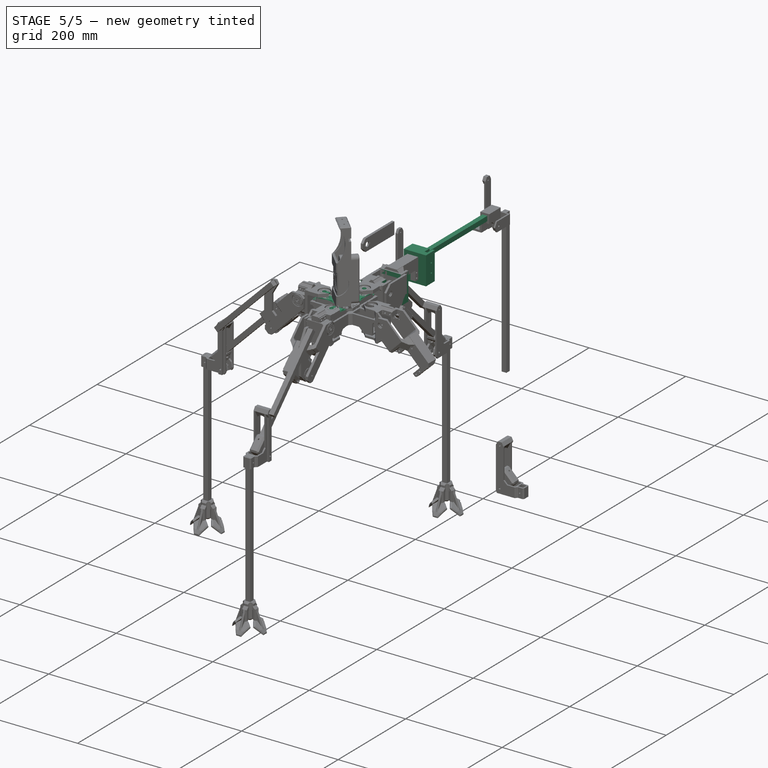
[diagram: stage 5 of 5 — iso view after this stage's code; geometry added in this stage tinted green]
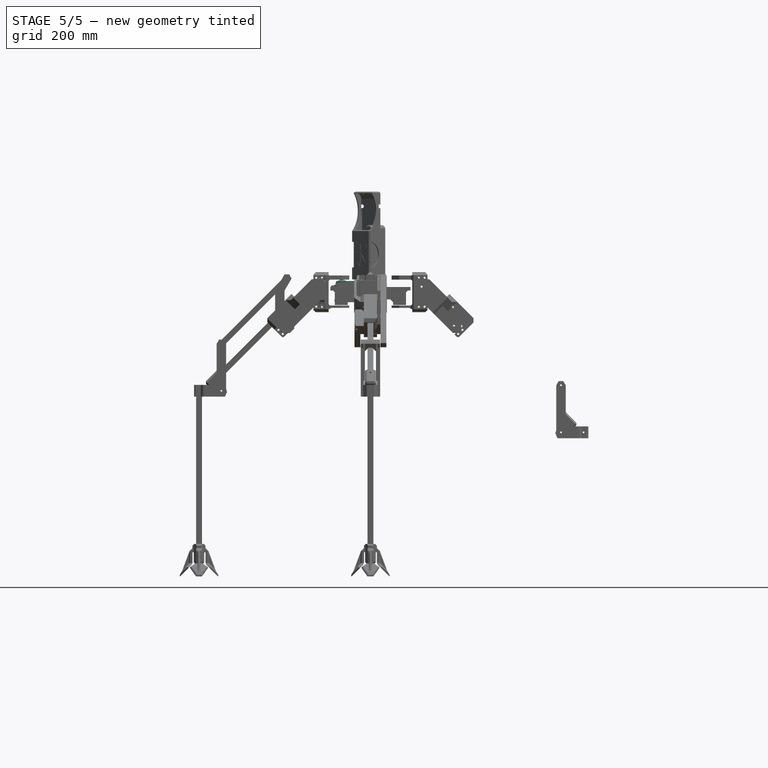
[diagram: stage 5 of 5 — front view after this stage's code; geometry added in this stage tinted green]
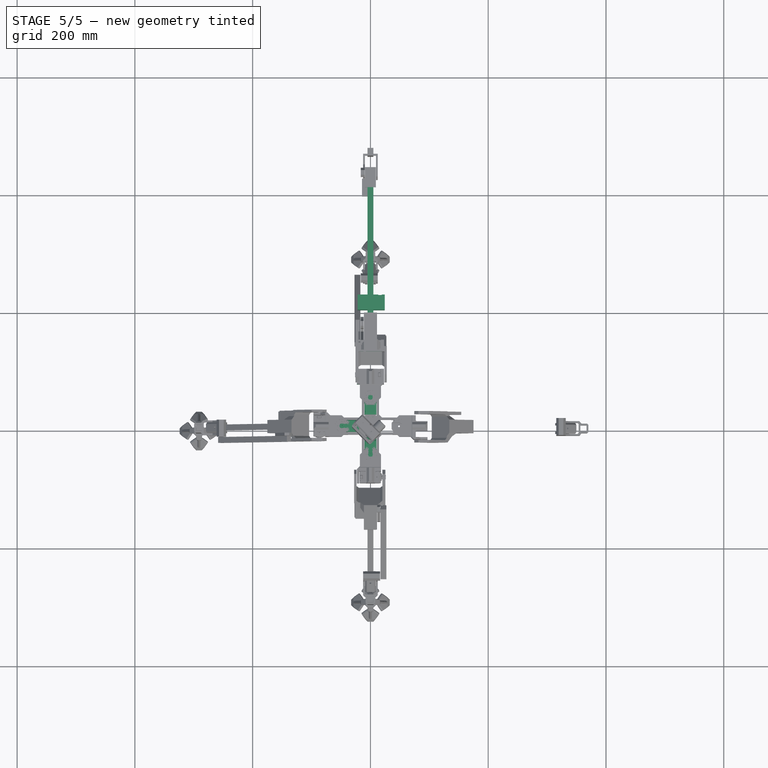
[diagram: stage 5 of 5 — top view after this stage's code; geometry added in this stage tinted green]
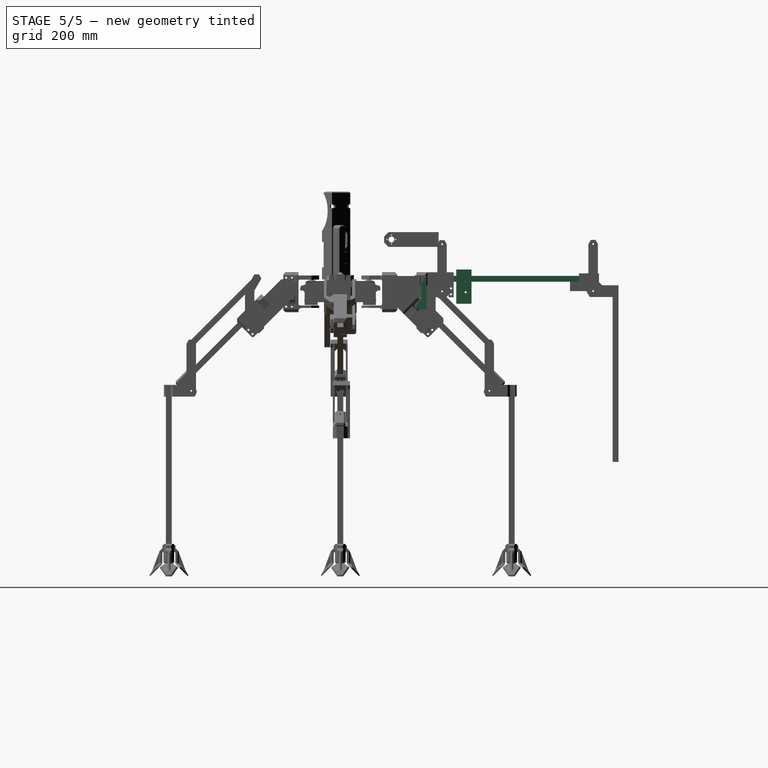
[diagram: stage 5 of 5 — right view after this stage's code; geometry added in this stage tinted green]
FEATURE [Sketcher::SketchObject] Sketch
  sketch-geometry (51):
    g0: LineSegment StartX=17.5 StartY=10.5 StartZ=0 EndX=60.5 EndY=10.5 EndZ=0
    g1: LineSegment StartX=60.5 StartY=10.5 StartZ=0 EndX=60.5 EndY=-10.5 EndZ=0
    g2: LineSegment StartX=60.5 StartY=-10.5 StartZ=0 EndX=17.5 EndY=-10.5 EndZ=0
    g3: LineSegment StartX=-10.5 StartY=17.5 StartZ=0 EndX=-10.5 EndY=60.5 EndZ=0
    g4: LineSegment StartX=-10.5 StartY=60.5 StartZ=0 EndX=10.5 EndY=60.5 EndZ=0
    g5: LineSegment StartX=10.5 StartY=60.5 StartZ=0 EndX=10.5 EndY=17.5 EndZ=0
    g6: LineSegment StartX=-60.5 StartY=10.5 StartZ=0 EndX=-17.5 EndY=10.5 EndZ=0
    g7: LineSegment StartX=-17.5 StartY=-10.5 StartZ=0 EndX=-60.5 EndY=-10.5 EndZ=0
    g8: LineSegment StartX=-60.5 StartY=-10.5 StartZ=0 EndX=-60.5 EndY=10.5 EndZ=0
    g9: LineSegment StartX=10.5 StartY=-17.5 StartZ=0 EndX=10.5 EndY=-60.5 EndZ=0
    g10: LineSegment StartX=10.5 StartY=-60.5 StartZ=0 EndX=-10.5 EndY=-60.5 EndZ=0
    g11: LineSegment StartX=-10.5 StartY=-60.5 StartZ=0 EndX=-10.5 EndY=-17.5 EndZ=0
    g12: LineSegment StartX=-17.5 StartY=-10.5 StartZ=0 EndX=-17.5 EndY=10.5 EndZ=0
    g13: LineSegment StartX=-10.5 StartY=17.5 StartZ=0 EndX=10.5 EndY=17.5 EndZ=0
    g14: LineSegment StartX=17.5 StartY=10.5 StartZ=0 EndX=17.5 EndY=-10.5 EndZ=0
    g15: LineSegment StartX=10.5 StartY=-17.5 StartZ=0 EndX=-10.5 EndY=-17.5 EndZ=0
    g16: Circle [constr] CenterX=0 CenterY=0 CenterZ=0 NormalX=0 NormalY=0 NormalZ=1 Radius=20.4083
    g17: Circle [constr] CenterX=50 CenterY=0 CenterZ=0 NormalX=0 NormalY=0 NormalZ=1 Radius=10.5
    g18: Circle [constr] CenterX=-50 CenterY=0 CenterZ=0 NormalX=0 NormalY=0 NormalZ=1 Radius=10.5
    g19: Circle [constr] CenterX=0 CenterY=50 CenterZ=0 NormalX=0 NormalY=0 NormalZ=1 Radius=10.5
    g20: Circle [constr] CenterX=0 CenterY=-50 CenterZ=0 NormalX=0 NormalY=0 NormalZ=1 Radius=10.5
    g21: LineSegment [constr] StartX=-27.5 StartY=-76 StartZ=0 EndX=27.5 EndY=-76 EndZ=0
    g22: LineSegment [constr] StartX=27.5 StartY=-76 StartZ=0 EndX=27.5 EndY=-132 EndZ=0
    g23: LineSegment [constr] StartX=27.5 StartY=-132 StartZ=0 EndX=-27.5 EndY=-132 EndZ=0
    g24: LineSegment [constr] StartX=-27.5 StartY=-132 StartZ=0 EndX=-27.5 EndY=-76 EndZ=0
    g25: ArcOfCircle [constr] CenterX=0 CenterY=-50 CenterZ=0 NormalX=0 NormalY=0 NormalZ=1 Radius=37.8451 StartAngle=3.89896 EndAngle=5.52582
    g26: Circle [constr] CenterX=0 CenterY=-50 CenterZ=0 NormalX=0 NormalY=0 NormalZ=1 Radius=26
    g27: ArcOfCircle [constr] CenterX=0 CenterY=-50 CenterZ=0 NormalX=0 NormalY=0 NormalZ=1 Radius=37.8451 StartAngle=4.68436 EndAngle=6.31122
    g28: LineSegment [constr] StartX=-1.06066 StartY=-87.8302 StartZ=0 EndX=37.8302 EndY=-48.9393 EndZ=0
    g29: LineSegment [constr] StartX=-10.5 StartY=-60.5 StartZ=0 EndX=10.5 EndY=-60.5 EndZ=0
    g30: LineSegment [constr] StartX=10.5 StartY=-60.5 StartZ=0 EndX=10.5 EndY=-68 EndZ=0
    g31: LineSegment [constr] StartX=10.5 StartY=-68 StartZ=0 EndX=-10.5 EndY=-68 EndZ=0
    g32: LineSegment [constr] StartX=-10.5 StartY=-68 StartZ=0 EndX=-10.5 EndY=-60.5 EndZ=0
    g33: ArcOfCircle [constr] CenterX=50 CenterY=0 CenterZ=0 NormalX=0 NormalY=0 NormalZ=1 Radius=37.8451 StartAngle=4.68436 EndAngle=6.31122
    g34: LineSegment [constr] StartX=48.9393 StartY=-37.8302 StartZ=0 EndX=87.8302 EndY=1.06066 EndZ=0
    g35: LineSegment [constr] StartX=10.5 StartY=-17.5 StartZ=0 EndX=17.5 EndY=-17.5 EndZ=0
    g36: LineSegment [constr] StartX=17.5 StartY=-17.5 StartZ=0 EndX=17.5 EndY=-68 EndZ=0
    g37: LineSegment [constr] StartX=17.5 StartY=-68 StartZ=0 EndX=10.5 EndY=-68 EndZ=0
    g38: LineSegment [constr] StartX=10.5 StartY=-68 StartZ=0 EndX=10.5 EndY=-17.5 EndZ=0
    g39: LineSegment StartX=-14.5 StartY=68 StartZ=0 EndX=14.5 EndY=68 EndZ=0
    g40: LineSegment StartX=14.5 StartY=68 StartZ=0 EndX=14.5 EndY=14.5 EndZ=0
    g41: LineSegment StartX=14.5 StartY=14.5 StartZ=0 EndX=68 EndY=14.5 EndZ=0
    g42: LineSegment StartX=68 StartY=14.5 StartZ=0 EndX=68 EndY=-14.5 EndZ=0
    g43: LineSegment StartX=68 StartY=-14.5 StartZ=0 EndX=14.5 EndY=-14.5 EndZ=0
    g44: LineSegment StartX=14.5 StartY=-14.5 StartZ=0 EndX=14.5 EndY=-68 EndZ=0
    g45: LineSegment StartX=14.5 StartY=-68 StartZ=0 EndX=-14.5 EndY=-68 EndZ=0
    g46: LineSegment StartX=-14.5 StartY=-68 StartZ=0 EndX=-14.5 EndY=-14.5 EndZ=0
    g47: LineSegment StartX=-14.5 StartY=-14.5 StartZ=0 EndX=-68 EndY=-14.5 EndZ=0
    g48: LineSegment StartX=-68 StartY=-14.5 StartZ=0 EndX=-68 EndY=14.5 EndZ=0
    g49: LineSegment StartX=-68 StartY=14.5 StartZ=0 EndX=-14.5 EndY=14.5 EndZ=0
    g50: LineSegment StartX=-14.5 StartY=14.5 StartZ=0 EndX=-14.5 EndY=68 EndZ=0
  constraints (145):
    c: Coincident(g0,g1)
    c: Coincident(g1,g2)
    c: Horizontal(g0)
    c: Horizontal(g2)
    c: Vertical(g1)
    c: Coincident(g3,g4)
    c: Coincident(g4,g5)
    c: Horizontal(g4)
    c: Vertical(g3)
    c: Vertical(g5)
    c: Coincident(g7,g8)
    c: Coincident(g8,g6)
    c: Horizontal(g6)
    c: Horizontal(g7)
    c: Vertical(g8)
    c: Coincident(g9,g10)
    c: Coincident(g10,g11)
    c: Horizontal(g10)
    c: Vertical(g9)
    c: Vertical(g11)
    c: Equal(g1,g4)
    c: Equal(g4,g8)
    c: Equal(g8,g10)
    c: Distance(g1) = 21
    c: Equal(g2,g9)
    c: Equal(g9,g7)
    c: Equal(g7,g3)
    c: Distance(g11) = 43
    c: Coincident(g12,g7)
    c: Vertical(g12)
    c: Coincident(g13,g3)
    c: Coincident(g13,g5)
    c: Horizontal(g13)
    c: Coincident(g14,g0)
    c: Coincident(g14,g2)
    c: Coincident(g15,g9)
    c: Coincident(g15,g11)
    c: Horizontal(g15)
    c: Vertical(g14)
    c: Symmetric(g9,g5,g-1)
    c: Symmetric(g2,g7,g-2)
    c: Coincident(g6,g12)
    c: Symmetric(g2,g0,g-1)
    c: Symmetric(g3,g5,g-2)
    c: Coincident(g16,g-1)
    c: PointOnObject(g11,g16)
    c: PointOnObject(g0,g16)
    c: PointOnObject(g17,g-1)
    c: PointOnObject(g18,g-1)
    c: PointOnObject(g19,g-2)
    c: PointOnObject(g20,g-2)
    c: Tangent(g17,g2)
    c: Tangent(g17,g1)
    c: Tangent(g18,g7)
    c: Tangent(g18,g8)
    c: Tangent(g19,g5)
    c: Tangent(g19,g4)
    c: Tangent(g20,g10)
    c: Tangent(g20,g9)
    c: Coincident(g21,g22)
    c: Coincident(g22,g23)
    c: Coincident(g23,g24)
    c: Coincident(g24,g21)
    c: Horizontal(g21)
    c: Horizontal(g23)
    c: Vertical(g22)
    c: Vertical(g24)
    c: Coincident(g25,g20)
    c: Coincident(g25,g21)
    c: Coincident(g25,g21)
    c: Coincident(g26,g20)
    c: Tangent(g26,g21)
    c: Radius(g26) = 26
    c: Distance(g21) = 55
    c: Coincident(g27,g20)
    c: Coincident(g28,g27)
    c: Coincident(g28,g27)
    c: Angle(g28) = 0.785398
    c: Distance(g28) = 55
    c: PointOnObject(g21,g27)
    c: Distance(g22) = 56
    c: Coincident(g29,g30)
    c: Coincident(g30,g31)
    c: Coincident(g31,g32)
    c: Coincident(g32,g29)
    c: Horizontal(g29)
    c: Horizontal(g31)
    c: Vertical(g30)
    c: Vertical(g32)
    c: Coincident(g10,g29)
    c: Coincident(g9,g29)
    c: Distance(g30) = 7.5
    c: Coincident(g33,g17)
    c: Coincident(g34,g33)
    c: Coincident(g34,g33)
    c: Equal(g33,g27)
    c: Equal(g28,g34)
    c: Angle(g34) = 0.785398
    c: DistanceX(g9,g2) = 7
    c: Coincident(g35,g36)
    c: Coincident(g36,g37)
    c: Coincident(g37,g38)
    c: Coincident(g38,g35)
    c: Horizontal(g35)
    c: Horizontal(g37)
    c: Vertical(g36)
    c: Vertical(g38)
    c: Coincident(g37,g30)
    c: Coincident(g35,g9)
    c: Distance(g35) = 7
    c: Horizontal(g39)
    c: Coincident(g39,g40)
    c: Vertical(g40)
    c: Coincident(g40,g41)
    c: Horizontal(g41)
    c: Coincident(g41,g42)
    c: Vertical(g42)
    c: Coincident(g42,g43)
    c: Horizontal(g43)
    c: Coincident(g43,g44)
    c: Vertical(g44)
    c: Coincident(g44,g45)
    c: Horizontal(g45)
    c: Coincident(g45,g46)
    c: Vertical(g46)
    c: Coincident(g46,g47)
    c: Horizontal(g47)
    c: Coincident(g47,g48)
    c: Vertical(g48)
    c: Coincident(g48,g49)
    c: Horizontal(g49)
    c: Coincident(g49,g50)
    c: Vertical(g50)
    c: Coincident(g39,g50)
    c: Distance(g4,g39) = 7.5
    c: Distance(g4,g40) = 4
    c: Distance(g3,g50) = 4
    c: Equal(g45,g42)
    c: Equal(g42,g48)
    c: Equal(g39,g48)
    c: Equal(g49,g40)
    c: Equal(g40,g41)
    c: Equal(g41,g44)
    c: Equal(g40,g50)
    c: Symmetric(g40,g43,g-1)
FEATURE [PartDesign::Pad] Pad
  Length = 6
  Length2 = 100
  Midplane = true
  Sketch = -> Sketch
  Type = 0
FEATURE [Part::Feature] Part__Feature  label="Servo-Futaba3003-final"
  Placement = pos=(18.31,86.9,-5.85) rot=(0,-1,0;1.5708rad)
  shape: bbox 41.74 x 20 x 55.5 mm, 365 faces (baked)
FEATURE [Part::FeaturePython] Clone  label="Clone of Servo-Futaba3003-final"  # Draft clone (typed FeaturePython)
  Objects = -> [Part__Feature]
  Placement = pos=(0,39,-22.8) rot=(0,0,1;1.5708rad)
  Scale = (1,1,1)
FEATURE [Part::FeaturePython] Clone001  label="Clone of Servo-Futaba3003-final001"  # Draft clone (typed FeaturePython)
  Objects = -> [Part__Feature]
  Placement = pos=(-39,0,-22.8) rot=(0,0,1;3.14159rad)
  Scale = (1,1,1)
FEATURE [Part::FeaturePython] Clone002  label="Clone of Servo-Futaba3003-final002"  # Draft clone (typed FeaturePython)
  Objects = -> [Part__Feature]
  Placement = pos=(0,-39,-22.8) rot=(0,0,-1;1.5708rad)
  Scale = (1,1,1)
FEATURE [Part::Feature] Part__Feature001  label="rounded-horn"
  Placement = pos=(48.45,0,15.29) rot=(0,0,1;0rad)
  shape: bbox 21 x 21 x 6.2 mm, 65 faces (baked)
FEATURE [Part::FeaturePython] Clone003  label="Clone of rounded-horn"  # Draft clone (typed FeaturePython)
  Objects = -> [Part__Feature001]
  Placement = pos=(0,48.45,15.29) rot=(0,0,1;1.5708rad)
  Scale = (1,1,1)
FEATURE [Part::FeaturePython] Clone004  label="Clone of rounded-horn001"  # Draft clone (typed FeaturePython)
  Objects = -> [Part__Feature001]
  Placement = pos=(-48.45,0,15.29) rot=(0,0,1;3.14159rad)
  Scale = (1,1,1)
FEATURE [Part::FeaturePython] Clone005  label="Clone of rounded-horn002"  # Draft clone (typed FeaturePython)
  Objects = -> [Part__Feature001]
  Placement = pos=(0,-48.45,15.29) rot=(0,0,-1;1.5708rad)
  Scale = (1,1,1)
FEATURE [Part::Feature] Pad001001  label="Pad002"
  Placement = pos=(178,126.45,6.59) rot=(-0.707107,0,0.707107;3.14159rad)
  shape: bbox 36 x 41 x 53 mm, 24 faces (baked)
FEATURE [PartDesign::Chamfer] Chamfer
  Base = -> Pad001001 [Edge11,Edge40]
  Placement = pos=(178,126.45,6.59) rot=(-0.707107,0,0.707107;3.14159rad)
  Size = 13
FEATURE [Sketcher::SketchObject] Sketch001
  ExternalGeometry = -> [Pad]
  Placement = pos=(0,0,-3) rot=(1,0,0;3.14159rad)
  Support = -> Pad [Face29]
  sketch-geometry (32):
    g0: LineSegment StartX=10.5 StartY=60.5 StartZ=0 EndX=14.5 EndY=60.5 EndZ=0
    g1: LineSegment StartX=14.5 StartY=60.5 StartZ=0 EndX=14.5 EndY=38.5 EndZ=0
    g2: LineSegment StartX=14.5 StartY=38.5 StartZ=0 EndX=10.5 EndY=38.5 EndZ=0
    g3: LineSegment StartX=10.5 StartY=38.5 StartZ=0 EndX=10.5 EndY=60.5 EndZ=0
    g4: LineSegment StartX=-10.5 StartY=60.5 StartZ=0 EndX=-14.5 EndY=60.5 EndZ=0
    g5: LineSegment StartX=-14.5 StartY=60.5 StartZ=0 EndX=-14.5 EndY=38.5 EndZ=0
    g6: LineSegment StartX=-14.5 StartY=38.5 StartZ=0 EndX=-10.5 EndY=38.5 EndZ=0
    g7: LineSegment StartX=-10.5 StartY=38.5 StartZ=0 EndX=-10.5 EndY=60.5 EndZ=0
    g8: LineSegment StartX=-14.5 StartY=-60.5 StartZ=0 EndX=-10.5 EndY=-60.5 EndZ=0
    g9: LineSegment StartX=-10.5 StartY=-60.5 StartZ=0 EndX=-10.5 EndY=-38.5 EndZ=0
    g10: LineSegment StartX=-10.5 StartY=-38.5 StartZ=0 EndX=-14.5 EndY=-38.5 EndZ=0
    g11: LineSegment StartX=-14.5 StartY=-38.5 StartZ=0 EndX=-14.5 EndY=-60.5 EndZ=0
    g12: LineSegment StartX=10.5 StartY=-60.5 StartZ=0 EndX=14.5 EndY=-60.5 EndZ=0
    g13: LineSegment StartX=14.5 StartY=-60.5 StartZ=0 EndX=14.5 EndY=-38.5 EndZ=0
    g14: LineSegment StartX=14.5 StartY=-38.5 StartZ=0 EndX=10.5 EndY=-38.5 EndZ=0
    g15: LineSegment StartX=10.5 StartY=-38.5 StartZ=0 EndX=10.5 EndY=-60.5 EndZ=0
    g16: LineSegment StartX=-60.5 StartY=14.5 StartZ=0 EndX=-38.5 EndY=14.5 EndZ=0
    g17: LineSegment StartX=-38.5 StartY=14.5 StartZ=0 EndX=-38.5 EndY=10.5 EndZ=0
    g18: LineSegment StartX=-38.5 StartY=10.5 StartZ=0 EndX=-60.5 EndY=10.5 EndZ=0
    g19: LineSegment StartX=-60.5 StartY=10.5 StartZ=0 EndX=-60.5 EndY=14.5 EndZ=0
    g20: LineSegment StartX=-60.5 StartY=-10.5 StartZ=0 EndX=-38.5 EndY=-10.5 EndZ=0
    g21: LineSegment StartX=-38.5 StartY=-10.5 StartZ=0 EndX=-38.5 EndY=-14.5 EndZ=0
    g22: LineSegment StartX=-38.5 StartY=-14.5 StartZ=0 EndX=-60.5 EndY=-14.5 EndZ=0
    g23: LineSegment StartX=-60.5 StartY=-14.5 StartZ=0 EndX=-60.5 EndY=-10.5 EndZ=0
    g24: LineSegment StartX=38.5 StartY=-10.5 StartZ=0 EndX=60.5 EndY=-10.5 EndZ=0
    g25: LineSegment StartX=60.5 StartY=-10.5 StartZ=0 EndX=60.5 EndY=-14.5 EndZ=0
    g26: LineSegment StartX=60.5 StartY=-14.5 StartZ=0 EndX=38.5 EndY=-14.5 EndZ=0
    g27: LineSegment StartX=38.5 StartY=-14.5 StartZ=0 EndX=38.5 EndY=-10.5 EndZ=0
    g28: LineSegment StartX=38.5 StartY=14.5 StartZ=0 EndX=60.5 EndY=14.5 EndZ=0
    g29: LineSegment StartX=60.5 StartY=14.5 StartZ=0 EndX=60.5 EndY=10.5 EndZ=0
    g30: LineSegment StartX=60.5 StartY=10.5 StartZ=0 EndX=38.5 EndY=10.5 EndZ=0
    g31: LineSegment StartX=38.5 StartY=10.5 StartZ=0 EndX=38.5 EndY=14.5 EndZ=0
  constraints (87):
    c: Coincident(g0,g1)
    c: Coincident(g1,g2)
    c: Coincident(g2,g3)
    c: Coincident(g3,g0)
    c: Horizontal(g0)
    c: Horizontal(g2)
    c: Vertical(g1)
    c: Vertical(g3)
    c: Coincident(g0,g-4)
    c: PointOnObject(g1,g-5)
    c: Coincident(g4,g5)
    c: Coincident(g5,g6)
    c: Coincident(g6,g7)
    c: Coincident(g7,g4)
    c: Horizontal(g4)
    c: Horizontal(g6)
    c: Vertical(g5)
    c: Vertical(g7)
    c: Coincident(g4,g-3)
    c: PointOnObject(g5,g-6)
    c: Distance(g1,g0) = 22
    c: Distance(g4,g5) = 22
    c: Coincident(g8,g9)
    c: Coincident(g9,g10)
    c: Coincident(g10,g11)
    c: Coincident(g11,g8)
    c: Horizontal(g8)
    c: Horizontal(g10)
    c: Vertical(g9)
    c: Vertical(g11)
    c: Coincident(g12,g13)
    c: Coincident(g13,g14)
    c: Coincident(g14,g15)
    c: Coincident(g15,g12)
    c: Horizontal(g12)
    c: Horizontal(g14)
    c: Vertical(g13)
    c: Vertical(g15)
    c: Symmetric(g14,g2,g-1)
    c: Symmetric(g13,g1,g-1)
    c: Symmetric(g12,g0,g-1)
    c: Symmetric(g9,g6,g-1)
    c: Symmetric(g10,g5,g-1)
    c: Symmetric(g8,g4,g-1)
    c: Coincident(g16,g17)
    c: Coincident(g17,g18)
    c: Coincident(g18,g19)
    c: Coincident(g19,g16)
    c: Horizontal(g16)
    c: Horizontal(g18)
    c: Vertical(g17)
    c: Vertical(g19)
    c: Coincident(g20,g21)
    c: Coincident(g21,g22)
    c: Coincident(g22,g23)
    c: Coincident(g23,g20)
    c: Horizontal(g20)
    c: Horizontal(g22)
    c: Vertical(g21)
    c: Vertical(g23)
    c: Coincident(g24,g25)
    c: Coincident(g25,g26)
    c: Coincident(g26,g27)
    c: Coincident(g27,g24)
    c: Horizontal(g24)
    c: Horizontal(g26)
    c: Vertical(g25)
    c: Vertical(g27)
    c: Coincident(g28,g29)
    c: Coincident(g29,g30)
    c: Coincident(g30,g31)
    c: Coincident(g31,g28)
    c: Horizontal(g28)
    c: Horizontal(g30)
    c: Vertical(g29)
    c: Vertical(g31)
    c: Symmetric(g30,g17,g-2)
    c: Symmetric(g28,g16,g-2)
    c: Symmetric(g16,g28,g-2)
    c: Coincident(g18,g-10)
    c: PointOnObject(g16,g-7)
    c: Distance(g16,g16) = 22
    c: Symmetric(g24,g20,g-2)
    c: Symmetric(g20,g24,g-2)
    c: Symmetric(g22,g25,g-2)
    c: Symmetric(g20,g18,g-1)
    c: Symmetric(g21,g16,g-1)
FEATURE [PartDesign::Pad] Pad001002
  Length = 24.5
  Length2 = 100
  Sketch = -> Sketch001
  Type = 0
FEATURE [Sketcher::SketchObject] Sketch002
  ExternalGeometry = -> [Pad001002]
  Placement = pos=(0,0,-27.5) rot=(1,0,0;3.14159rad)
  Support = -> Pad001002 [Face66]
  sketch-geometry (16):
    g0: LineSegment StartX=-60.5 StartY=14.5 StartZ=0 EndX=-38.5 EndY=14.5 EndZ=0
    g1: LineSegment StartX=-38.5 StartY=14.5 StartZ=0 EndX=-38.5 EndY=-14.5 EndZ=0
    g2: LineSegment StartX=-38.5 StartY=-14.5 StartZ=0 EndX=-60.5 EndY=-14.5 EndZ=0
    g3: LineSegment StartX=-60.5 StartY=-14.5 StartZ=0 EndX=-60.5 EndY=14.5 EndZ=0
    g4: LineSegment StartX=-14.5 StartY=38.5 StartZ=0 EndX=14.5 EndY=38.5 EndZ=0
    g5: LineSegment StartX=14.5 StartY=38.5 StartZ=0 EndX=14.5 EndY=60.5 EndZ=0
    g6: LineSegment StartX=14.5 StartY=60.5 StartZ=0 EndX=-14.5 EndY=60.5 EndZ=0
    g7: LineSegment StartX=-14.5 StartY=60.5 StartZ=0 EndX=-14.5 EndY=38.5 EndZ=0
    g8: LineSegment StartX=60.5 StartY=14.5 StartZ=0 EndX=38.5 EndY=14.5 EndZ=0
    g9: LineSegment StartX=38.5 StartY=14.5 StartZ=0 EndX=38.5 EndY=-14.5 EndZ=0
    g10: LineSegment StartX=38.5 StartY=-14.5 StartZ=0 EndX=60.5 EndY=-14.5 EndZ=0
    g11: LineSegment StartX=60.5 StartY=-14.5 StartZ=0 EndX=60.5 EndY=14.5 EndZ=0
    g12: LineSegment StartX=14.5 StartY=-60.5 StartZ=0 EndX=-14.5 EndY=-60.5 EndZ=0
    g13: LineSegment StartX=-14.5 StartY=-60.5 StartZ=0 EndX=-14.5 EndY=-38.5 EndZ=0
    g14: LineSegment StartX=-14.5 StartY=-38.5 StartZ=0 EndX=14.5 EndY=-38.5 EndZ=0
    g15: LineSegment StartX=14.5 StartY=-38.5 StartZ=0 EndX=14.5 EndY=-60.5 EndZ=0
  constraints (41):
    c: Coincident(g0,g1)
    c: Coincident(g1,g2)
    c: Coincident(g2,g3)
    c: Coincident(g3,g0)
    c: Horizontal(g0)
    c: Horizontal(g2)
    c: Vertical(g1)
    c: Vertical(g3)
    c: Coincident(g0,g-6)
    c: Coincident(g1,g-5)
    c: Coincident(g4,g5)
    c: Coincident(g5,g6)
    c: Coincident(g6,g7)
    c: Coincident(g7,g4)
    c: Horizontal(g4)
    c: Horizontal(g6)
    c: Vertical(g5)
    c: Vertical(g7)
    c: Coincident(g4,g-10)
    c: Coincident(g5,g-9)
    c: Coincident(g8,g9)
    c: Coincident(g9,g10)
    c: Coincident(g10,g11)
    c: Coincident(g11,g8)
    c: Horizontal(g8)
    c: Horizontal(g10)
    c: Vertical(g9)
    c: Vertical(g11)
    c: Coincident(g9,g-8)
    c: Coincident(g12,g13)
    c: Coincident(g13,g14)
    c: Coincident(g14,g15)
    c: Coincident(g15,g12)
    c: Horizontal(g12)
    c: Horizontal(g14)
    c: Vertical(g13)
    c: Vertical(g15)
    c: Coincident(g12,g-3)
    c: Coincident(g13,g-4)
    c: Coincident(g8,g-7)
    c: Coincident(g10,g-8)
FEATURE [PartDesign::Pad] Pad001003
  Length = 3
  Length2 = 100
  Reversed = true
  Sketch = -> Sketch002
  Type = 0
FEATURE [Sketcher::SketchObject] Sketch003
  Placement = pos=(0,0,-27.5) rot=(1,0,0;3.14159rad)
  Support = -> Pad001003 [Face104]
  sketch-geometry (5):
    g0: Circle CenterX=0 CenterY=-48.5 CenterZ=0 NormalX=0 NormalY=0 NormalZ=1 Radius=1.5
    g1: Circle CenterX=-48.5 CenterY=0 CenterZ=0 NormalX=0 NormalY=0 NormalZ=1 Radius=1.5
    g2: Circle CenterX=0 CenterY=48.5 CenterZ=0 NormalX=0 NormalY=0 NormalZ=1 Radius=1.5
    g3: Circle CenterX=48.5 CenterY=0 CenterZ=0 NormalX=0 NormalY=0 NormalZ=1 Radius=1.5
    g4: Circle [constr] CenterX=0 CenterY=0 CenterZ=0 NormalX=0 NormalY=0 NormalZ=1 Radius=48.5
  constraints (14):
    c: PointOnObject(g0,g-2)
    c: DistanceY(g0) = -48.5
    c: Radius(g0) = 1.5
    c: PointOnObject(g1,g-1)
    c: PointOnObject(g2,g-2)
    c: PointOnObject(g3,g-1)
    c: Equal(g3,g0)
    c: Equal(g0,g1)
    c: Equal(g1,g2)
    c: Coincident(g4,g-1)
    c: PointOnObject(g0,g4)
    c: PointOnObject(g3,g4)
    c: PointOnObject(g1,g4)
    c: PointOnObject(g2,g4)
FEATURE [PartDesign::Pocket] Pocket
  Length = 5
  Sketch = -> Sketch003
  Type = 0
FEATURE [Part::Cut] Cut088067
  Placement = pos=(18.01,136.45,3.6) rot=(-0.57735,-0.57735,0.57735;2.0944rad)
FEATURE [Sketcher::SketchObject] Sketch004
  ExternalGeometry = -> [Cut088067]
  Placement = pos=(18.01,136.45,23.1) rot=(0,0,1;1.5708rad)
  Support = -> Cut088067 [Face10]
  sketch-geometry (4):
    g0: LineSegment StartX=-60.989 StartY=82.4351 StartZ=0 EndX=-10 EndY=82.4351 EndZ=0
    g1: LineSegment StartX=-10 StartY=82.4351 StartZ=0 EndX=-10 EndY=-16.9405 EndZ=0
    g2: LineSegment StartX=-10 StartY=-16.9405 StartZ=0 EndX=-60.989 EndY=-16.9405 EndZ=0
    g3: LineSegment StartX=-60.989 StartY=-16.9405 StartZ=0 EndX=-60.989 EndY=82.4351 EndZ=0
  constraints (9):
    c: Coincident(g0,g1)
    c: Coincident(g1,g2)
    c: Coincident(g2,g3)
    c: Coincident(g3,g0)
    c: Horizontal(g0)
    c: Horizontal(g2)
    c: Vertical(g1)
    c: Vertical(g3)
    c: PointOnObject(g-3,g1)
FEATURE [PartDesign::Pocket] Pocket002
  Length = 100
  Placement = pos=(18.01,136.45,3.6) rot=(-0.57735,-0.57735,0.57735;2.0944rad)
  Sketch = -> Sketch004
  Type = 0
FEATURE [Part::Feature] Pocket002001  label="Pocket003"
  Placement = pos=(0,-49.5,0) rot=(0,0,1;0rad)
  shape: bbox 46 x 20 x 58 mm, 88 faces (baked)
FEATURE [Sketcher::SketchObject] Sketch005
  ExternalGeometry = -> [Pocket002001]
  Placement = pos=(0,76.95,0) rot=(1,0,0;1.5708rad)
  Support = -> Pocket002001 [Face3]
  sketch-geometry (4):
    g0: LineSegment StartX=-22.99 StartY=23.1 StartZ=0 EndX=23.01 EndY=23.1 EndZ=0
    g1: LineSegment StartX=23.01 StartY=23.1 StartZ=0 EndX=23.01 EndY=-34.9 EndZ=0
    g2: LineSegment StartX=23.01 StartY=-34.9 StartZ=0 EndX=-22.99 EndY=-34.9 EndZ=0
    g3: LineSegment StartX=-22.99 StartY=-34.9 StartZ=0 EndX=-22.99 EndY=23.1 EndZ=0
  constraints (10):
    c: Coincident(g0,g1)
    c: Coincident(g1,g2)
    c: Coincident(g2,g3)
    c: Coincident(g3,g0)
    c: Horizontal(g0)
    c: Horizontal(g2)
    c: Vertical(g1)
    c: Vertical(g3)
    c: Coincident(g0,g-3)
    c: Coincident(g1,g-4)
FEATURE [PartDesign::Pad] Pad001004
  Length = 6
  Length2 = 100
  Placement = pos=(0,-49.5,0) rot=(0,0,1;0rad)
  Sketch = -> Sketch005
  Type = 0
FEATURE [Part::MultiFuse] Fusion
  Shapes = -> [Pad001004,Chamfer]
FEATURE [Sketcher::SketchObject] Sketch006
  ExternalGeometry = -> [Fusion]
  Placement = pos=(18,0,0) rot=(0.57735,0.57735,0.57735;2.0944rad)
  Support = -> Fusion [Face68]
  sketch-geometry (4):
    g0: LineSegment StartX=64.95 StartY=15.59 StartZ=0 EndX=70.95 EndY=15.59 EndZ=0
    g1: LineSegment StartX=70.95 StartY=15.59 StartZ=0 EndX=70.95 EndY=20.59 EndZ=0
    g2: LineSegment StartX=70.95 StartY=20.59 StartZ=0 EndX=64.95 EndY=20.59 EndZ=0
    g3: LineSegment StartX=64.95 StartY=20.59 StartZ=0 EndX=64.95 EndY=15.59 EndZ=0
  constraints (11):
    c: Coincident(g0,g1)
    c: Coincident(g1,g2)
    c: Coincident(g2,g3)
    c: Coincident(g3,g0)
    c: Horizontal(g0)
    c: Horizontal(g2)
    c: Vertical(g1)
    c: Vertical(g3)
    c: Coincident(g0,g-6)
    c: PointOnObject(g-5,g2)
    c: PointOnObject(g1,g-3)
FEATURE [PartDesign::Pad] Pad001005
  Length = 36
  Length2 = 100
  Reversed = true
  Sketch = -> Sketch006
  Type = 0
FEATURE [Sketcher::SketchObject] Sketch007
  ExternalGeometry = -> [Pad001005]
  Placement = pos=(-18,0,0) rot=(-0.57735,0.57735,0.57735;4.18879rad)
  Support = -> Pad001005 [Face71]
  sketch-geometry (4):
    g0: LineSegment StartX=-64.95 StartY=9.59 StartZ=0 EndX=-70.95 EndY=9.59 EndZ=0
    g1: LineSegment StartX=-70.95 StartY=9.59 StartZ=0 EndX=-70.95 EndY=15.59 EndZ=0
    g2: LineSegment StartX=-70.95 StartY=15.59 StartZ=0 EndX=-64.95 EndY=15.59 EndZ=0
    g3: LineSegment StartX=-64.95 StartY=15.59 StartZ=0 EndX=-64.95 EndY=9.59 EndZ=0
  constraints (12):
    c: Coincident(g0,g1)
    c: Coincident(g1,g2)
    c: Coincident(g2,g3)
    c: Coincident(g3,g0)
    c: Horizontal(g0)
    c: Horizontal(g2)
    c: Vertical(g1)
    c: Vertical(g3)
    c: Coincident(g1,g-4)
    c: Coincident(g1,g-3)
    c: Coincident(g0,g-4)
    c: Coincident(g2,g-3)
FEATURE [PartDesign::Pocket] Pocket002002
  Length = 50
  Sketch = -> Sketch007
  Type = 0
FEATURE [Part::Cut] Cut088068
  Placement = pos=(19.22,212.9,13.1) rot=(-0.57735,-0.57735,0.57735;2.0944rad)
FEATURE [Part::Feature] Part__Feature003  label="rounded-horn001"
  Placement = pos=(-19.78,86.9,3.6) rot=(0,-1,0;1.5708rad)
  shape: bbox 6.2 x 21 x 21 mm, 65 faces (baked)
FEATURE [Part::Feature] Chamfer002001  label="Chamfer003"
  Placement = pos=(-4.69,38.45,3.6) rot=(0,-1,0;1.5708rad)
  shape: bbox 53 x 41 x 36 mm, 26 faces (baked)
FEATURE [Sketcher::SketchObject] Sketch011
  ExternalGeometry = -> [Chamfer002001]
  Placement = pos=(-4.69,38.45,21.6) rot=(0,0,1;1.5708rad)
  Support = -> Chamfer002001 [Face6]
  sketch-geometry (8):
    g0: LineSegment StartX=64.95 StartY=20.59 StartZ=0 EndX=96.95 EndY=20.59 EndZ=0
    g1: LineSegment StartX=96.95 StartY=20.59 StartZ=0 EndX=96.95 EndY=-32.41 EndZ=0
    g2: LineSegment StartX=96.95 StartY=-32.41 StartZ=0 EndX=70.95 EndY=-32.41 EndZ=0
    g3: LineSegment StartX=70.95 StartY=-28.41 StartZ=0 EndX=90.95 EndY=-28.41 EndZ=0
    g4: LineSegment StartX=90.95 StartY=-28.41 StartZ=0 EndX=90.95 EndY=15.59 EndZ=0
    g5: LineSegment StartX=90.95 StartY=15.59 StartZ=0 EndX=64.95 EndY=15.59 EndZ=0
    g6: LineSegment StartX=64.95 StartY=15.59 StartZ=0 EndX=64.95 EndY=20.59 EndZ=0
    g7: LineSegment StartX=70.95 StartY=-28.41 StartZ=0 EndX=70.95 EndY=-32.41 EndZ=0
  constraints (23):
    c: Horizontal(g0)
    c: Coincident(g0,g1)
    c: Vertical(g1)
    c: Coincident(g1,g2)
    c: Horizontal(g2)
    c: Horizontal(g3)
    c: Coincident(g3,g4)
    c: Vertical(g4)
    c: Coincident(g4,g5)
    c: Horizontal(g5)
    c: Distance(g4,g1) = 6
    c: DistanceX(g4,g-3) = -42
    c: PointOnObject(g0,g-5)
    c: Coincident(g5,g-4)
    c: Coincident(g6,g5)
    c: PointOnObject(g6,g-5)
    c: Vertical(g6)
    c: Coincident(g0,g6)
    c: Coincident(g7,g3)
    c: Coincident(g7,g2)
    c: Vertical(g7)
    c: Coincident(g3,g-7)
    c: PointOnObject(g2,g-6)
FEATURE [PartDesign::Pad] Pad001006
  Length = 36
  Length2 = 100
  Placement = pos=(-4.69,38.45,3.6) rot=(0,-1,0;1.5708rad)
  Reversed = true
  Sketch = -> Sketch011
  Type = 0
FEATURE [Sketcher::SketchObject] Sketch012
  ExternalGeometry = -> [Pad001006]
  Placement = pos=(-4.69,38.45,21.6) rot=(0,0,1;1.5708rad)
  Support = -> Pad001006 [Face15]
  sketch-geometry (4):
    g0: LineSegment StartX=90.95 StartY=15.59 StartZ=0 EndX=64.95 EndY=15.59 EndZ=0
    g1: LineSegment StartX=64.95 StartY=15.59 StartZ=0 EndX=64.95 EndY=-28.41 EndZ=0
    g2: LineSegment StartX=64.95 StartY=-28.41 StartZ=0 EndX=90.95 EndY=-28.41 EndZ=0
    g3: LineSegment StartX=90.95 StartY=-28.41 StartZ=0 EndX=90.95 EndY=15.59 EndZ=0
  constraints (11):
    c: Coincident(g0,g1)
    c: Coincident(g1,g2)
    c: Coincident(g2,g3)
    c: Coincident(g3,g0)
    c: Horizontal(g0)
    c: Horizontal(g2)
    c: Vertical(g1)
    c: Vertical(g3)
    c: Coincident(g0,g-5)
    c: PointOnObject(g1,g-3)
    c: Coincident(g0,g-4)
FEATURE [PartDesign::Pocket] Pocket002002005
  Length = 50
  Placement = pos=(-4.69,38.45,3.6) rot=(0,-1,0;1.5708rad)
  Sketch = -> Sketch012
  Type = 0
FEATURE [Sketcher::SketchObject] Sketch013
  ExternalGeometry = -> [Cut088068]
  Placement = pos=(19.22,212.9,32.6) rot=(0,0,1;1.5708rad)
  Support = -> Cut088068 [Face10]
  sketch-geometry (4):
    g0: LineSegment StartX=-64.7602 StartY=71.8471 StartZ=0 EndX=-10 EndY=71.8471 EndZ=0
    g1: LineSegment StartX=-10 StartY=71.8471 StartZ=0 EndX=-10 EndY=-38.1902 EndZ=0
    g2: LineSegment StartX=-10 StartY=-38.1902 StartZ=0 EndX=-64.7602 EndY=-38.1902 EndZ=0
    g3: LineSegment StartX=-64.7602 StartY=-38.1902 StartZ=0 EndX=-64.7602 EndY=71.8471 EndZ=0
  constraints (9):
    c: Coincident(g0,g1)
    c: Coincident(g1,g2)
    c: Coincident(g2,g3)
    c: Coincident(g3,g0)
    c: Horizontal(g0)
    c: Horizontal(g2)
    c: Vertical(g1)
    c: Vertical(g3)
    c: PointOnObject(g-3,g1)
FEATURE [PartDesign::Pocket] Pocket002002006
  Length = 80
  Placement = pos=(19.22,212.9,13.1) rot=(-0.57735,-0.57735,0.57735;2.0944rad)
  Sketch = -> Sketch013
  Type = 0
FEATURE [Sketcher::SketchObject] Sketch014
  ExternalGeometry = -> [Pocket002002006]
  Placement = pos=(19.22,202.9,13.1) rot=(0.57735,-0.57735,0.57735;2.0944rad)
  Support = -> Pocket002002006 [Face3]
  sketch-geometry (4):
    g0: LineSegment StartX=-38.5 StartY=-5 StartZ=0 EndX=19.5 EndY=-5 EndZ=0
    g1: LineSegment StartX=19.5 StartY=-5 StartZ=0 EndX=19.5 EndY=41 EndZ=0
    g2: LineSegment StartX=19.5 StartY=41 StartZ=0 EndX=-38.5 EndY=41 EndZ=0
    g3: LineSegment StartX=-38.5 StartY=41 StartZ=0 EndX=-38.5 EndY=-5 EndZ=0
  constraints (10):
    c: Coincident(g0,g1)
    c: Coincident(g1,g2)
    c: Coincident(g2,g3)
    c: Coincident(g3,g0)
    c: Horizontal(g0)
    c: Horizontal(g2)
    c: Vertical(g1)
    c: Vertical(g3)
    c: Coincident(g0,g-5)
    c: Coincident(g1,g-4)
FEATURE [PartDesign::Pad] Pad001007
  Length = 6
  Length2 = 100
  Placement = pos=(19.22,212.9,13.1) rot=(-0.57735,-0.57735,0.57735;2.0944rad)
  Sketch = -> Sketch014
  Type = 0
FEATURE [Part::Feature] Pad001007001  label="Pad001008"
  Placement = pos=(7.5,159.8,208.5) rot=(-1,0,0;1.5708rad)
  shape: bbox 46 x 58 x 26 mm, 89 faces (baked)
FEATURE [Part::Feature] Part__Feature004  label="Servo-Futaba3003-final002"
  Placement = pos=(27.02,163.45,-4.35) rot=(-0.57735,-0.57735,0.57735;2.0944rad)
  shape: bbox 41.74 x 55.5 x 20 mm, 365 faces (baked)
FEATURE [Part::Feature] Part__Feature005  label="rounded-horn002"
  Placement = pos=(-11.07,172.9,-4.35) rot=(0.57735,0.57735,-0.57735;4.18879rad)
  shape: bbox 6.2 x 21 x 21 mm, 65 faces (baked)
FEATURE [Part::MultiFuse] Fusion001
  Shapes = -> [Pocket002002005,Pad001007001]
FEATURE [Sketcher::SketchObject] Sketch015
  Placement = pos=(27.72,0,0) rot=(0.57735,0.57735,0.57735;2.0944rad)
  Support = -> Fusion001 [Face7]
  sketch-geometry (4):
    g0: LineSegment StartX=123.001 StartY=55.235 StartZ=0 EndX=233.277 EndY=55.235 EndZ=0
    g1: LineSegment StartX=233.277 StartY=55.235 StartZ=0 EndX=233.277 EndY=-30.408 EndZ=0
    g2: LineSegment StartX=233.277 StartY=-30.408 StartZ=0 EndX=123.001 EndY=-30.408 EndZ=0
    g3: LineSegment StartX=123.001 StartY=-30.408 StartZ=0 EndX=123.001 EndY=55.235 EndZ=0
  constraints (8):
    c: Coincident(g0,g1)
    c: Coincident(g1,g2)
    c: Coincident(g2,g3)
    c: Coincident(g3,g0)
    c: Horizontal(g0)
    c: Horizontal(g2)
    c: Vertical(g1)
    c: Vertical(g3)
FEATURE [PartDesign::Pocket] Pocket002002007
  Length = 5
  Reversed = true
  Sketch = -> Sketch015
  Type = 0
FEATURE [Sketcher::SketchObject] Sketch016
  ExternalGeometry = -> [Pocket002002007]
  Placement = pos=(0,0,-14.4) rot=(1,0,0;3.14159rad)
  Support = -> Pocket002002007 [Face27]
  sketch-geometry (4):
    g0: LineSegment StartX=7.22 StartY=-135.4 StartZ=0 EndX=63.7881 EndY=-135.4 EndZ=0
    g1: LineSegment StartX=63.7881 StartY=-135.4 StartZ=0 EndX=63.7881 EndY=-226.407 EndZ=0
    g2: LineSegment StartX=63.7881 StartY=-226.407 StartZ=0 EndX=7.22 EndY=-226.407 EndZ=0
    g3: LineSegment StartX=7.22 StartY=-226.407 StartZ=0 EndX=7.22 EndY=-135.4 EndZ=0
  constraints (10):
    c: Coincident(g0,g1)
    c: Coincident(g1,g2)
    c: Coincident(g2,g3)
    c: Coincident(g3,g0)
    c: Horizontal(g0)
    c: Horizontal(g2)
    c: Vertical(g1)
    c: Vertical(g3)
    c: PointOnObject(g0,g-4)
    c: Distance(g0,g-4) = 6
FEATURE [PartDesign::Pocket] Pocket002002008
  Length = 29
  Sketch = -> Sketch016
  Type = 0
FEATURE [Sketcher::SketchObject] Sketch017
  ExternalGeometry = -> [Pocket002002008]
  Placement = pos=(0,0,-14.4) rot=(1,0,0;3.14159rad)
  Support = -> Pocket002002008 [Face43]
  sketch-geometry (4):
    g0: LineSegment StartX=1.22 StartY=-135.4 StartZ=0 EndX=-57.3933 EndY=-135.4 EndZ=0
    g1: LineSegment StartX=-57.3933 StartY=-135.4 StartZ=0 EndX=-57.3933 EndY=-211.87 EndZ=0
    g2: LineSegment StartX=-57.3933 StartY=-211.87 StartZ=0 EndX=1.22 EndY=-211.87 EndZ=0
    g3: LineSegment StartX=1.22 StartY=-211.87 StartZ=0 EndX=1.22 EndY=-135.4 EndZ=0
  constraints (9):
    c: Coincident(g0,g1)
    c: Coincident(g1,g2)
    c: Coincident(g2,g3)
    c: Coincident(g3,g0)
    c: Horizontal(g0)
    c: Horizontal(g2)
    c: Vertical(g1)
    c: Vertical(g3)
    c: Coincident(g0,g-3)
FEATURE [PartDesign::Pocket] Pocket002002009
  Length = 31
  Sketch = -> Sketch017
  Type = 0
FEATURE [Sketcher::SketchObject] Sketch019
  ExternalGeometry = -> [Pad001007002]
  Placement = pos=(0,135.4,0) rot=(1,0,0;1.5708rad)
  Support = -> Pad001007002 [Face20]
  sketch-geometry (4):
    g0: LineSegment StartX=-11.2 StartY=28 StartZ=0 EndX=11.2 EndY=28 EndZ=0
    g1: LineSegment StartX=11.2 StartY=28 StartZ=0 EndX=11.2 EndY=21.6 EndZ=0
    g2: LineSegment StartX=11.2 StartY=21.6 StartZ=0 EndX=-11.2 EndY=21.6 EndZ=0
    g3: LineSegment StartX=-11.2 StartY=21.6 StartZ=0 EndX=-11.2 EndY=28 EndZ=0
  constraints (10):
    c: Coincident(g0,g1)
    c: Coincident(g1,g2)
    c: Coincident(g2,g3)
    c: Coincident(g3,g0)
    c: Horizontal(g0)
    c: Horizontal(g2)
    c: Vertical(g1)
    c: Vertical(g3)
    c: Coincident(g0,g-4)
    c: Coincident(g1,g-3)
FEATURE [PartDesign::Pad] Pad001007003
  Length = 6
  Length2 = 100
  Sketch = -> Sketch019
  Type = 0
FEATURE [Part::Box] Box  label="Cubo"
  Height = 10
  Length = 10
  Placement = pos=(-5,135.4,11.8) rot=(0,0,1;0rad)
  Width = 300
FEATURE [Sketcher::SketchObject] Sketch020
  ExternalGeometry = -> [Pad001007003]
  Placement = pos=(1.22,0,0) rot=(0.57735,-0.57735,-0.57735;2.0944rad)
  Support = -> Pad001007003 [Face55]
  sketch-geometry (12):
    g0: LineSegment StartX=-142.9 StartY=5.6 StartZ=0 EndX=-135.4 EndY=5.6 EndZ=0
    g1: LineSegment StartX=-135.4 StartY=5.6 StartZ=0 EndX=-135.4 EndY=-14.4 EndZ=0
    g2: LineSegment StartX=-135.4 StartY=-14.4 StartZ=0 EndX=-142.9 EndY=-14.4 EndZ=0
    g3: LineSegment StartX=-142.9 StartY=-14.4 StartZ=0 EndX=-142.9 EndY=5.6 EndZ=0
    g4: LineSegment StartX=-183.9 StartY=-14.4 StartZ=0 EndX=-192.4 EndY=-14.4 EndZ=0
    g5: LineSegment StartX=-192.4 StartY=-14.4 StartZ=0 EndX=-192.4 EndY=5.6 EndZ=0
    g6: LineSegment StartX=-192.4 StartY=5.6 StartZ=0 EndX=-183.9 EndY=5.6 EndZ=0
    g7: LineSegment StartX=-183.9 StartY=5.6 StartZ=0 EndX=-183.9 EndY=-14.4 EndZ=0
    g8: Circle CenterX=-187.9 CenterY=-9.4 CenterZ=0 NormalX=0 NormalY=0 NormalZ=1 Radius=1.75
    g9: Circle CenterX=-187.9 CenterY=0.6 CenterZ=0 NormalX=0 NormalY=0 NormalZ=1 Radius=1.75
    g10: Circle CenterX=-138.9 CenterY=0.6 CenterZ=0 NormalX=0 NormalY=0 NormalZ=1 Radius=1.75
    g11: Circle CenterX=-138.9 CenterY=-9.4 CenterZ=0 NormalX=0 NormalY=0 NormalZ=1 Radius=1.75
  constraints (28):
    c: Coincident(g0,g1)
    c: Coincident(g1,g2)
    c: Coincident(g2,g3)
    c: Coincident(g3,g0)
    c: Horizontal(g0)
    c: Horizontal(g2)
    c: Vertical(g1)
    c: Vertical(g3)
    c: Coincident(g0,g-7)
    c: Coincident(g1,g-8)
    c: Coincident(g4,g5)
    c: Coincident(g5,g6)
    c: Coincident(g6,g7)
    c: Coincident(g7,g4)
    c: Horizontal(g4)
    c: Horizontal(g6)
    c: Vertical(g5)
    c: Vertical(g7)
    c: Coincident(g5,g-4)
    c: Coincident(g4,g-3)
    c: Coincident(g8,g-6)
    c: Coincident(g9,g-5)
    c: Coincident(g10,g-10)
    c: Coincident(g11,g-9)
    c: Equal(g10,g8)
    c: Equal(g8,g11)
    c: Equal(g11,g9)
    c: Equal(g9,g-5)
FEATURE [PartDesign::Pad] Pad001007004
  Length = 10
  Length2 = 100
  Reversed = true
  Sketch = -> Sketch020
  Type = 3
  UpToFace = -> Pad001007003 [Face45]
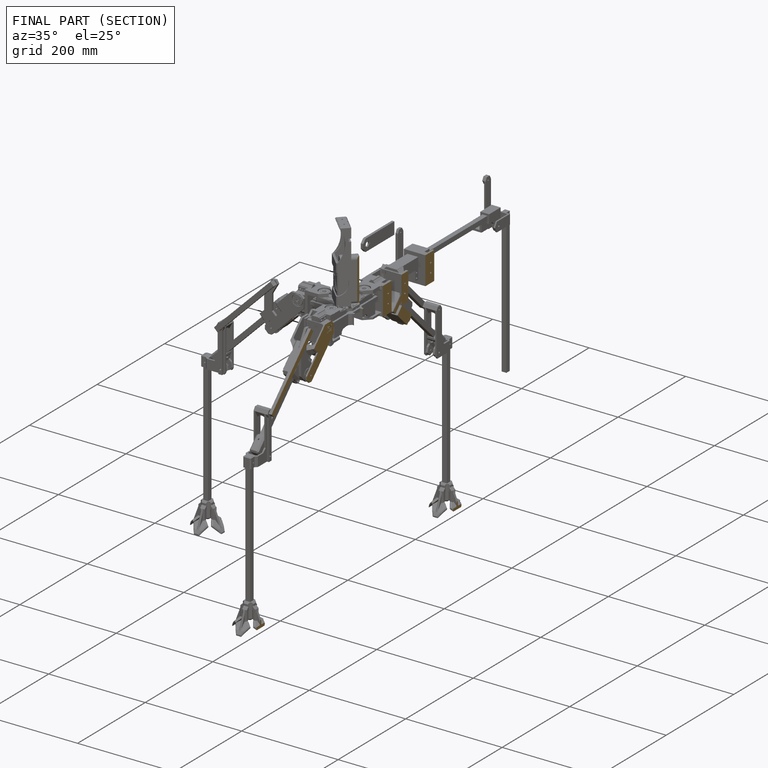
[diagram: finished part — half-section view (interior)]
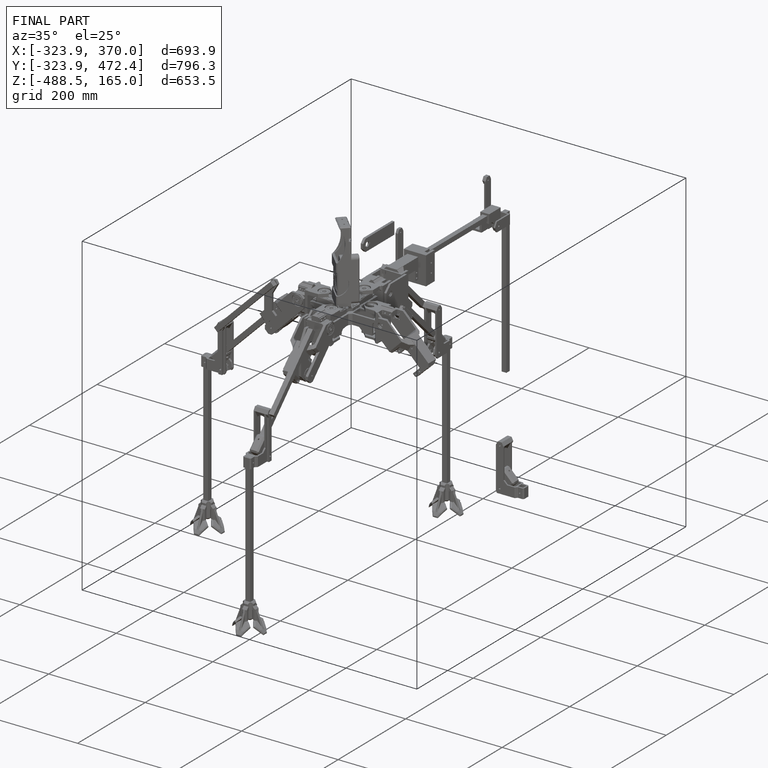
[diagram: finished part — iso view with bounding-box wireframe]
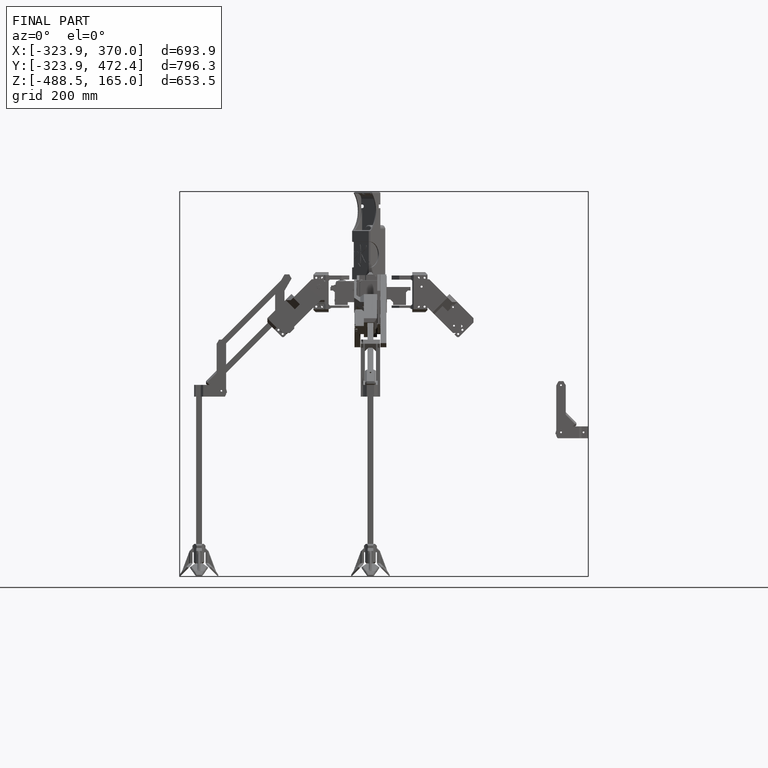
[diagram: finished part — front view with bounding-box wireframe]
